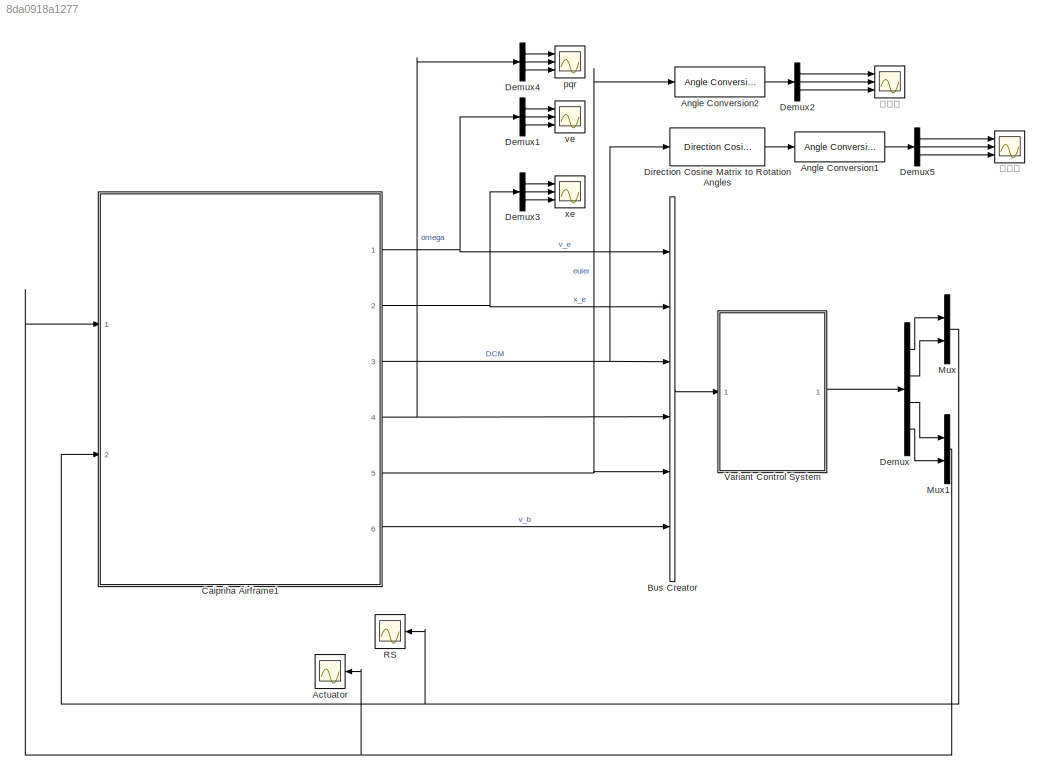
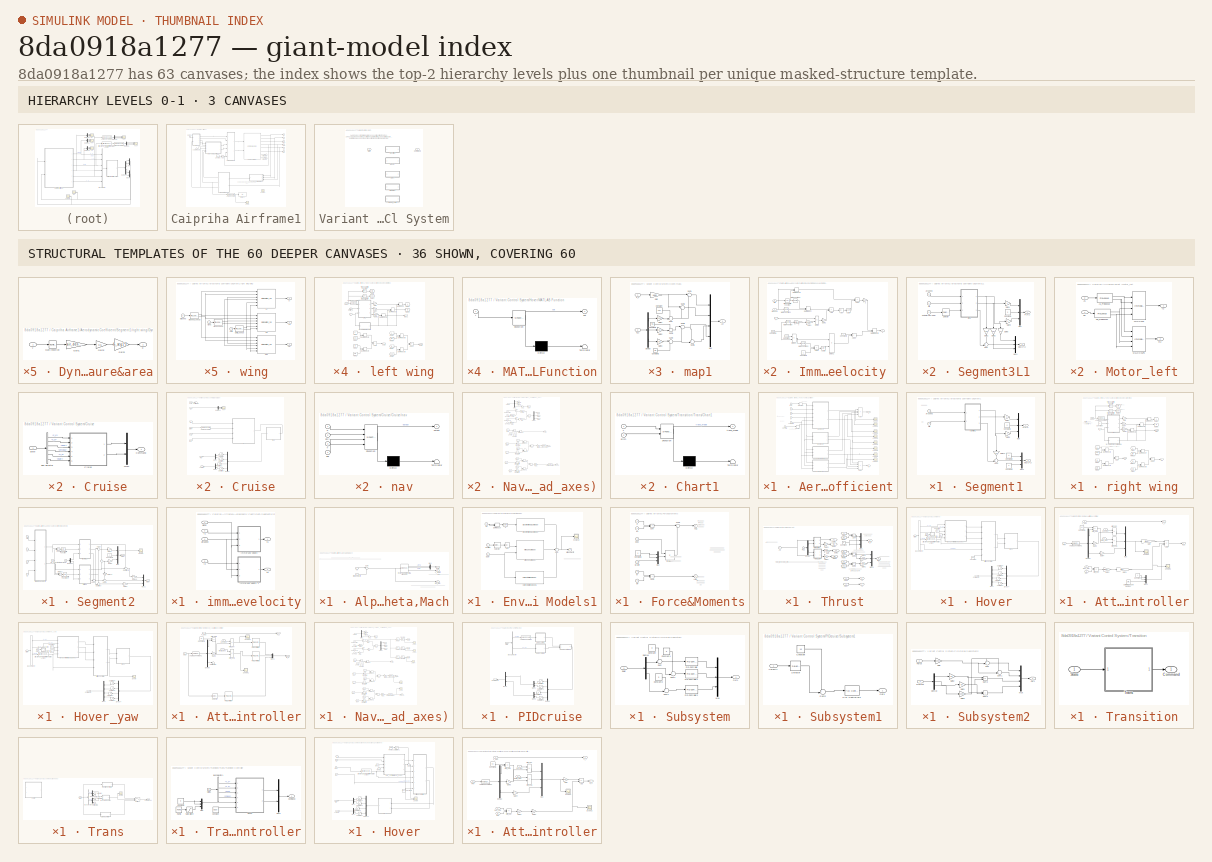
[diagram: thumbnail index - top-2 hierarchy levels (3 canvases) + 36 structural-template representatives of the remaining 60 canvases]
MODEL slx_8da0918a1277
KIND model
CONFIG AbsTol = auto
CONFIG EnableMultiTasking = off
CONFIG FixedStep = 0.002
CONFIG MaxStep = auto
CONFIG MinStep = auto
CONFIG PreLoadFcn = TBS_Cai_simu_init_20170316
CONFIG RelTol = 1e-3
CONFIG SampleTimeConstraint = Unconstrained
CONFIG SolverName = ode5
CONFIG StartTime = 15
CONFIG StopFcn = TBS_SIMULATION_LOG
CONFIG StopTime = 100
BLOCK [Scope] Actuator
  Floating = off
  NumInputPorts = 1
  Ports = [1]
  ScopeSpecificationString = Simulink.scopes.TimeScopeBlockCfg('CurrentConfiguration', extmgr.ConfigurationSet(extmgr.Configuration('Core','General UI',true),extmgr.Configuration('Core','Source UI',true),extmgr.Configuration('Sources','WiredSimulink',true,'DataLoggingVariableName','LOG_ACTUATOR_RL','DataLogging',true,'DataLoggingSaveFormat','StructureWithTime'),extmgr.Configuration('Visuals','Time Domain',true,'SerializedDisp...<+1580ch>
BLOCK [Reference] Angle Conversion1  REF=aerolibconvert2/Angle Conversion
  Ports = [1, 1]
  SourceBlock = aerolibconvert2/Angle Conversion
  SourceProductBaseCode = AE
  SourceType = Angle Conversion
BLOCK [Reference] Angle Conversion2  REF=aerolibconvert2/Angle Conversion
  Ports = [1, 1]
  SourceBlock = aerolibconvert2/Angle Conversion
  SourceProductBaseCode = AE
  SourceType = Angle Conversion
BLOCK [BusCreator] Bus Creator
  DisplayOption = bar
  InheritFromInputs = on
  Inputs = 6
  Ports = [6, 1]
BLOCK [SubSystem] Caipriha Airframe1
  Ports = [2, 6]
  RequestExecContextInheritance = off
BLOCK [Reference] Caipriha Airframe1/6DOF (Quaternion)  REF=shared6dof/6DOF (Euler Angles)
  Ports = [2, 8]
  SourceBlock = shared6dof/6DOF (Euler Angles)
  SourceProductBaseCode = AE,PW,DR,MT,UV,VE
  SourceType = 6DOF EoM (Body Axis)
BLOCK [Inport] Caipriha Airframe1/Actuators (deg)RL
BLOCK [SubSystem] Caipriha Airframe1/Aerodynamic Coefficient
  NameLocation = top
  Ports = [6, 2]
  RequestExecContextInheritance = off
BLOCK [Inport] Caipriha Airframe1/Aerodynamic Coefficient/Actuators
  Port = 3
BLOCK [Sum] Caipriha Airframe1/Aerodynamic Coefficient/Add
  IconShape = rectangular
  Inputs = ++++
  Ports = [4, 1]
BLOCK [Sum] Caipriha Airframe1/Aerodynamic Coefficient/Add1
  IconShape = rectangular
  Inputs = ++++
  Ports = [4, 1]
BLOCK [Outport] Caipriha Airframe1/Aerodynamic Coefficient/F
BLOCK [Inport] Caipriha Airframe1/Aerodynamic Coefficient/Incid
  Port = 5
BLOCK [Outport] Caipriha Airframe1/Aerodynamic Coefficient/M
  Port = 2
BLOCK [Scope] Caipriha Airframe1/Aerodynamic Coefficient/Scope
  Floating = off
  NumInputPorts = 1
  Ports = [1]
  ScopeSpecificationString = Simulink.scopes.TimeScopeBlockCfg('CurrentConfiguration', extmgr.ConfigurationSet(extmgr.Configuration('Core','General UI',true),extmgr.Configuration('Core','Source UI',true),extmgr.Configuration('Sources','WiredSimulink',true,'DataLoggingVariableName','ScopeData1'),extmgr.Configuration('Visuals','Time Domain',true,'SerializedDisplays',{struct('MinYLimReal','-1.16913','MaxYLimReal','0.1299','YLabe...<+1399ch>
BLOCK [Scope] Caipriha Airframe1/Aerodynamic Coefficient/Scope1
  Floating = off
  NumInputPorts = 1
  Ports = [1]
  ScopeSpecificationString = Simulink.scopes.TimeScopeBlockCfg('CurrentConfiguration', extmgr.ConfigurationSet(extmgr.Configuration('Core','General UI',true),extmgr.Configuration('Core','Source UI',true),extmgr.Configuration('Sources','WiredSimulink',true,'DataLoggingVariableName','ScopeData2'),extmgr.Configuration('Visuals','Time Domain',true,'SerializedDisplays',{struct('MinYLimReal','-0.19602','MaxYLimReal','0.16519','YLab...<+1401ch>
BLOCK [Scope] Caipriha Airframe1/Aerodynamic Coefficient/Scope2
  Floating = off
  NumInputPorts = 1
  Ports = [1]
  ScopeSpecificationString = Simulink.scopes.TimeScopeBlockCfg('CurrentConfiguration', extmgr.ConfigurationSet(extmgr.Configuration('Core','General UI',true),extmgr.Configuration('Core','Source UI',true),extmgr.Configuration('Sources','WiredSimulink',true,'DataLoggingVariableName','ScopeData3'),extmgr.Configuration('Visuals','Time Domain',true,'SerializedDisplays',{struct('MinYLimReal','-0.00659','MaxYLimReal','0.00073','YLab...<+1404ch>
BLOCK [Scope] Caipriha Airframe1/Aerodynamic Coefficient/Scope3
  Floating = off
  NumInputPorts = 1
  Ports = [1]
  ScopeSpecificationString = Simulink.scopes.TimeScopeBlockCfg('CurrentConfiguration', extmgr.ConfigurationSet(extmgr.Configuration('Core','General UI',true),extmgr.Configuration('Core','Source UI',true),extmgr.Configuration('Sources','WiredSimulink',true,'DataLoggingVariableName','ScopeData4'),extmgr.Configuration('Visuals','Time Domain',true,'SerializedDisplays',{struct('MinYLimReal','-0.00659','MaxYLimReal','0.00073','YLab...<+1407ch>
BLOCK [Scope] Caipriha Airframe1/Aerodynamic Coefficient/Scope4
  Floating = off
  NumInputPorts = 1
  Ports = [1]
  ScopeSpecificationString = Simulink.scopes.TimeScopeBlockCfg('CurrentConfiguration', extmgr.ConfigurationSet(extmgr.Configuration('Core','General UI',true),extmgr.Configuration('Core','Source UI',true),extmgr.Configuration('Sources','WiredSimulink',true,'DataLoggingVariableName','ScopeData5'),extmgr.Configuration('Visuals','Time Domain',true,'SerializedDisplays',{struct('MinYLimReal','-0.81466','MaxYLimReal','1.23466','YLab...<+1401ch>
BLOCK [Scope] Caipriha Airframe1/Aerodynamic Coefficient/Scope5
  Floating = off
  NumInputPorts = 1
  Ports = [1]
  ScopeSpecificationString = Simulink.scopes.TimeScopeBlockCfg('CurrentConfiguration', extmgr.ConfigurationSet(extmgr.Configuration('Core','General UI',true),extmgr.Configuration('Core','Source UI',true),extmgr.Configuration('Sources','WiredSimulink',true,'DataLoggingVariableName','ScopeData6'),extmgr.Configuration('Visuals','Time Domain',true,'SerializedDisplays',{struct('MinYLimReal','-0.0747','MaxYLimReal','0.07291','YLabe...<+1397ch>
BLOCK [Scope] Caipriha Airframe1/Aerodynamic Coefficient/Scope6
  Floating = off
  NumInputPorts = 1
  Ports = [1]
  ScopeSpecificationString = Simulink.scopes.TimeScopeBlockCfg('CurrentConfiguration', extmgr.ConfigurationSet(extmgr.Configuration('Core','General UI',true),extmgr.Configuration('Core','Source UI',true),extmgr.Configuration('Sources','WiredSimulink',true,'DataLoggingVariableName','ScopeData7'),extmgr.Configuration('Visuals','Time Domain',true,'SerializedDisplays',{struct('MinYLimReal','-1.37266','MaxYLimReal','0.5368','YLabe...<+1402ch>
BLOCK [Scope] Caipriha Airframe1/Aerodynamic Coefficient/Scope7
  Floating = off
  NumInputPorts = 1
  Ports = [1]
  ScopeSpecificationString = Simulink.scopes.TimeScopeBlockCfg('CurrentConfiguration', extmgr.ConfigurationSet(extmgr.Configuration('Core','General UI',true),extmgr.Configuration('Core','Source UI',true),extmgr.Configuration('Sources','WiredSimulink',true,'DataLoggingVariableName','ScopeData8'),extmgr.Configuration('Visuals','Time Domain',true,'SerializedDisplays',{struct('MinYLimReal','-0.83641','MaxYLimReal','1.68084','YLab...<+1407ch>
BLOCK [SubSystem] Caipriha Airframe1/Aerodynamic Coefficient/Segment1
  Ports = [2, 2]
  RequestExecContextInheritance = off
BLOCK [Sum] Caipriha Airframe1/Aerodynamic Coefficient/Segment1/Add5
  Inputs = ++|
  Ports = [2, 1]
BLOCK [Inport] Caipriha Airframe1/Aerodynamic Coefficient/Segment1/Airspeed
  Port = 2
BLOCK [Constant] Caipriha Airframe1/Aerodynamic Coefficient/Segment1/Constant1
  Value = 0
BLOCK [Constant] Caipriha Airframe1/Aerodynamic Coefficient/Segment1/Constant2
  Value = 0
BLOCK [Constant] Caipriha Airframe1/Aerodynamic Coefficient/Segment1/Constant3
  Value = 0
BLOCK [Outport] Caipriha Airframe1/Aerodynamic Coefficient/Segment1/F(3*1)
BLOCK [Gain] Caipriha Airframe1/Aerodynamic Coefficient/Segment1/Gain11
  Gain = L1X
  NameLocation = left
BLOCK [Gain] Caipriha Airframe1/Aerodynamic Coefficient/Segment1/Gain3
  Gain = -1
BLOCK [Gain] Caipriha Airframe1/Aerodynamic Coefficient/Segment1/Gain4
  Gain = -1
BLOCK [Outport] Caipriha Airframe1/Aerodynamic Coefficient/Segment1/Mcg(3*1)
  Port = 2
BLOCK [Mux] Caipriha Airframe1/Aerodynamic Coefficient/Segment1/Mux
  DisplayOption = bar
  Inputs = 3
  Ports = [3, 1]
BLOCK [Mux] Caipriha Airframe1/Aerodynamic Coefficient/Segment1/Mux1
  DisplayOption = bar
  Inputs = 3
  Ports = [3, 1]
BLOCK [Inport] Caipriha Airframe1/Aerodynamic Coefficient/Segment1/alfa
BLOCK [SubSystem] Caipriha Airframe1/Aerodynamic Coefficient/Segment1/right wing
  Ports = [2, 3]
  RequestExecContextInheritance = off
BLOCK [Inport] Caipriha Airframe1/Aerodynamic Coefficient/Segment1/right wing/ALFA 
  Port = 2
BLOCK [Sum] Caipriha Airframe1/Aerodynamic Coefficient/Segment1/right wing/Add
  IconShape = rectangular
  Ports = [2, 1]
BLOCK [Sum] Caipriha Airframe1/Aerodynamic Coefficient/Segment1/right wing/Add2
  IconShape = rectangular
  Inputs = -+
  Ports = [2, 1]
BLOCK [Reference] Caipriha Airframe1/Aerodynamic Coefficient/Segment1/right wing/Angle Conversion  REF=aerolibconvert2/Angle Conversion
  Ports = [1, 1]
  SourceBlock = aerolibconvert2/Angle Conversion
  SourceProductBaseCode = AE
  SourceType = Angle Conversion
BLOCK [Constant] Caipriha Airframe1/Aerodynamic Coefficient/Segment1/right wing/Constant
  Value = 0
BLOCK [DotProduct] Caipriha Airframe1/Aerodynamic Coefficient/Segment1/right wing/Dot Product
  OutDataTypeStr = Inherit: Inherit via internal rule
BLOCK [DotProduct] Caipriha Airframe1/Aerodynamic Coefficient/Segment1/right wing/Dot Product1
  OutDataTypeStr = Inherit: Inherit via internal rule
BLOCK [DotProduct] Caipriha Airframe1/Aerodynamic Coefficient/Segment1/right wing/Dot Product2
  OutDataTypeStr = Inherit: Inherit via internal rule
BLOCK [DotProduct] Caipriha Airframe1/Aerodynamic Coefficient/Segment1/right wing/Dot Product3
  OutDataTypeStr = Inherit: Inherit via internal rule
BLOCK [DotProduct] Caipriha Airframe1/Aerodynamic Coefficient/Segment1/right wing/Dot Product4
  OutDataTypeStr = Inherit: Inherit via internal rule
BLOCK [DotProduct] Caipriha Airframe1/Aerodynamic Coefficient/Segment1/right wing/Dot Product7
  OutDataTypeStr = Inherit: Inherit via internal rule
BLOCK [DotProduct] Caipriha Airframe1/Aerodynamic Coefficient/Segment1/right wing/Dot Product8
  OutDataTypeStr = Inherit: Inherit via internal rule
BLOCK [SubSystem] Caipriha Airframe1/Aerodynamic Coefficient/Segment1/right wing/DynamicPressure&area
  Ports = [1, 1]
  RequestExecContextInheritance = off
BLOCK [Gain] Caipriha Airframe1/Aerodynamic Coefficient/Segment1/right wing/DynamicPressure&area/Gain1
  Gain = air_density
BLOCK [Gain] Caipriha Airframe1/Aerodynamic Coefficient/Segment1/right wing/DynamicPressure&area/Gain2
  Gain = 0.5
BLOCK [Gain] Caipriha Airframe1/Aerodynamic Coefficient/Segment1/right wing/DynamicPressure&area/Gain3
  Gain = S_seg1*2
BLOCK [Math] Caipriha Airframe1/Aerodynamic Coefficient/Segment1/right wing/DynamicPressure&area/Math Function
  Operator = magnitude^2
  Ports = [1, 1]
  SignedPower = on
BLOCK [Outport] Caipriha Airframe1/Aerodynamic Coefficient/Segment1/right wing/DynamicPressure&area/p
BLOCK [Inport] Caipriha Airframe1/Aerodynamic Coefficient/Segment1/right wing/DynamicPressure&area/v
BLOCK [From] Caipriha Airframe1/Aerodynamic Coefficient/Segment1/right wing/From
  GotoTag = L
BLOCK [From] Caipriha Airframe1/Aerodynamic Coefficient/Segment1/right wing/From1
  GotoTag = sin
BLOCK [From] Caipriha Airframe1/Aerodynamic Coefficient/Segment1/right wing/From10
  GotoTag = sin
BLOCK [From] Caipriha Airframe1/Aerodynamic Coefficient/Segment1/right wing/From11
  GotoTag = D
BLOCK [From] Caipriha Airframe1/Aerodynamic Coefficient/Segment1/right wing/From2
  GotoTag = cos
BLOCK [From] Caipriha Airframe1/Aerodynamic Coefficient/Segment1/right wing/From3
  GotoTag = D
BLOCK [From] Caipriha Airframe1/Aerodynamic Coefficient/Segment1/right wing/From8
  GotoTag = L
BLOCK [From] Caipriha Airframe1/Aerodynamic Coefficient/Segment1/right wing/From9
  GotoTag = cos
BLOCK [Outport] Caipriha Airframe1/Aerodynamic Coefficient/Segment1/right wing/Fx
  Port = 2
BLOCK [Outport] Caipriha Airframe1/Aerodynamic Coefficient/Segment1/right wing/Fz
BLOCK [Gain] Caipriha Airframe1/Aerodynamic Coefficient/Segment1/right wing/Gain
BLOCK [Gain] Caipriha Airframe1/Aerodynamic Coefficient/Segment1/right wing/Gain1
  Gain = MAC1
BLOCK [Gain] Caipriha Airframe1/Aerodynamic Coefficient/Segment1/right wing/Gain4
BLOCK [Goto] Caipriha Airframe1/Aerodynamic Coefficient/Segment1/right wing/Goto
  GotoTag = sin
BLOCK [Goto] Caipriha Airframe1/Aerodynamic Coefficient/Segment1/right wing/Goto1
  GotoTag = cos
BLOCK [Goto] Caipriha Airframe1/Aerodynamic Coefficient/Segment1/right wing/Goto4
  GotoTag = L
BLOCK [Goto] Caipriha Airframe1/Aerodynamic Coefficient/Segment1/right wing/Goto5
  GotoTag = D
BLOCK [Outport] Caipriha Airframe1/Aerodynamic Coefficient/Segment1/right wing/Mac
  Port = 3
BLOCK [Trigonometry] Caipriha Airframe1/Aerodynamic Coefficient/Segment1/right wing/Trigonometric Function
  Ports = [1, 1]
BLOCK [Trigonometry] Caipriha Airframe1/Aerodynamic Coefficient/Segment1/right wing/Trigonometric Function1
  Operator = cos
  Ports = [1, 1]
BLOCK [Inport] Caipriha Airframe1/Aerodynamic Coefficient/Segment1/right wing/v
BLOCK [SubSystem] Caipriha Airframe1/Aerodynamic Coefficient/Segment1/right wing/wing
  Ports = [3, 3]
  RequestExecContextInheritance = off
BLOCK [PreLookup] Caipriha Airframe1/Aerodynamic Coefficient/Segment1/right wing/wing/AirspeedLookup
  BeginIndexSearchUsingPreviousIndexResult = on
  BreakpointsData = as
  ExtrapMethod = Linear
  InputPortMap = u0
  Ports = [1, 2]
BLOCK [Inport] Caipriha Airframe1/Aerodynamic Coefficient/Segment1/right wing/wing/Alpha
BLOCK [PreLookup] Caipriha Airframe1/Aerodynamic Coefficient/Segment1/right wing/wing/AlphaLookup
  BeginIndexSearchUsingPreviousIndexResult = on
  BreakpointsData = alpha_vec_0
  ExtrapMethod = Linear
  InputPortMap = u0
  Ports = [1, 2]
BLOCK [Interpolation_n-D] Caipriha Airframe1/Aerodynamic Coefficient/Segment1/right wing/wing/CD
  DiagnosticForOutOfRangeInput = Warning
  ExtrapMethod = Clip
  InputPortMap = u0,u1,u2,u3,u4,u5
  IntermediateResultsDataTypeStr = Inherit: Inherit via internal rule
  InternalRulePriority = Speed
  NumberOfTableDimensions = 3
  Ports = [6, 1]
  Table = ORIGIN_CD
BLOCK [Interpolation_n-D] Caipriha Airframe1/Aerodynamic Coefficient/Segment1/right wing/wing/CD1
  DiagnosticForOutOfRangeInput = Warning
  ExtrapMethod = Clip
  InputPortMap = u0,u1,u2,u3,u4,u5
  IntermediateResultsDataTypeStr = Inherit: Inherit via internal rule
  InternalRulePriority = Speed
  NumberOfTableDimensions = 3
  Ports = [6, 1]
  Table = ORIGIN_CM
BLOCK [Interpolation_n-D] Caipriha Airframe1/Aerodynamic Coefficient/Segment1/right wing/wing/CL
  DiagnosticForOutOfRangeInput = Warning
  ExtrapMethod = Clip
  InputPortMap = u0,u1,u2,u3,u4,u5
  IntermediateResultsDataTypeStr = Inherit: Inherit via internal rule
  InternalRulePriority = Speed
  NumberOfTableDimensions = 3
  Ports = [6, 1]
  Table = ORIGIN_CL
BLOCK [Inport] Caipriha Airframe1/Aerodynamic Coefficient/Segment1/right wing/wing/Delta
  Port = 2
BLOCK [PreLookup] Caipriha Airframe1/Aerodynamic Coefficient/Segment1/right wing/wing/DeltaLookup
  BeginIndexSearchUsingPreviousIndexResult = on
  BreakpointsData = ORIGIN_DELTA
  ExtrapMethod = Linear
  InputPortMap = u0
  Ports = [1, 2]
BLOCK [Inport] Caipriha Airframe1/Aerodynamic Coefficient/Segment1/right wing/wing/airspeed
  Port = 3
BLOCK [Outport] Caipriha Airframe1/Aerodynamic Coefficient/Segment1/right wing/wing/cd
  Port = 2
BLOCK [Outport] Caipriha Airframe1/Aerodynamic Coefficient/Segment1/right wing/wing/cl
BLOCK [Outport] Caipriha Airframe1/Aerodynamic Coefficient/Segment1/right wing/wing/cm
  Port = 3
BLOCK [SubSystem] Caipriha Airframe1/Aerodynamic Coefficient/Segment2
  Ports = [6, 2]
  RequestExecContextInheritance = off
BLOCK [Sum] Caipriha Airframe1/Aerodynamic Coefficient/Segment2/Add1
  Inputs = ++|
  Ports = [2, 1]
BLOCK [Sum] Caipriha Airframe1/Aerodynamic Coefficient/Segment2/Add3
  Inputs = |++
  Ports = [2, 1]
BLOCK [Sum] Caipriha Airframe1/Aerodynamic Coefficient/Segment2/Add5
  Inputs = ++|
  Ports = [2, 1]
BLOCK [Constant] Caipriha Airframe1/Aerodynamic Coefficient/Segment2/Constant1
  Value = 0
BLOCK [Demux] Caipriha Airframe1/Aerodynamic Coefficient/Segment2/Demux1
  Outputs = 2
  Ports = [1, 2]
BLOCK [Product] Caipriha Airframe1/Aerodynamic Coefficient/Segment2/Divide
  Inputs = /*
  Ports = [2, 1]
BLOCK [Product] Caipriha Airframe1/Aerodynamic Coefficient/Segment2/Divide1
  Inputs = /*
  Ports = [2, 1]
BLOCK [Outport] Caipriha Airframe1/Aerodynamic Coefficient/Segment2/F(3*1)
BLOCK [Gain] Caipriha Airframe1/Aerodynamic Coefficient/Segment2/Gain11
  Gain = L2X
  NameLocation = left
BLOCK [Gain] Caipriha Airframe1/Aerodynamic Coefficient/Segment2/Gain16
  Gain = L2Y
BLOCK [Gain] Caipriha Airframe1/Aerodynamic Coefficient/Segment2/Gain3
  Gain = -1
BLOCK [Gain] Caipriha Airframe1/Aerodynamic Coefficient/Segment2/Gain4
  Gain = -1
BLOCK [Gain] Caipriha Airframe1/Aerodynamic Coefficient/Segment2/Gain9
  Gain = L2Y
BLOCK [Sum] Caipriha Airframe1/Aerodynamic Coefficient/Segment2/L
  Ports = [2, 1]
BLOCK [Outport] Caipriha Airframe1/Aerodynamic Coefficient/Segment2/M(3*1)
  Port = 2
BLOCK [Mux] Caipriha Airframe1/Aerodynamic Coefficient/Segment2/Mux
  DisplayOption = bar
  Inputs = 3
  Ports = [3, 1]
BLOCK [Mux] Caipriha Airframe1/Aerodynamic Coefficient/Segment2/Mux1
  DisplayOption = bar
  Inputs = 3
  Ports = [3, 1]
BLOCK [Scope] Caipriha Airframe1/Aerodynamic Coefficient/Segment2/Scope
  Floating = off
  NumInputPorts = 1
  Ports = [1]
  ScopeSpecificationString = Simulink.scopes.TimeScopeBlockCfg('CurrentConfiguration', extmgr.ConfigurationSet(extmgr.Configuration('Core','General UI',true),extmgr.Configuration('Core','Source UI',true),extmgr.Configuration('Sources','WiredSimulink',true,'DataLoggingVariableName','ScopeData1'),extmgr.Configuration('Visuals','Time Domain',true,'SerializedDisplays',{struct('MinYLimReal','-6.7547','MaxYLimReal','8.02397','YLabe...<+1380ch>
BLOCK [Sum] Caipriha Airframe1/Aerodynamic Coefficient/Segment2/Subtract
  Inputs = +-|
  Ports = [2, 1]
BLOCK [Sum] Caipriha Airframe1/Aerodynamic Coefficient/Segment2/Subtract1
  Inputs = -+|
  Ports = [2, 1]
BLOCK [Inport] Caipriha Airframe1/Aerodynamic Coefficient/Segment2/T1 
  Port = 2
BLOCK [Inport] Caipriha Airframe1/Aerodynamic Coefficient/Segment2/T2
  Port = 3
BLOCK [Trigonometry] Caipriha Airframe1/Aerodynamic Coefficient/Segment2/Trigonometric Function
  Operator = atan
  OutputSignalType = real
  Ports = [1, 1]
BLOCK [Trigonometry] Caipriha Airframe1/Aerodynamic Coefficient/Segment2/Trigonometric Function1
  Operator = atan
  Ports = [1, 1]
BLOCK [Inport] Caipriha Airframe1/Aerodynamic Coefficient/Segment2/V
  Port = 4
BLOCK [Inport] Caipriha Airframe1/Aerodynamic Coefficient/Segment2/Vb_z
  Port = 6
BLOCK [Inport] Caipriha Airframe1/Aerodynamic Coefficient/Segment2/actuatorsRL(deg) 
  Port = 5
BLOCK [Inport] Caipriha Airframe1/Aerodynamic Coefficient/Segment2/alfa
BLOCK [SubSystem] Caipriha Airframe1/Aerodynamic Coefficient/Segment2/immersed velocity
  Ports = [4, 2]
  RequestExecContextInheritance = off
BLOCK [SubSystem] Caipriha Airframe1/Aerodynamic Coefficient/Segment2/immersed velocity/Immersed velocity 
  Ports = [3, 1]
  RequestExecContextInheritance = off
BLOCK [Gain] Caipriha Airframe1/Aerodynamic Coefficient/Segment2/immersed velocity/Immersed velocity /A
  Gain = 0.5*pi
BLOCK [Abs] Caipriha Airframe1/Aerodynamic Coefficient/Segment2/immersed velocity/Immersed velocity /Abs
  SaturateOnIntegerOverflow = off
BLOCK [Sum] Caipriha Airframe1/Aerodynamic Coefficient/Segment2/immersed velocity/Immersed velocity /Add
  IconShape = rectangular
  Ports = [2, 1]
BLOCK [Sum] Caipriha Airframe1/Aerodynamic Coefficient/Segment2/immersed velocity/Immersed velocity /Add1
  IconShape = rectangular
  Ports = [2, 1]
BLOCK [Sum] Caipriha Airframe1/Aerodynamic Coefficient/Segment2/immersed velocity/Immersed velocity /Add2
  IconShape = rectangular
  Ports = [2, 1]
BLOCK [Sum] Caipriha Airframe1/Aerodynamic Coefficient/Segment2/immersed velocity/Immersed velocity /Add3
  IconShape = rectangular
  Ports = [2, 1]
BLOCK [Constant] Caipriha Airframe1/Aerodynamic Coefficient/Segment2/immersed velocity/Immersed velocity /Constant
  Value = 0.166
BLOCK [Constant] Caipriha Airframe1/Aerodynamic Coefficient/Segment2/immersed velocity/Immersed velocity /Constant1
  Value = 0.2
BLOCK [Constant] Caipriha Airframe1/Aerodynamic Coefficient/Segment2/immersed velocity/Immersed velocity /Constant2
BLOCK [Constant] Caipriha Airframe1/Aerodynamic Coefficient/Segment2/immersed velocity/Immersed velocity /Constant3
BLOCK [Product] Caipriha Airframe1/Aerodynamic Coefficient/Segment2/immersed velocity/Immersed velocity /Divide
  Inputs = */
  Ports = [2, 1]
BLOCK [Product] Caipriha Airframe1/Aerodynamic Coefficient/Segment2/immersed velocity/Immersed velocity /Divide1
  Inputs = */
  Ports = [2, 1]
BLOCK [Product] Caipriha Airframe1/Aerodynamic Coefficient/Segment2/immersed velocity/Immersed velocity /Divide2
  Inputs = */
  Ports = [2, 1]
BLOCK [DotProduct] Caipriha Airframe1/Aerodynamic Coefficient/Segment2/immersed velocity/Immersed velocity /Dot Product
  OutDataTypeStr = Inherit: Inherit via internal rule
BLOCK [DotProduct] Caipriha Airframe1/Aerodynamic Coefficient/Segment2/immersed velocity/Immersed velocity /Dot Product1
  OutDataTypeStr = Inherit: Inherit via internal rule
BLOCK [DotProduct] Caipriha Airframe1/Aerodynamic Coefficient/Segment2/immersed velocity/Immersed velocity /Dot Product2
  OutDataTypeStr = Inherit: Inherit via internal rule
BLOCK [Gain] Caipriha Airframe1/Aerodynamic Coefficient/Segment2/immersed velocity/Immersed velocity /Gain1
  Gain = 1.225
BLOCK [Gain] Caipriha Airframe1/Aerodynamic Coefficient/Segment2/immersed velocity/Immersed velocity /Gain2
  Gain = 2
BLOCK [Math] Caipriha Airframe1/Aerodynamic Coefficient/Segment2/immersed velocity/Immersed velocity /Math Function
  Operator = magnitude^2
  Ports = [1, 1]
  SignedPower = on
BLOCK [Math] Caipriha Airframe1/Aerodynamic Coefficient/Segment2/immersed velocity/Immersed velocity /Math Function1
  Operator = magnitude^2
  Ports = [1, 1]
  SignedPower = on
BLOCK [Math] Caipriha Airframe1/Aerodynamic Coefficient/Segment2/immersed velocity/Immersed velocity /Math Function2
  Operator = magnitude^2
  Ports = [1, 1]
  SignedPower = on
BLOCK [Math] Caipriha Airframe1/Aerodynamic Coefficient/Segment2/immersed velocity/Immersed velocity /Math Function3
  Operator = magnitude^2
  Ports = [1, 1]
  SignedPower = on
BLOCK [Inport] Caipriha Airframe1/Aerodynamic Coefficient/Segment2/immersed velocity/Immersed velocity /T
BLOCK [Trigonometry] Caipriha Airframe1/Aerodynamic Coefficient/Segment2/immersed velocity/Immersed velocity /Trigonometric Function
  Operator = cos
  Ports = [1, 1]
BLOCK [Inport] Caipriha Airframe1/Aerodynamic Coefficient/Segment2/immersed velocity/Immersed velocity /airspeed
  Port = 2
BLOCK [Inport] Caipriha Airframe1/Aerodynamic Coefficient/Segment2/immersed velocity/Immersed velocity /alfa
  Port = 3
BLOCK [Gain] Caipriha Airframe1/Aerodynamic Coefficient/Segment2/immersed velocity/Immersed velocity /u
  Gain = 0.5
BLOCK [Sqrt] Caipriha Airframe1/Aerodynamic Coefficient/Segment2/immersed velocity/Immersed velocity /u_far
BLOCK [Sqrt] Caipriha Airframe1/Aerodynamic Coefficient/Segment2/immersed velocity/Immersed velocity /u_far1
BLOCK [Outport] Caipriha Airframe1/Aerodynamic Coefficient/Segment2/immersed velocity/Immersed velocity /v
BLOCK [SubSystem] Caipriha Airframe1/Aerodynamic Coefficient/Segment2/immersed velocity/Immersed velocity 1
  Ports = [3, 1]
  RequestExecContextInheritance = off
BLOCK [Gain] Caipriha Airframe1/Aerodynamic Coefficient/Segment2/immersed velocity/Immersed velocity 1/A
  Gain = 0.5*pi
BLOCK [Abs] Caipriha Airframe1/Aerodynamic Coefficient/Segment2/immersed velocity/Immersed velocity 1/Abs
  SaturateOnIntegerOverflow = off
BLOCK [Sum] Caipriha Airframe1/Aerodynamic Coefficient/Segment2/immersed velocity/Immersed velocity 1/Add
  IconShape = rectangular
  Ports = [2, 1]
BLOCK [Sum] Caipriha Airframe1/Aerodynamic Coefficient/Segment2/immersed velocity/Immersed velocity 1/Add1
  IconShape = rectangular
  Ports = [2, 1]
BLOCK [Sum] Caipriha Airframe1/Aerodynamic Coefficient/Segment2/immersed velocity/Immersed velocity 1/Add2
  IconShape = rectangular
  Ports = [2, 1]
BLOCK [Sum] Caipriha Airframe1/Aerodynamic Coefficient/Segment2/immersed velocity/Immersed velocity 1/Add3
  IconShape = rectangular
  Ports = [2, 1]
BLOCK [Constant] Caipriha Airframe1/Aerodynamic Coefficient/Segment2/immersed velocity/Immersed velocity 1/Constant
  Value = 0.166
BLOCK [Constant] Caipriha Airframe1/Aerodynamic Coefficient/Segment2/immersed velocity/Immersed velocity 1/Constant1
  Value = 0.2
BLOCK [Constant] Caipriha Airframe1/Aerodynamic Coefficient/Segment2/immersed velocity/Immersed velocity 1/Constant2
BLOCK [Constant] Caipriha Airframe1/Aerodynamic Coefficient/Segment2/immersed velocity/Immersed velocity 1/Constant3
BLOCK [Product] Caipriha Airframe1/Aerodynamic Coefficient/Segment2/immersed velocity/Immersed velocity 1/Divide
  Inputs = */
  Ports = [2, 1]
BLOCK [Product] Caipriha Airframe1/Aerodynamic Coefficient/Segment2/immersed velocity/Immersed velocity 1/Divide1
  Inputs = */
  Ports = [2, 1]
BLOCK [Product] Caipriha Airframe1/Aerodynamic Coefficient/Segment2/immersed velocity/Immersed velocity 1/Divide2
  Inputs = */
  Ports = [2, 1]
BLOCK [DotProduct] Caipriha Airframe1/Aerodynamic Coefficient/Segment2/immersed velocity/Immersed velocity 1/Dot Product
  OutDataTypeStr = Inherit: Inherit via internal rule
BLOCK [DotProduct] Caipriha Airframe1/Aerodynamic Coefficient/Segment2/immersed velocity/Immersed velocity 1/Dot Product1
  OutDataTypeStr = Inherit: Inherit via internal rule
BLOCK [DotProduct] Caipriha Airframe1/Aerodynamic Coefficient/Segment2/immersed velocity/Immersed velocity 1/Dot Product2
  OutDataTypeStr = Inherit: Inherit via internal rule
BLOCK [Gain] Caipriha Airframe1/Aerodynamic Coefficient/Segment2/immersed velocity/Immersed velocity 1/Gain1
  Gain = 1.225
BLOCK [Gain] Caipriha Airframe1/Aerodynamic Coefficient/Segment2/immersed velocity/Immersed velocity 1/Gain2
  Gain = 2
BLOCK [Math] Caipriha Airframe1/Aerodynamic Coefficient/Segment2/immersed velocity/Immersed velocity 1/Math Function
  Operator = magnitude^2
  Ports = [1, 1]
  SignedPower = on
BLOCK [Math] Caipriha Airframe1/Aerodynamic Coefficient/Segment2/immersed velocity/Immersed velocity 1/Math Function1
  Operator = magnitude^2
  Ports = [1, 1]
  SignedPower = on
BLOCK [Math] Caipriha Airframe1/Aerodynamic Coefficient/Segment2/immersed velocity/Immersed velocity 1/Math Function2
  Operator = magnitude^2
  Ports = [1, 1]
  SignedPower = on
BLOCK [Math] Caipriha Airframe1/Aerodynamic Coefficient/Segment2/immersed velocity/Immersed velocity 1/Math Function3
  Operator = magnitude^2
  Ports = [1, 1]
  SignedPower = on
BLOCK [Inport] Caipriha Airframe1/Aerodynamic Coefficient/Segment2/immersed velocity/Immersed velocity 1/T
BLOCK [Trigonometry] Caipriha Airframe1/Aerodynamic Coefficient/Segment2/immersed velocity/Immersed velocity 1/Trigonometric Function
  Operator = cos
  Ports = [1, 1]
BLOCK [Inport] Caipriha Airframe1/Aerodynamic Coefficient/Segment2/immersed velocity/Immersed velocity 1/airspeed
  Port = 2
BLOCK [Inport] Caipriha Airframe1/Aerodynamic Coefficient/Segment2/immersed velocity/Immersed velocity 1/alfa
  Port = 3
BLOCK [Gain] Caipriha Airframe1/Aerodynamic Coefficient/Segment2/immersed velocity/Immersed velocity 1/u
  Gain = 0.5
BLOCK [Sqrt] Caipriha Airframe1/Aerodynamic Coefficient/Segment2/immersed velocity/Immersed velocity 1/u_far
BLOCK [Sqrt] Caipriha Airframe1/Aerodynamic Coefficient/Segment2/immersed velocity/Immersed velocity 1/u_far1
BLOCK [Outport] Caipriha Airframe1/Aerodynamic Coefficient/Segment2/immersed velocity/Immersed velocity 1/v
BLOCK [Inport] Caipriha Airframe1/Aerodynamic Coefficient/Segment2/immersed velocity/airspeed
  Port = 4
BLOCK [Inport] Caipriha Airframe1/Aerodynamic Coefficient/Segment2/immersed velocity/alpha
BLOCK [Inport] Caipriha Airframe1/Aerodynamic Coefficient/Segment2/immersed velocity/t1 
  Port = 2
BLOCK [Inport] Caipriha Airframe1/Aerodynamic Coefficient/Segment2/immersed velocity/t2
  Port = 3
BLOCK [Outport] Caipriha Airframe1/Aerodynamic Coefficient/Segment2/immersed velocity/v1
BLOCK [Outport] Caipriha Airframe1/Aerodynamic Coefficient/Segment2/immersed velocity/v2
  Port = 2
BLOCK [SubSystem] Caipriha Airframe1/Aerodynamic Coefficient/Segment2/left wing
  Ports = [3, 3]
  RequestExecContextInheritance = off
BLOCK [Inport] Caipriha Airframe1/Aerodynamic Coefficient/Segment2/left wing/ALFA 
  Port = 2
BLOCK [Sum] Caipriha Airframe1/Aerodynamic Coefficient/Segment2/left wing/Add
  IconShape = rectangular
  Ports = [2, 1]
BLOCK [Sum] Caipriha Airframe1/Aerodynamic Coefficient/Segment2/left wing/Add1
  IconShape = rectangular
  Inputs = -+
  Ports = [2, 1]
BLOCK [Reference] Caipriha Airframe1/Aerodynamic Coefficient/Segment2/left wing/Angle Conversion1  REF=aerolibconvert2/Angle Conversion
  Ports = [1, 1]
  SourceBlock = aerolibconvert2/Angle Conversion
  SourceProductBaseCode = AE
  SourceType = Angle Conversion
BLOCK [DotProduct] Caipriha Airframe1/Aerodynamic Coefficient/Segment2/left wing/Dot Product
  OutDataTypeStr = Inherit: Inherit via internal rule
BLOCK [DotProduct] Caipriha Airframe1/Aerodynamic Coefficient/Segment2/left wing/Dot Product1
  OutDataTypeStr = Inherit: Inherit via internal rule
BLOCK [DotProduct] Caipriha Airframe1/Aerodynamic Coefficient/Segment2/left wing/Dot Product2
  OutDataTypeStr = Inherit: Inherit via internal rule
BLOCK [DotProduct] Caipriha Airframe1/Aerodynamic Coefficient/Segment2/left wing/Dot Product3
  OutDataTypeStr = Inherit: Inherit via internal rule
BLOCK [DotProduct] Caipriha Airframe1/Aerodynamic Coefficient/Segment2/left wing/Dot Product4
  OutDataTypeStr = Inherit: Inherit via internal rule
BLOCK [DotProduct] Caipriha Airframe1/Aerodynamic Coefficient/Segment2/left wing/Dot Product5
  OutDataTypeStr = Inherit: Inherit via internal rule
BLOCK [DotProduct] Caipriha Airframe1/Aerodynamic Coefficient/Segment2/left wing/Dot Product6
  OutDataTypeStr = Inherit: Inherit via internal rule
BLOCK [SubSystem] Caipriha Airframe1/Aerodynamic Coefficient/Segment2/left wing/DynamicPressure
  Ports = [1, 1]
  RequestExecContextInheritance = off
BLOCK [Gain] Caipriha Airframe1/Aerodynamic Coefficient/Segment2/left wing/DynamicPressure/Gain1
  Gain = air_density
BLOCK [Gain] Caipriha Airframe1/Aerodynamic Coefficient/Segment2/left wing/DynamicPressure/Gain2
  Gain = 0.5
BLOCK [Gain] Caipriha Airframe1/Aerodynamic Coefficient/Segment2/left wing/DynamicPressure/Gain3
  Gain = S_seg2
BLOCK [Math] Caipriha Airframe1/Aerodynamic Coefficient/Segment2/left wing/DynamicPressure/Math Function
  Operator = magnitude^2
  Ports = [1, 1]
  SignedPower = on
BLOCK [Outport] Caipriha Airframe1/Aerodynamic Coefficient/Segment2/left wing/DynamicPressure/p
BLOCK [Inport] Caipriha Airframe1/Aerodynamic Coefficient/Segment2/left wing/DynamicPressure/v
BLOCK [From] Caipriha Airframe1/Aerodynamic Coefficient/Segment2/left wing/From
  GotoTag = L
BLOCK [From] Caipriha Airframe1/Aerodynamic Coefficient/Segment2/left wing/From1
  GotoTag = sin
BLOCK [From] Caipriha Airframe1/Aerodynamic Coefficient/Segment2/left wing/From2
  GotoTag = cos
BLOCK [From] Caipriha Airframe1/Aerodynamic Coefficient/Segment2/left wing/From3
  GotoTag = D
BLOCK [From] Caipriha Airframe1/Aerodynamic Coefficient/Segment2/left wing/From4
  GotoTag = L
BLOCK [From] Caipriha Airframe1/Aerodynamic Coefficient/Segment2/left wing/From5
  GotoTag = cos
BLOCK [From] Caipriha Airframe1/Aerodynamic Coefficient/Segment2/left wing/From6
  GotoTag = sin
BLOCK [From] Caipriha Airframe1/Aerodynamic Coefficient/Segment2/left wing/From7
  GotoTag = D
BLOCK [Outport] Caipriha Airframe1/Aerodynamic Coefficient/Segment2/left wing/FxR
  Port = 2
BLOCK [Outport] Caipriha Airframe1/Aerodynamic Coefficient/Segment2/left wing/FzR
BLOCK [Gain] Caipriha Airframe1/Aerodynamic Coefficient/Segment2/left wing/Gain
BLOCK [Gain] Caipriha Airframe1/Aerodynamic Coefficient/Segment2/left wing/Gain1
  Gain = MAC2
BLOCK [Gain] Caipriha Airframe1/Aerodynamic Coefficient/Segment2/left wing/Gain4
  Gain = 1.3
BLOCK [Goto] Caipriha Airframe1/Aerodynamic Coefficient/Segment2/left wing/Goto
  GotoTag = sin
BLOCK [Goto] Caipriha Airframe1/Aerodynamic Coefficient/Segment2/left wing/Goto1
  GotoTag = cos
BLOCK [Goto] Caipriha Airframe1/Aerodynamic Coefficient/Segment2/left wing/Goto2
  GotoTag = L
BLOCK [Goto] Caipriha Airframe1/Aerodynamic Coefficient/Segment2/left wing/Goto3
  GotoTag = D
BLOCK [Outport] Caipriha Airframe1/Aerodynamic Coefficient/Segment2/left wing/MacL
  Port = 3
BLOCK [Trigonometry] Caipriha Airframe1/Aerodynamic Coefficient/Segment2/left wing/Trigonometric Function
  Ports = [1, 1]
BLOCK [Trigonometry] Caipriha Airframe1/Aerodynamic Coefficient/Segment2/left wing/Trigonometric Function1
  Operator = cos
  Ports = [1, 1]
BLOCK [Inport] Caipriha Airframe1/Aerodynamic Coefficient/Segment2/left wing/delta_L
  Port = 3
BLOCK [Inport] Caipriha Airframe1/Aerodynamic Coefficient/Segment2/left wing/v
BLOCK [SubSystem] Caipriha Airframe1/Aerodynamic Coefficient/Segment2/left wing/wing
  Ports = [3, 3]
  RequestExecContextInheritance = off
BLOCK [PreLookup] Caipriha Airframe1/Aerodynamic Coefficient/Segment2/left wing/wing/AirspeedLookup
  BeginIndexSearchUsingPreviousIndexResult = on
  BreakpointsData = as
  ExtrapMethod = Linear
  InputPortMap = u0
  Ports = [1, 2]
BLOCK [Inport] Caipriha Airframe1/Aerodynamic Coefficient/Segment2/left wing/wing/Alpha
BLOCK [PreLookup] Caipriha Airframe1/Aerodynamic Coefficient/Segment2/left wing/wing/AlphaLookup
  BeginIndexSearchUsingPreviousIndexResult = on
  BreakpointsData = alpha_vec_0
  ExtrapMethod = Linear
  InputPortMap = u0
  Ports = [1, 2]
BLOCK [Interpolation_n-D] Caipriha Airframe1/Aerodynamic Coefficient/Segment2/left wing/wing/CD
  DiagnosticForOutOfRangeInput = Warning
  ExtrapMethod = Clip
  InputPortMap = u0,u1,u2,u3,u4,u5
  IntermediateResultsDataTypeStr = Inherit: Inherit via internal rule
  InternalRulePriority = Speed
  NumberOfTableDimensions = 3
  Ports = [6, 1]
  Table = ORIGIN_CD
BLOCK [Interpolation_n-D] Caipriha Airframe1/Aerodynamic Coefficient/Segment2/left wing/wing/CD1
  DiagnosticForOutOfRangeInput = Warning
  ExtrapMethod = Clip
  InputPortMap = u0,u1,u2,u3,u4,u5
  IntermediateResultsDataTypeStr = Inherit: Inherit via internal rule
  InternalRulePriority = Speed
  NumberOfTableDimensions = 3
  Ports = [6, 1]
  Table = ORIGIN_CM
BLOCK [Interpolation_n-D] Caipriha Airframe1/Aerodynamic Coefficient/Segment2/left wing/wing/CL
  DiagnosticForOutOfRangeInput = Warning
  ExtrapMethod = Clip
  InputPortMap = u0,u1,u2,u3,u4,u5
  IntermediateResultsDataTypeStr = Inherit: Inherit via internal rule
  InternalRulePriority = Speed
  NumberOfTableDimensions = 3
  Ports = [6, 1]
  Table = ORIGIN_CL
BLOCK [Inport] Caipriha Airframe1/Aerodynamic Coefficient/Segment2/left wing/wing/Delta
  Port = 2
BLOCK [PreLookup] Caipriha Airframe1/Aerodynamic Coefficient/Segment2/left wing/wing/DeltaLookup
  BeginIndexSearchUsingPreviousIndexResult = on
  BreakpointsData = ORIGIN_DELTA
  ExtrapMethod = Linear
  InputPortMap = u0
  Ports = [1, 2]
BLOCK [Inport] Caipriha Airframe1/Aerodynamic Coefficient/Segment2/left wing/wing/airspeed
  Port = 3
BLOCK [Outport] Caipriha Airframe1/Aerodynamic Coefficient/Segment2/left wing/wing/cd
  Port = 2
BLOCK [Outport] Caipriha Airframe1/Aerodynamic Coefficient/Segment2/left wing/wing/cl
BLOCK [Outport] Caipriha Airframe1/Aerodynamic Coefficient/Segment2/left wing/wing/cm
  Port = 3
BLOCK [SubSystem] Caipriha Airframe1/Aerodynamic Coefficient/Segment2/right wing
  Ports = [3, 3]
  RequestExecContextInheritance = off
BLOCK [Inport] Caipriha Airframe1/Aerodynamic Coefficient/Segment2/right wing/ALFA 
  Port = 2
BLOCK [Sum] Caipriha Airframe1/Aerodynamic Coefficient/Segment2/right wing/Add
  IconShape = rectangular
  Ports = [2, 1]
BLOCK [Sum] Caipriha Airframe1/Aerodynamic Coefficient/Segment2/right wing/Add1
  IconShape = rectangular
  Inputs = -+
  Ports = [2, 1]
BLOCK [Reference] Caipriha Airframe1/Aerodynamic Coefficient/Segment2/right wing/Angle Conversion  REF=aerolibconvert2/Angle Conversion
  Ports = [1, 1]
  SourceBlock = aerolibconvert2/Angle Conversion
  SourceProductBaseCode = AE
  SourceType = Angle Conversion
BLOCK [DotProduct] Caipriha Airframe1/Aerodynamic Coefficient/Segment2/right wing/Dot Product
  OutDataTypeStr = Inherit: Inherit via internal rule
BLOCK [DotProduct] Caipriha Airframe1/Aerodynamic Coefficient/Segment2/right wing/Dot Product1
  OutDataTypeStr = Inherit: Inherit via internal rule
BLOCK [DotProduct] Caipriha Airframe1/Aerodynamic Coefficient/Segment2/right wing/Dot Product2
  OutDataTypeStr = Inherit: Inherit via internal rule
BLOCK [DotProduct] Caipriha Airframe1/Aerodynamic Coefficient/Segment2/right wing/Dot Product3
  OutDataTypeStr = Inherit: Inherit via internal rule
BLOCK [DotProduct] Caipriha Airframe1/Aerodynamic Coefficient/Segment2/right wing/Dot Product4
  OutDataTypeStr = Inherit: Inherit via internal rule
BLOCK [DotProduct] Caipriha Airframe1/Aerodynamic Coefficient/Segment2/right wing/Dot Product5
  OutDataTypeStr = Inherit: Inherit via internal rule
BLOCK [DotProduct] Caipriha Airframe1/Aerodynamic Coefficient/Segment2/right wing/Dot Product6
  OutDataTypeStr = Inherit: Inherit via internal rule
BLOCK [SubSystem] Caipriha Airframe1/Aerodynamic Coefficient/Segment2/right wing/DynamicPressure
  Ports = [1, 1]
  RequestExecContextInheritance = off
BLOCK [Gain] Caipriha Airframe1/Aerodynamic Coefficient/Segment2/right wing/DynamicPressure/Gain1
  Gain = air_density
BLOCK [Gain] Caipriha Airframe1/Aerodynamic Coefficient/Segment2/right wing/DynamicPressure/Gain2
  Gain = 0.5
BLOCK [Gain] Caipriha Airframe1/Aerodynamic Coefficient/Segment2/right wing/DynamicPressure/Gain3
  Gain = S_seg2
BLOCK [Math] Caipriha Airframe1/Aerodynamic Coefficient/Segment2/right wing/DynamicPressure/Math Function
  Operator = magnitude^2
  Ports = [1, 1]
  SignedPower = on
BLOCK [Outport] Caipriha Airframe1/Aerodynamic Coefficient/Segment2/right wing/DynamicPressure/p
BLOCK [Inport] Caipriha Airframe1/Aerodynamic Coefficient/Segment2/right wing/DynamicPressure/v
BLOCK [From] Caipriha Airframe1/Aerodynamic Coefficient/Segment2/right wing/From
  GotoTag = L
BLOCK [From] Caipriha Airframe1/Aerodynamic Coefficient/Segment2/right wing/From1
  GotoTag = sin
BLOCK [From] Caipriha Airframe1/Aerodynamic Coefficient/Segment2/right wing/From2
  GotoTag = cos
BLOCK [From] Caipriha Airframe1/Aerodynamic Coefficient/Segment2/right wing/From3
  GotoTag = D
BLOCK [From] Caipriha Airframe1/Aerodynamic Coefficient/Segment2/right wing/From4
  GotoTag = L
BLOCK [From] Caipriha Airframe1/Aerodynamic Coefficient/Segment2/right wing/From5
  GotoTag = cos
BLOCK [From] Caipriha Airframe1/Aerodynamic Coefficient/Segment2/right wing/From6
  GotoTag = sin
BLOCK [From] Caipriha Airframe1/Aerodynamic Coefficient/Segment2/right wing/From7
  GotoTag = D
BLOCK [Outport] Caipriha Airframe1/Aerodynamic Coefficient/Segment2/right wing/FxR
  Port = 2
BLOCK [Outport] Caipriha Airframe1/Aerodynamic Coefficient/Segment2/right wing/FzR
BLOCK [Gain] Caipriha Airframe1/Aerodynamic Coefficient/Segment2/right wing/Gain
BLOCK [Gain] Caipriha Airframe1/Aerodynamic Coefficient/Segment2/right wing/Gain1
  Gain = MAC2
BLOCK [Gain] Caipriha Airframe1/Aerodynamic Coefficient/Segment2/right wing/Gain4
  Gain = 1.4
BLOCK [Goto] Caipriha Airframe1/Aerodynamic Coefficient/Segment2/right wing/Goto
  GotoTag = sin
BLOCK [Goto] Caipriha Airframe1/Aerodynamic Coefficient/Segment2/right wing/Goto1
  GotoTag = cos
BLOCK [Goto] Caipriha Airframe1/Aerodynamic Coefficient/Segment2/right wing/Goto2
  GotoTag = L
BLOCK [Goto] Caipriha Airframe1/Aerodynamic Coefficient/Segment2/right wing/Goto3
  GotoTag = D
BLOCK [Outport] Caipriha Airframe1/Aerodynamic Coefficient/Segment2/right wing/MacR
  Port = 3
BLOCK [Trigonometry] Caipriha Airframe1/Aerodynamic Coefficient/Segment2/right wing/Trigonometric Function
  Ports = [1, 1]
BLOCK [Trigonometry] Caipriha Airframe1/Aerodynamic Coefficient/Segment2/right wing/Trigonometric Function1
  Operator = cos
  Ports = [1, 1]
BLOCK [Inport] Caipriha Airframe1/Aerodynamic Coefficient/Segment2/right wing/delta_R
  Port = 3
BLOCK [Inport] Caipriha Airframe1/Aerodynamic Coefficient/Segment2/right wing/v
BLOCK [SubSystem] Caipriha Airframe1/Aerodynamic Coefficient/Segment2/right wing/wing
  Ports = [3, 3]
  RequestExecContextInheritance = off
BLOCK [PreLookup] Caipriha Airframe1/Aerodynamic Coefficient/Segment2/right wing/wing/AirspeedLookup
  BeginIndexSearchUsingPreviousIndexResult = on
  BreakpointsData = as
  ExtrapMethod = Linear
  InputPortMap = u0
  Ports = [1, 2]
BLOCK [Inport] Caipriha Airframe1/Aerodynamic Coefficient/Segment2/right wing/wing/Alpha
BLOCK [PreLookup] Caipriha Airframe1/Aerodynamic Coefficient/Segment2/right wing/wing/AlphaLookup
  BeginIndexSearchUsingPreviousIndexResult = on
  BreakpointsData = alpha_vec_0
  ExtrapMethod = Linear
  InputPortMap = u0
  Ports = [1, 2]
BLOCK [Interpolation_n-D] Caipriha Airframe1/Aerodynamic Coefficient/Segment2/right wing/wing/CD
  DiagnosticForOutOfRangeInput = Warning
  ExtrapMethod = Clip
  InputPortMap = u0,u1,u2,u3,u4,u5
  IntermediateResultsDataTypeStr = Inherit: Inherit via internal rule
  InternalRulePriority = Speed
  NumberOfTableDimensions = 3
  Ports = [6, 1]
  Table = ORIGIN_CD
BLOCK [Interpolation_n-D] Caipriha Airframe1/Aerodynamic Coefficient/Segment2/right wing/wing/CD1
  DiagnosticForOutOfRangeInput = Warning
  ExtrapMethod = Clip
  InputPortMap = u0,u1,u2,u3,u4,u5
  IntermediateResultsDataTypeStr = Inherit: Inherit via internal rule
  InternalRulePriority = Speed
  NumberOfTableDimensions = 3
  Ports = [6, 1]
  Table = ORIGIN_CM
BLOCK [Interpolation_n-D] Caipriha Airframe1/Aerodynamic Coefficient/Segment2/right wing/wing/CL
  DiagnosticForOutOfRangeInput = Warning
  ExtrapMethod = Clip
  InputPortMap = u0,u1,u2,u3,u4,u5
  IntermediateResultsDataTypeStr = Inherit: Inherit via internal rule
  InternalRulePriority = Speed
  NumberOfTableDimensions = 3
  Ports = [6, 1]
  Table = ORIGIN_CL
BLOCK [Inport] Caipriha Airframe1/Aerodynamic Coefficient/Segment2/right wing/wing/Delta
  Port = 2
BLOCK [PreLookup] Caipriha Airframe1/Aerodynamic Coefficient/Segment2/right wing/wing/DeltaLookup
  BeginIndexSearchUsingPreviousIndexResult = on
  BreakpointsData = ORIGIN_DELTA
  ExtrapMethod = Linear
  InputPortMap = u0
  Ports = [1, 2]
BLOCK [Inport] Caipriha Airframe1/Aerodynamic Coefficient/Segment2/right wing/wing/airspeed
  Port = 3
BLOCK [Outport] Caipriha Airframe1/Aerodynamic Coefficient/Segment2/right wing/wing/cd
  Port = 2
BLOCK [Outport] Caipriha Airframe1/Aerodynamic Coefficient/Segment2/right wing/wing/cl
BLOCK [Outport] Caipriha Airframe1/Aerodynamic Coefficient/Segment2/right wing/wing/cm
  Port = 3
BLOCK [SubSystem] Caipriha Airframe1/Aerodynamic Coefficient/Segment3L1
  Ports = [3, 2]
  RequestExecContextInheritance = off
BLOCK [Inport] Caipriha Airframe1/Aerodynamic Coefficient/Segment3L1/Airspeed
  Port = 2
BLOCK [Constant] Caipriha Airframe1/Aerodynamic Coefficient/Segment3L1/Constant1
  Value = 0
BLOCK [Outport] Caipriha Airframe1/Aerodynamic Coefficient/Segment3L1/F(3*1)
BLOCK [Gain] Caipriha Airframe1/Aerodynamic Coefficient/Segment3L1/Gain1
  Gain = L3X
  NameLocation = left
BLOCK [Gain] Caipriha Airframe1/Aerodynamic Coefficient/Segment3L1/Gain2
  Gain = -L3Y
  NameLocation = left
BLOCK [Gain] Caipriha Airframe1/Aerodynamic Coefficient/Segment3L1/Gain3
  Gain = -1
BLOCK [Gain] Caipriha Airframe1/Aerodynamic Coefficient/Segment3L1/Gain4
  Gain = -1
BLOCK [Gain] Caipriha Airframe1/Aerodynamic Coefficient/Segment3L1/Gain5
  Gain = L3Y
  NameLocation = left
BLOCK [Outport] Caipriha Airframe1/Aerodynamic Coefficient/Segment3L1/Mcg(3*1)
  Port = 2
BLOCK [Mux] Caipriha Airframe1/Aerodynamic Coefficient/Segment3L1/Mux
  DisplayOption = bar
  Inputs = 3
  Ports = [3, 1]
BLOCK [Mux] Caipriha Airframe1/Aerodynamic Coefficient/Segment3L1/Mux1
  DisplayOption = bar
  Inputs = 3
  Ports = [3, 1]
BLOCK [Selector] Caipriha Airframe1/Aerodynamic Coefficient/Segment3L1/Selector
  IndexOptions = Index vector (dialog)
  Indices = [2]
  InputPortWidth = 2
  OutputSizes = 1
  Ports = [1, 1]
BLOCK [Sum] Caipriha Airframe1/Aerodynamic Coefficient/Segment3L1/Sum
  Inputs = ++|
  Ports = [2, 1]
BLOCK [Inport] Caipriha Airframe1/Aerodynamic Coefficient/Segment3L1/actuatorsRL(deg) 
  Port = 3
BLOCK [Inport] Caipriha Airframe1/Aerodynamic Coefficient/Segment3L1/alfa
BLOCK [SubSystem] Caipriha Airframe1/Aerodynamic Coefficient/Segment3L1/wing
  Ports = [3, 3]
  RequestExecContextInheritance = off
BLOCK [Inport] Caipriha Airframe1/Aerodynamic Coefficient/Segment3L1/wing/ALFA 
  Port = 2
BLOCK [Sum] Caipriha Airframe1/Aerodynamic Coefficient/Segment3L1/wing/Add
  IconShape = rectangular
  Ports = [2, 1]
BLOCK [Sum] Caipriha Airframe1/Aerodynamic Coefficient/Segment3L1/wing/Add1
  IconShape = rectangular
  Inputs = -+
  Ports = [2, 1]
BLOCK [Reference] Caipriha Airframe1/Aerodynamic Coefficient/Segment3L1/wing/Angle Conversion  REF=aerolibconvert2/Angle Conversion
  Ports = [1, 1]
  SourceBlock = aerolibconvert2/Angle Conversion
  SourceProductBaseCode = AE
  SourceType = Angle Conversion
BLOCK [DotProduct] Caipriha Airframe1/Aerodynamic Coefficient/Segment3L1/wing/Dot Product
  OutDataTypeStr = Inherit: Inherit via internal rule
BLOCK [DotProduct] Caipriha Airframe1/Aerodynamic Coefficient/Segment3L1/wing/Dot Product1
  OutDataTypeStr = Inherit: Inherit via internal rule
BLOCK [DotProduct] Caipriha Airframe1/Aerodynamic Coefficient/Segment3L1/wing/Dot Product2
  OutDataTypeStr = Inherit: Inherit via internal rule
BLOCK [DotProduct] Caipriha Airframe1/Aerodynamic Coefficient/Segment3L1/wing/Dot Product3
  OutDataTypeStr = Inherit: Inherit via internal rule
BLOCK [DotProduct] Caipriha Airframe1/Aerodynamic Coefficient/Segment3L1/wing/Dot Product4
  OutDataTypeStr = Inherit: Inherit via internal rule
BLOCK [DotProduct] Caipriha Airframe1/Aerodynamic Coefficient/Segment3L1/wing/Dot Product5
  OutDataTypeStr = Inherit: Inherit via internal rule
BLOCK [DotProduct] Caipriha Airframe1/Aerodynamic Coefficient/Segment3L1/wing/Dot Product6
  OutDataTypeStr = Inherit: Inherit via internal rule
BLOCK [SubSystem] Caipriha Airframe1/Aerodynamic Coefficient/Segment3L1/wing/DynamicPressure
  Ports = [1, 1]
  RequestExecContextInheritance = off
BLOCK [Gain] Caipriha Airframe1/Aerodynamic Coefficient/Segment3L1/wing/DynamicPressure/Gain1
  Gain = air_density
BLOCK [Gain] Caipriha Airframe1/Aerodynamic Coefficient/Segment3L1/wing/DynamicPressure/Gain2
  Gain = 0.5
BLOCK [Gain] Caipriha Airframe1/Aerodynamic Coefficient/Segment3L1/wing/DynamicPressure/Gain3
  Gain = S_seg3
BLOCK [Math] Caipriha Airframe1/Aerodynamic Coefficient/Segment3L1/wing/DynamicPressure/Math Function
  Operator = magnitude^2
  Ports = [1, 1]
  SignedPower = on
BLOCK [Outport] Caipriha Airframe1/Aerodynamic Coefficient/Segment3L1/wing/DynamicPressure/p
BLOCK [Inport] Caipriha Airframe1/Aerodynamic Coefficient/Segment3L1/wing/DynamicPressure/v
BLOCK [From] Caipriha Airframe1/Aerodynamic Coefficient/Segment3L1/wing/From
  GotoTag = L
BLOCK [From] Caipriha Airframe1/Aerodynamic Coefficient/Segment3L1/wing/From1
  GotoTag = sin
BLOCK [From] Caipriha Airframe1/Aerodynamic Coefficient/Segment3L1/wing/From2
  GotoTag = cos
BLOCK [From] Caipriha Airframe1/Aerodynamic Coefficient/Segment3L1/wing/From3
  GotoTag = D
BLOCK [From] Caipriha Airframe1/Aerodynamic Coefficient/Segment3L1/wing/From4
  GotoTag = L
BLOCK [From] Caipriha Airframe1/Aerodynamic Coefficient/Segment3L1/wing/From5
  GotoTag = cos
BLOCK [From] Caipriha Airframe1/Aerodynamic Coefficient/Segment3L1/wing/From6
  GotoTag = sin
BLOCK [From] Caipriha Airframe1/Aerodynamic Coefficient/Segment3L1/wing/From7
  GotoTag = D
BLOCK [Outport] Caipriha Airframe1/Aerodynamic Coefficient/Segment3L1/wing/Fx
  Port = 2
BLOCK [Outport] Caipriha Airframe1/Aerodynamic Coefficient/Segment3L1/wing/Fz
BLOCK [Gain] Caipriha Airframe1/Aerodynamic Coefficient/Segment3L1/wing/Gain
BLOCK [Gain] Caipriha Airframe1/Aerodynamic Coefficient/Segment3L1/wing/Gain1
  Gain = MAC3
BLOCK [Gain] Caipriha Airframe1/Aerodynamic Coefficient/Segment3L1/wing/Gain4
BLOCK [Goto] Caipriha Airframe1/Aerodynamic Coefficient/Segment3L1/wing/Goto2
  GotoTag = L
BLOCK [Goto] Caipriha Airframe1/Aerodynamic Coefficient/Segment3L1/wing/Goto3
  GotoTag = D
BLOCK [Goto] Caipriha Airframe1/Aerodynamic Coefficient/Segment3L1/wing/Goto4
  GotoTag = sin
BLOCK [Goto] Caipriha Airframe1/Aerodynamic Coefficient/Segment3L1/wing/Goto5
  GotoTag = cos
BLOCK [Outport] Caipriha Airframe1/Aerodynamic Coefficient/Segment3L1/wing/Mac
  Port = 3
BLOCK [Trigonometry] Caipriha Airframe1/Aerodynamic Coefficient/Segment3L1/wing/Trigonometric Function2
  Ports = [1, 1]
BLOCK [Trigonometry] Caipriha Airframe1/Aerodynamic Coefficient/Segment3L1/wing/Trigonometric Function3
  Operator = cos
  Ports = [1, 1]
BLOCK [Inport] Caipriha Airframe1/Aerodynamic Coefficient/Segment3L1/wing/delta_R
  Port = 3
BLOCK [Inport] Caipriha Airframe1/Aerodynamic Coefficient/Segment3L1/wing/v
BLOCK [SubSystem] Caipriha Airframe1/Aerodynamic Coefficient/Segment3L1/wing/wing
  Ports = [3, 3]
  RequestExecContextInheritance = off
BLOCK [PreLookup] Caipriha Airframe1/Aerodynamic Coefficient/Segment3L1/wing/wing/AirspeedLookup
  BeginIndexSearchUsingPreviousIndexResult = on
  BreakpointsData = as
  ExtrapMethod = Linear
  InputPortMap = u0
  Ports = [1, 2]
BLOCK [Inport] Caipriha Airframe1/Aerodynamic Coefficient/Segment3L1/wing/wing/Alpha
BLOCK [PreLookup] Caipriha Airframe1/Aerodynamic Coefficient/Segment3L1/wing/wing/AlphaLookup
  BeginIndexSearchUsingPreviousIndexResult = on
  BreakpointsData = alpha_vec_0
  ExtrapMethod = Linear
  InputPortMap = u0
  Ports = [1, 2]
BLOCK [Interpolation_n-D] Caipriha Airframe1/Aerodynamic Coefficient/Segment3L1/wing/wing/CD
  DiagnosticForOutOfRangeInput = Warning
  ExtrapMethod = Clip
  InputPortMap = u0,u1,u2,u3,u4,u5
  IntermediateResultsDataTypeStr = Inherit: Inherit via internal rule
  InternalRulePriority = Speed
  NumberOfTableDimensions = 3
  Ports = [6, 1]
  Table = ORIGIN_CD
BLOCK [Interpolation_n-D] Caipriha Airframe1/Aerodynamic Coefficient/Segment3L1/wing/wing/CD1
  DiagnosticForOutOfRangeInput = Warning
  ExtrapMethod = Clip
  InputPortMap = u0,u1,u2,u3,u4,u5
  IntermediateResultsDataTypeStr = Inherit: Inherit via internal rule
  InternalRulePriority = Speed
  NumberOfTableDimensions = 3
  Ports = [6, 1]
  Table = ORIGIN_CM
BLOCK [Interpolation_n-D] Caipriha Airframe1/Aerodynamic Coefficient/Segment3L1/wing/wing/CL
  DiagnosticForOutOfRangeInput = Warning
  ExtrapMethod = Clip
  InputPortMap = u0,u1,u2,u3,u4,u5
  IntermediateResultsDataTypeStr = Inherit: Inherit via internal rule
  InternalRulePriority = Speed
  NumberOfTableDimensions = 3
  Ports = [6, 1]
  Table = ORIGIN_CL
BLOCK [Inport] Caipriha Airframe1/Aerodynamic Coefficient/Segment3L1/wing/wing/Delta
  Port = 2
BLOCK [PreLookup] Caipriha Airframe1/Aerodynamic Coefficient/Segment3L1/wing/wing/DeltaLookup
  BeginIndexSearchUsingPreviousIndexResult = on
  BreakpointsData = ORIGIN_DELTA
  ExtrapMethod = Linear
  InputPortMap = u0
  Ports = [1, 2]
BLOCK [Inport] Caipriha Airframe1/Aerodynamic Coefficient/Segment3L1/wing/wing/airspeed
  Port = 3
BLOCK [Outport] Caipriha Airframe1/Aerodynamic Coefficient/Segment3L1/wing/wing/cd
  Port = 2
BLOCK [Outport] Caipriha Airframe1/Aerodynamic Coefficient/Segment3L1/wing/wing/cl
BLOCK [Outport] Caipriha Airframe1/Aerodynamic Coefficient/Segment3L1/wing/wing/cm
  Port = 3
BLOCK [SubSystem] Caipriha Airframe1/Aerodynamic Coefficient/Segment3R
  Ports = [3, 2]
  RequestExecContextInheritance = off
BLOCK [Inport] Caipriha Airframe1/Aerodynamic Coefficient/Segment3R/Airspeed
  Port = 2
BLOCK [Constant] Caipriha Airframe1/Aerodynamic Coefficient/Segment3R/Constant4
  Value = 0
BLOCK [Outport] Caipriha Airframe1/Aerodynamic Coefficient/Segment3R/F(3*1)1
BLOCK [Gain] Caipriha Airframe1/Aerodynamic Coefficient/Segment3R/Gain1
  Gain = L3X
  NameLocation = left
BLOCK [Gain] Caipriha Airframe1/Aerodynamic Coefficient/Segment3R/Gain2
  Gain = L3Y
  NameLocation = left
BLOCK [Gain] Caipriha Airframe1/Aerodynamic Coefficient/Segment3R/Gain5
  Gain = -1
BLOCK [Gain] Caipriha Airframe1/Aerodynamic Coefficient/Segment3R/Gain6
  Gain = -1
BLOCK [Gain] Caipriha Airframe1/Aerodynamic Coefficient/Segment3R/Gain7
  Gain = -L3Y
  NameLocation = left
BLOCK [Outport] Caipriha Airframe1/Aerodynamic Coefficient/Segment3R/Mcg(3*1)
  Port = 2
BLOCK [Mux] Caipriha Airframe1/Aerodynamic Coefficient/Segment3R/Mux2
  DisplayOption = bar
  Inputs = 3
  Ports = [3, 1]
BLOCK [Mux] Caipriha Airframe1/Aerodynamic Coefficient/Segment3R/Mux3
  DisplayOption = bar
  Inputs = 3
  Ports = [3, 1]
BLOCK [Selector] Caipriha Airframe1/Aerodynamic Coefficient/Segment3R/Selector
  IndexOptions = Index vector (dialog)
  Indices = [1]
  InputPortWidth = 2
  OutputSizes = 1
  Ports = [1, 1]
BLOCK [Sum] Caipriha Airframe1/Aerodynamic Coefficient/Segment3R/Sum
  Inputs = ++|
  Ports = [2, 1]
BLOCK [Inport] Caipriha Airframe1/Aerodynamic Coefficient/Segment3R/actuatorsRL(deg) 
  Port = 3
BLOCK [Inport] Caipriha Airframe1/Aerodynamic Coefficient/Segment3R/alfa
BLOCK [SubSystem] Caipriha Airframe1/Aerodynamic Coefficient/Segment3R/right wing
  Ports = [3, 3]
  RequestExecContextInheritance = off
BLOCK [Inport] Caipriha Airframe1/Aerodynamic Coefficient/Segment3R/right wing/ALFA 
  Port = 2
BLOCK [Sum] Caipriha Airframe1/Aerodynamic Coefficient/Segment3R/right wing/Add
  IconShape = rectangular
  Ports = [2, 1]
BLOCK [Sum] Caipriha Airframe1/Aerodynamic Coefficient/Segment3R/right wing/Add1
  IconShape = rectangular
  Inputs = -+
  Ports = [2, 1]
BLOCK [Reference] Caipriha Airframe1/Aerodynamic Coefficient/Segment3R/right wing/Angle Conversion  REF=aerolibconvert2/Angle Conversion
  Ports = [1, 1]
  SourceBlock = aerolibconvert2/Angle Conversion
  SourceProductBaseCode = AE
  SourceType = Angle Conversion
BLOCK [DotProduct] Caipriha Airframe1/Aerodynamic Coefficient/Segment3R/right wing/Dot Product
  OutDataTypeStr = Inherit: Inherit via internal rule
BLOCK [DotProduct] Caipriha Airframe1/Aerodynamic Coefficient/Segment3R/right wing/Dot Product1
  OutDataTypeStr = Inherit: Inherit via internal rule
BLOCK [DotProduct] Caipriha Airframe1/Aerodynamic Coefficient/Segment3R/right wing/Dot Product2
  OutDataTypeStr = Inherit: Inherit via internal rule
BLOCK [DotProduct] Caipriha Airframe1/Aerodynamic Coefficient/Segment3R/right wing/Dot Product3
  OutDataTypeStr = Inherit: Inherit via internal rule
BLOCK [DotProduct] Caipriha Airframe1/Aerodynamic Coefficient/Segment3R/right wing/Dot Product4
  OutDataTypeStr = Inherit: Inherit via internal rule
BLOCK [DotProduct] Caipriha Airframe1/Aerodynamic Coefficient/Segment3R/right wing/Dot Product5
  OutDataTypeStr = Inherit: Inherit via internal rule
BLOCK [DotProduct] Caipriha Airframe1/Aerodynamic Coefficient/Segment3R/right wing/Dot Product6
  OutDataTypeStr = Inherit: Inherit via internal rule
BLOCK [SubSystem] Caipriha Airframe1/Aerodynamic Coefficient/Segment3R/right wing/DynamicPressure
  Ports = [1, 1]
  RequestExecContextInheritance = off
BLOCK [Gain] Caipriha Airframe1/Aerodynamic Coefficient/Segment3R/right wing/DynamicPressure/Gain1
  Gain = air_density
BLOCK [Gain] Caipriha Airframe1/Aerodynamic Coefficient/Segment3R/right wing/DynamicPressure/Gain2
  Gain = 0.5
BLOCK [Gain] Caipriha Airframe1/Aerodynamic Coefficient/Segment3R/right wing/DynamicPressure/Gain3
  Gain = S_seg3
BLOCK [Math] Caipriha Airframe1/Aerodynamic Coefficient/Segment3R/right wing/DynamicPressure/Math Function
  Operator = magnitude^2
  Ports = [1, 1]
  SignedPower = on
BLOCK [Outport] Caipriha Airframe1/Aerodynamic Coefficient/Segment3R/right wing/DynamicPressure/p
BLOCK [Inport] Caipriha Airframe1/Aerodynamic Coefficient/Segment3R/right wing/DynamicPressure/v
BLOCK [From] Caipriha Airframe1/Aerodynamic Coefficient/Segment3R/right wing/From
  GotoTag = L
BLOCK [From] Caipriha Airframe1/Aerodynamic Coefficient/Segment3R/right wing/From1
  GotoTag = sin
BLOCK [From] Caipriha Airframe1/Aerodynamic Coefficient/Segment3R/right wing/From2
  GotoTag = cos
BLOCK [From] Caipriha Airframe1/Aerodynamic Coefficient/Segment3R/right wing/From3
  GotoTag = D
BLOCK [From] Caipriha Airframe1/Aerodynamic Coefficient/Segment3R/right wing/From4
  GotoTag = L
BLOCK [From] Caipriha Airframe1/Aerodynamic Coefficient/Segment3R/right wing/From5
  GotoTag = cos
BLOCK [From] Caipriha Airframe1/Aerodynamic Coefficient/Segment3R/right wing/From6
  GotoTag = sin
BLOCK [From] Caipriha Airframe1/Aerodynamic Coefficient/Segment3R/right wing/From7
  GotoTag = D
BLOCK [Outport] Caipriha Airframe1/Aerodynamic Coefficient/Segment3R/right wing/FxR
  Port = 2
BLOCK [Outport] Caipriha Airframe1/Aerodynamic Coefficient/Segment3R/right wing/FzR
BLOCK [Gain] Caipriha Airframe1/Aerodynamic Coefficient/Segment3R/right wing/Gain
BLOCK [Gain] Caipriha Airframe1/Aerodynamic Coefficient/Segment3R/right wing/Gain1
  Gain = MAC3
BLOCK [Gain] Caipriha Airframe1/Aerodynamic Coefficient/Segment3R/right wing/Gain4
BLOCK [Goto] Caipriha Airframe1/Aerodynamic Coefficient/Segment3R/right wing/Goto2
  GotoTag = L
BLOCK [Goto] Caipriha Airframe1/Aerodynamic Coefficient/Segment3R/right wing/Goto3
  GotoTag = D
BLOCK [Goto] Caipriha Airframe1/Aerodynamic Coefficient/Segment3R/right wing/Goto4
  GotoTag = sin
BLOCK [Goto] Caipriha Airframe1/Aerodynamic Coefficient/Segment3R/right wing/Goto5
  GotoTag = cos
BLOCK [Outport] Caipriha Airframe1/Aerodynamic Coefficient/Segment3R/right wing/MacR
  Port = 3
BLOCK [Trigonometry] Caipriha Airframe1/Aerodynamic Coefficient/Segment3R/right wing/Trigonometric Function2
  Ports = [1, 1]
BLOCK [Trigonometry] Caipriha Airframe1/Aerodynamic Coefficient/Segment3R/right wing/Trigonometric Function3
  Operator = cos
  Ports = [1, 1]
BLOCK [Inport] Caipriha Airframe1/Aerodynamic Coefficient/Segment3R/right wing/delta_R
  Port = 3
BLOCK [Inport] Caipriha Airframe1/Aerodynamic Coefficient/Segment3R/right wing/v
BLOCK [SubSystem] Caipriha Airframe1/Aerodynamic Coefficient/Segment3R/right wing/wing
  Ports = [3, 3]
  RequestExecContextInheritance = off
BLOCK [PreLookup] Caipriha Airframe1/Aerodynamic Coefficient/Segment3R/right wing/wing/AirspeedLookup
  BeginIndexSearchUsingPreviousIndexResult = on
  BreakpointsData = as
  ExtrapMethod = Linear
  InputPortMap = u0
  Ports = [1, 2]
BLOCK [Inport] Caipriha Airframe1/Aerodynamic Coefficient/Segment3R/right wing/wing/Alpha
BLOCK [PreLookup] Caipriha Airframe1/Aerodynamic Coefficient/Segment3R/right wing/wing/AlphaLookup
  BeginIndexSearchUsingPreviousIndexResult = on
  BreakpointsData = alpha_vec_0
  ExtrapMethod = Linear
  InputPortMap = u0
  Ports = [1, 2]
BLOCK [Interpolation_n-D] Caipriha Airframe1/Aerodynamic Coefficient/Segment3R/right wing/wing/CD
  DiagnosticForOutOfRangeInput = Warning
  ExtrapMethod = Clip
  InputPortMap = u0,u1,u2,u3,u4,u5
  IntermediateResultsDataTypeStr = Inherit: Inherit via internal rule
  InternalRulePriority = Speed
  NumberOfTableDimensions = 3
  Ports = [6, 1]
  Table = ORIGIN_CD
BLOCK [Interpolation_n-D] Caipriha Airframe1/Aerodynamic Coefficient/Segment3R/right wing/wing/CD1
  DiagnosticForOutOfRangeInput = Warning
  ExtrapMethod = Clip
  InputPortMap = u0,u1,u2,u3,u4,u5
  IntermediateResultsDataTypeStr = Inherit: Inherit via internal rule
  InternalRulePriority = Speed
  NumberOfTableDimensions = 3
  Ports = [6, 1]
  Table = ORIGIN_CM
BLOCK [Interpolation_n-D] Caipriha Airframe1/Aerodynamic Coefficient/Segment3R/right wing/wing/CL
  DiagnosticForOutOfRangeInput = Warning
  ExtrapMethod = Clip
  InputPortMap = u0,u1,u2,u3,u4,u5
  IntermediateResultsDataTypeStr = Inherit: Inherit via internal rule
  InternalRulePriority = Speed
  NumberOfTableDimensions = 3
  Ports = [6, 1]
  Table = ORIGIN_CL
BLOCK [Inport] Caipriha Airframe1/Aerodynamic Coefficient/Segment3R/right wing/wing/Delta
  Port = 2
BLOCK [PreLookup] Caipriha Airframe1/Aerodynamic Coefficient/Segment3R/right wing/wing/DeltaLookup
  BeginIndexSearchUsingPreviousIndexResult = on
  BreakpointsData = ORIGIN_DELTA
  ExtrapMethod = Linear
  InputPortMap = u0
  Ports = [1, 2]
BLOCK [Inport] Caipriha Airframe1/Aerodynamic Coefficient/Segment3R/right wing/wing/airspeed
  Port = 3
BLOCK [Outport] Caipriha Airframe1/Aerodynamic Coefficient/Segment3R/right wing/wing/cd
  Port = 2
BLOCK [Outport] Caipriha Airframe1/Aerodynamic Coefficient/Segment3R/right wing/wing/cl
BLOCK [Outport] Caipriha Airframe1/Aerodynamic Coefficient/Segment3R/right wing/wing/cm
  Port = 3
BLOCK [Selector] Caipriha Airframe1/Aerodynamic Coefficient/Selector
  IndexOptions = Index vector (dialog)
  Indices = [3]
  InputPortWidth = 3
  OutputSizes = 1
  Ports = [1, 1]
BLOCK [Selector] Caipriha Airframe1/Aerodynamic Coefficient/Selector1
  IndexOptions = Index vector (dialog)
  Indices = [1]
  InputPortWidth = 2
  OutputSizes = 1
  Ports = [1, 1]
BLOCK [Inport] Caipriha Airframe1/Aerodynamic Coefficient/T1 
BLOCK [Inport] Caipriha Airframe1/Aerodynamic Coefficient/T2
  Port = 2
BLOCK [Inport] Caipriha Airframe1/Aerodynamic Coefficient/V
  Port = 4
BLOCK [Inport] Caipriha Airframe1/Aerodynamic Coefficient/Vb_total
  Port = 6
BLOCK [SubSystem] Caipriha Airframe1/Alpha,Beta,Mach
  AncestorBlock = aeroblk_lib_HL20/HL20\nAirframe/Alpha,Beta,Mach
  Ports = [2, 3]
  RequestExecContextInheritance = off
BLOCK [Outport] Caipriha Airframe1/Alpha,Beta,Mach/Incid
  Port = 2
BLOCK [Reference] Caipriha Airframe1/Alpha,Beta,Mach/Incidence, Sideslip & Airspeed  REF=aerolibasang/Incidence, Sideslip,
& Airspeed
  NameLocation = top
  Ports = [1, 3]
  SourceBlock = aerolibasang/Incidence, Sideslip,\n& Airspeed
  SourceProductBaseCode = AE
  SourceType = Incidence,Sideslip,&Airspeed
BLOCK [Mux] Caipriha Airframe1/Alpha,Beta,Mach/Mux
  DisplayOption = bar
  Inputs = 2
  Ports = [2, 1]
BLOCK [Sum] Caipriha Airframe1/Alpha,Beta,Mach/Sum
  InputSameDT = on
  Inputs = |+-
  OutDataTypeStr = Inherit: Same as first input
  Ports = [2, 1]
  SaturateOnIntegerOverflow = on
BLOCK [Outport] Caipriha Airframe1/Alpha,Beta,Mach/V_aircraft
  Port = 3
BLOCK [Inport] Caipriha Airframe1/Alpha,Beta,Mach/Vb
  Port = 2
  PortDimensions = 3
BLOCK [Inport] Caipriha Airframe1/Alpha,Beta,Mach/Wind Velocity
  PortDimensions = 3
BLOCK [Outport] Caipriha Airframe1/Alpha,Beta,Mach/[Vb]_total
BLOCK [Reference] Caipriha Airframe1/Angle Conversion  REF=aerolibconvert2/Angle Conversion
  Ports = [1, 1]
  SourceBlock = aerolibconvert2/Angle Conversion
  SourceProductBaseCode = AE
  SourceType = Angle Conversion
BLOCK [Constant] Caipriha Airframe1/Constant2
  Value = mass
BLOCK [Outport] Caipriha Airframe1/DCM
  InitialOutput = 0
  Port = 3
BLOCK [Display] Caipriha Airframe1/Display2
  Decimation = 1
  Ports = [1]
BLOCK [SubSystem] Caipriha Airframe1/Environment Models1
  AncestorBlock = aeroblk_lib_HL20/HL20\nAirframe/Environment Models
  NameLocation = top
  Ports = [3, 1]
  RequestExecContextInheritance = off
BLOCK [Abs] Caipriha Airframe1/Environment Models1/Abs
  SaturateOnIntegerOverflow = off
BLOCK [Inport] Caipriha Airframe1/Environment Models1/DCM
  Port = 3
BLOCK [Reference] Caipriha Airframe1/Environment Models1/Discrete Wind Gust Model  REF=aerolibwind2/Discrete Wind Gust Model
  Ports = [1, 1]
  SourceBlock = aerolibwind2/Discrete Wind Gust Model
  SourceProductBaseCode = AE
  SourceType = Discrete Wind Gust Model
BLOCK [DotProduct] Caipriha Airframe1/Environment Models1/Dot Product
  InputSameDT = off
  NameLocation = top
  OutDataTypeStr = Inherit: Inherit via internal rule
  SaturateOnIntegerOverflow = on
BLOCK [Reference] Caipriha Airframe1/Environment Models1/Horizontal Wind Model1  REF=aerolibwind2/Horizontal Wind Model
  Ports = [1, 1]
  SourceBlock = aerolibwind2/Horizontal Wind Model
  SourceProductBaseCode = AE
  SourceType = Horizontal Wind Model
BLOCK [Inport] Caipriha Airframe1/Environment Models1/Position
  Port = 2
BLOCK [Scope] Caipriha Airframe1/Environment Models1/Scope2
  Floating = off
  NumInputPorts = 1
  Ports = [1]
  ScopeSpecificationString = Simulink.scopes.TimeScopeBlockCfg('CurrentConfiguration', extmgr.ConfigurationSet(extmgr.Configuration('Core','General UI',true),extmgr.Configuration('Core','Source UI',true),extmgr.Configuration('Sources','WiredSimulink',true,'DataLoggingVariableName','LOG_WIND_SPEED','DataLogging',true,'DataLoggingSaveFormat','StructureWithTime'),extmgr.Configuration('Visuals','Time Domain',true,'SerializedDispl...<+1499ch>
BLOCK [Selector] Caipriha Airframe1/Environment Models1/Selector
  IndexOptions = Index vector (dialog)
  Indices = [3]
  InputPortWidth = 3
  OutputSizes = 1
  Ports = [1, 1]
BLOCK [Sum] Caipriha Airframe1/Environment Models1/Sum
  Inputs = +++
  Ports = [3, 1]
BLOCK [Math] Caipriha Airframe1/Environment Models1/V
  NameLocation = top
  Operator = sqrt
  Ports = [1, 1]
  SignedPower = on
BLOCK [Inport] Caipriha Airframe1/Environment Models1/Ve
BLOCK [Reference] Caipriha Airframe1/Environment Models1/Wind Shear Model  REF=aerolibwind2/Wind Shear Model
  Ports = [2, 1]
  SourceBlock = aerolibwind2/Wind Shear Model
  SourceProductBaseCode = AE
  SourceType = Wind Shear Model
BLOCK [Outport] Caipriha Airframe1/Environment Models1/Wind Velocity
  InitialOutput = 0
BLOCK [SubSystem] Caipriha Airframe1/Force&Moments
  Ports = [6, 2]
  RequestExecContextInheritance = off
BLOCK [Constant] Caipriha Airframe1/Force&Moments/Constant1
  Value = 0
BLOCK [Inport] Caipriha Airframe1/Force&Moments/DCM
  Port = 6
BLOCK [Inport] Caipriha Airframe1/Force&Moments/F
  Port = 3
BLOCK [Inport] Caipriha Airframe1/Force&Moments/FT 
BLOCK [Inport] Caipriha Airframe1/Force&Moments/Gravity
  Port = 5
BLOCK [Outport] Caipriha Airframe1/Force&Moments/LMN
  InitialOutput = 0
  Port = 2
BLOCK [Inport] Caipriha Airframe1/Force&Moments/M
  Port = 4
BLOCK [Inport] Caipriha Airframe1/Force&Moments/MT
  Port = 2
BLOCK [Mux] Caipriha Airframe1/Force&Moments/Mux
  DisplayOption = bar
  Inputs = 3
  Ports = [3, 1]
BLOCK [Product] Caipriha Airframe1/Force&Moments/Product
  Multiplication = Matrix(*)
  Ports = [2, 1]
BLOCK [Sum] Caipriha Airframe1/Force&Moments/Sum
  IconShape = rectangular
  InputSameDT = on
  OutDataTypeStr = Inherit: Same as first input
  Ports = [2, 1]
  SaturateOnIntegerOverflow = on
BLOCK [Sum] Caipriha Airframe1/Force&Moments/Sum1
  IconShape = rectangular
  Ports = [2, 1]
BLOCK [Sum] Caipriha Airframe1/Force&Moments/Sum2
  InputSameDT = on
  Inputs = |++
  OutDataTypeStr = Inherit: Same as first input
  Ports = [2, 1]
  SaturateOnIntegerOverflow = on
BLOCK [Outport] Caipriha Airframe1/Force&Moments/X,Y,Z
  InitialOutput = 0
BLOCK [Gain] Caipriha Airframe1/Gain
  Gain = g
BLOCK [Inport] Caipriha Airframe1/RS (RPM)
  Port = 2
BLOCK [Scope] Caipriha Airframe1/Scope
  Floating = off
  NumInputPorts = 1
  Ports = [1]
  ScopeSpecificationString = Simulink.scopes.TimeScopeBlockCfg('CurrentConfiguration', extmgr.ConfigurationSet(extmgr.Configuration('Core','General UI',true),extmgr.Configuration('Core','Source UI',true),extmgr.Configuration('Sources','WiredSimulink',true,'DataLoggingVariableName','ScopeData1'),extmgr.Configuration('Visuals','Time Domain',true,'SerializedDisplays',{struct('MinYLimReal','-222.77745','MaxYLimReal','224.61906','...<+1410ch>
BLOCK [Scope] Caipriha Airframe1/Scope1
  Floating = off
  NumInputPorts = 1
  Ports = [1]
  ScopeSpecificationString = Simulink.scopes.TimeScopeBlockCfg('CurrentConfiguration', extmgr.ConfigurationSet(extmgr.Configuration('Core','General UI',true),extmgr.Configuration('Core','Source UI',true),extmgr.Configuration('Sources','WiredSimulink',true,'DataLoggingVariableName','ScopeData1'),extmgr.Configuration('Visuals','Time Domain',true),extmgr.Configuration('Tools','Plot Navigation',true),extmgr.Configuration('Tools',...<+40ch>
BLOCK [Terminator] Caipriha Airframe1/Terminator1
  Commented = on
BLOCK [Terminator] Caipriha Airframe1/Terminator2
  Commented = on
BLOCK [SubSystem] Caipriha Airframe1/Thrust 
  Ports = [2, 4]
  RequestExecContextInheritance = off
BLOCK [Inport] Caipriha Airframe1/Thrust /AS 
  Port = 2
BLOCK [Constant] Caipriha Airframe1/Thrust /Constant
  Value = 0
BLOCK [Demux] Caipriha Airframe1/Thrust /Demux
  Outputs = 2
  Ports = [1, 2]
BLOCK [Outport] Caipriha Airframe1/Thrust /F_T
BLOCK [From] Caipriha Airframe1/Thrust /From
  GotoTag = T1
BLOCK [From] Caipriha Airframe1/Thrust /From1
  GotoTag = T2
BLOCK [From] Caipriha Airframe1/Thrust /From2
  GotoTag = T1
BLOCK [From] Caipriha Airframe1/Thrust /From3
  GotoTag = T2
BLOCK [From] Caipriha Airframe1/Thrust /From4
  GotoTag = M1
BLOCK [From] Caipriha Airframe1/Thrust /From5
  GotoTag = M2
BLOCK [From] Caipriha Airframe1/Thrust /From6
  GotoTag = T1
BLOCK [From] Caipriha Airframe1/Thrust /From7
  GotoTag = T2
BLOCK [Gain] Caipriha Airframe1/Thrust /Gain
  Gain = 0.95
BLOCK [Gain] Caipriha Airframe1/Thrust /Gain1
  Gain = 0.16
BLOCK [Gain] Caipriha Airframe1/Thrust /Gain2
  Gain = 0.9
BLOCK [Gain] Caipriha Airframe1/Thrust /Gain3
  Gain = 0.9
BLOCK [Gain] Caipriha Airframe1/Thrust /Gain4
  Gain = 0.006
BLOCK [Goto] Caipriha Airframe1/Thrust /Goto
  GotoTag = T1
BLOCK [Goto] Caipriha Airframe1/Thrust /Goto1
  GotoTag = M1
BLOCK [Goto] Caipriha Airframe1/Thrust /Goto2
  GotoTag = T2
BLOCK [Goto] Caipriha Airframe1/Thrust /Goto3
  GotoTag = M2
BLOCK [Outport] Caipriha Airframe1/Thrust /MT1
  Port = 2
BLOCK [SubSystem] Caipriha Airframe1/Thrust /Motor_left
  Ports = [2, 2]
  RequestExecContextInheritance = off
BLOCK [Inport] Caipriha Airframe1/Thrust /Motor_left/AS
  Port = 2
BLOCK [PreLookup] Caipriha Airframe1/Thrust /Motor_left/As_Prelookup
  BreakpointsData = AS_R
  ExtrapMethod = Linear
  InputPortMap = u0
  Ports = [1, 2]
BLOCK [Interpolation_n-D] Caipriha Airframe1/Thrust /Motor_left/M1LOOKUP1
  InputPortMap = u0,u1,u2,u3
  IntermediateResultsDataTypeStr = Inherit: Inherit via internal rule
  InternalRulePriority = Speed
  Ports = [4, 1]
  Table = motor_m0'
BLOCK [Inport] Caipriha Airframe1/Thrust /Motor_left/RS
BLOCK [PreLookup] Caipriha Airframe1/Thrust /Motor_left/RS_Prelookup1
  BreakpointsData = RS
  ExtrapMethod = Linear
  InputPortMap = u0
  Ports = [1, 2]
BLOCK [Interpolation_n-D] Caipriha Airframe1/Thrust /Motor_left/T1LOOKUP
  InputPortMap = u0,u1,u2,u3
  IntermediateResultsDataTypeStr = Inherit: Inherit via internal rule
  InternalRulePriority = Speed
  Ports = [4, 1]
  Table = motor_t0'
BLOCK [Outport] Caipriha Airframe1/Thrust /Motor_left/m2 
  Port = 2
BLOCK [Outport] Caipriha Airframe1/Thrust /Motor_left/t2
BLOCK [Mux] Caipriha Airframe1/Thrust /Mux
  DisplayOption = bar
  Inputs = 3
  Ports = [3, 1]
BLOCK [Mux] Caipriha Airframe1/Thrust /Mux1
  DisplayOption = bar
  Inputs = 3
  Ports = [3, 1]
BLOCK [Inport] Caipriha Airframe1/Thrust /RS1
BLOCK [Sum] Caipriha Airframe1/Thrust /Sum
  IconShape = rectangular
  Ports = [2, 1]
BLOCK [Sum] Caipriha Airframe1/Thrust /Sum1
  IconShape = rectangular
  Inputs = +-
  Ports = [2, 1]
BLOCK [Sum] Caipriha Airframe1/Thrust /Sum2
  IconShape = rectangular
  Inputs = -+
  Ports = [2, 1]
BLOCK [Outport] Caipriha Airframe1/Thrust /T1
  Port = 3
BLOCK [Outport] Caipriha Airframe1/Thrust /T2
  Port = 4
BLOCK [SubSystem] Caipriha Airframe1/Thrust /motor_right
  Ports = [2, 2]
  RequestExecContextInheritance = off
BLOCK [Inport] Caipriha Airframe1/Thrust /motor_right/AS
BLOCK [PreLookup] Caipriha Airframe1/Thrust /motor_right/As_Prelookup
  BreakpointsData = AS_R
  ExtrapMethod = Linear
  InputPortMap = u0
  Ports = [1, 2]
BLOCK [Interpolation_n-D] Caipriha Airframe1/Thrust /motor_right/M1LOOKUP1
  InputPortMap = u0,u1,u2,u3
  IntermediateResultsDataTypeStr = Inherit: Inherit via internal rule
  InternalRulePriority = Speed
  Ports = [4, 1]
  Table = motor_m0'
BLOCK [Inport] Caipriha Airframe1/Thrust /motor_right/RS
  Port = 2
BLOCK [PreLookup] Caipriha Airframe1/Thrust /motor_right/RS_Prelookup1
  BreakpointsData = RS
  ExtrapMethod = Linear
  InputPortMap = u0
  Ports = [1, 2]
BLOCK [Interpolation_n-D] Caipriha Airframe1/Thrust /motor_right/T1LOOKUP
  InputPortMap = u0,u1,u2,u3
  IntermediateResultsDataTypeStr = Inherit: Inherit via internal rule
  InternalRulePriority = Speed
  Ports = [4, 1]
  Table = motor_t0'
BLOCK [Outport] Caipriha Airframe1/Thrust /motor_right/m1 
  Port = 2
BLOCK [Outport] Caipriha Airframe1/Thrust /motor_right/t1
BLOCK [Outport] Caipriha Airframe1/VB 
  InitialOutput = 0
  Port = 6
BLOCK [Outport] Caipriha Airframe1/Ve
  InitialOutput = 0
BLOCK [Outport] Caipriha Airframe1/Xe
  InitialOutput = 0
  Port = 2
BLOCK [Outport] Caipriha Airframe1/euler
  InitialOutput = 0
  Port = 5
BLOCK [Outport] Caipriha Airframe1/p,q,r
  InitialOutput = 0
  Port = 4
BLOCK [Demux] Demux
  Ports = [1, 4]
BLOCK [Demux] Demux1
  Outputs = 3
  Ports = [1, 3]
BLOCK [Demux] Demux2
  Outputs = 3
  Ports = [1, 3]
BLOCK [Demux] Demux3
  Outputs = 3
  Ports = [1, 3]
BLOCK [Demux] Demux4
  Outputs = 3
  Ports = [1, 3]
BLOCK [Demux] Demux5
  Outputs = 3
  Ports = [1, 3]
BLOCK [Reference] Direction Cosine Matrix to Rotation Angles  REF=sharedtransform/Direction Cosine Matrix
to Rotation Angles
  AttributesFormatString = Rotation Order: %<rotationOrder>
  Ports = [1, 1]
  SourceBlock = sharedtransform/Direction Cosine Matrix\nto Rotation Angles
  SourceProductBaseCode = AE,PW,DR,MT,UV,VE
  SourceType = DCM2Ang
BLOCK [Mux] Mux
  DisplayOption = bar
  Inputs = 2
  Ports = [2, 1]
BLOCK [Mux] Mux1
  DisplayOption = bar
  Inputs = 2
  Ports = [2, 1]
BLOCK [Scope] RS
  Floating = off
  NumInputPorts = 1
  Ports = [1]
  ScopeSpecificationString = Simulink.scopes.TimeScopeBlockCfg('CurrentConfiguration', extmgr.ConfigurationSet(extmgr.Configuration('Core','General UI',true),extmgr.Configuration('Core','Source UI',true),extmgr.Configuration('Sources','WiredSimulink',true,'DataLoggingVariableName','LOG_ROTATION_SPEED','DataLogging',true,'DataLoggingSaveFormat','StructureWithTime'),extmgr.Configuration('Visuals','Time Domain',true,'SerializedD...<+1546ch>
BLOCK [SubSystem] Variant Control System
  LabelModeActiveChoice = HoverYaw
  Ports = [1, 1]
  PropagateVariantConditions = on
  RequestExecContextInheritance = off
  Variant = on
  VariantControlMode = label
BLOCK [Outport] Variant Control System/Command
BLOCK [SubSystem] Variant Control System/Cruise
  Ports = [1, 1]
  RequestExecContextInheritance = off
  VariantControl = Cruise
BLOCK [BusSelector] Variant Control System/Cruise/Bus Selector
  OutputSignals = v_e,x_e,DCM,omega,v_b,euler
  Ports = [1, 6]
BLOCK [Outport] Variant Control System/Cruise/Command 
BLOCK [SubSystem] Variant Control System/Cruise/Cruise
  Ports = [6, 2]
  RequestExecContextInheritance = off
  VariantControl = CruseController
BLOCK [Outport] Variant Control System/Cruise/Cruise/Actuator 
  Port = 2
BLOCK [Reference] Variant Control System/Cruise/Cruise/Angle Conversion  REF=aerolibconvert2/Angle Conversion
  Ports = [1, 1]
  SourceBlock = aerolibconvert2/Angle Conversion
  SourceProductBaseCode = AE
  SourceType = Angle Conversion
BLOCK [Inport] Variant Control System/Cruise/Cruise/DCM
  Port = 3
BLOCK [Demux] Variant Control System/Cruise/Cruise/Demux
  NameLocation = top
  Ports = [1, 4]
BLOCK [Demux] Variant Control System/Cruise/Cruise/Demux2
  Outputs = 3
  Ports = [1, 3]
BLOCK [Inport] Variant Control System/Cruise/Cruise/Euler
  Port = 6
BLOCK [Mux] Variant Control System/Cruise/Cruise/Mux1
  DisplayOption = bar
  Inputs = 2
  Ports = [2, 1]
BLOCK [Mux] Variant Control System/Cruise/Cruise/Mux3
  DisplayOption = bar
  Inputs = 2
  Ports = [2, 1]
BLOCK [Outport] Variant Control System/Cruise/Cruise/RS
BLOCK [Saturate] Variant Control System/Cruise/Cruise/Saturation
  LowerLimit = 0
  UpperLimit = 10000
BLOCK [Saturate] Variant Control System/Cruise/Cruise/Saturation1
  LowerLimit = 0
  UpperLimit = 10000
BLOCK [Saturate] Variant Control System/Cruise/Cruise/Saturation2
  LowerLimit = -23
  UpperLimit = 16.5
BLOCK [Saturate] Variant Control System/Cruise/Cruise/Saturation3
  LowerLimit = -23
  UpperLimit = 16.5
BLOCK [Terminator] Variant Control System/Cruise/Cruise/Terminator
BLOCK [Inport] Variant Control System/Cruise/Cruise/V_b
  Port = 5
BLOCK [Inport] Variant Control System/Cruise/Cruise/Ve
BLOCK [Inport] Variant Control System/Cruise/Cruise/Xe
  Port = 2
BLOCK [SubSystem] Variant Control System/Cruise/Cruise/map
  ErrorFcn = Stateflow.Translate.translate
  PermitHierarchicalResolution = ExplicitOnly
  Ports = [1, 1]
  RequestExecContextInheritance = off
  SFBlockType = MATLAB Function
  TreatAsAtomicUnit = on
BLOCK [Demux] Variant Control System/Cruise/Cruise/map/ Demux 
  Outputs = 1
  Ports = [1, 1]
BLOCK [S-Function] Variant Control System/Cruise/Cruise/map/ SFunction 
  EnableBusSupport = on
  FunctionName = sf_sfun
  PortCounts = [1 2]
  Ports = [1, 2]
  SFcnIsStateOwnerBlock = off
  SFunctionDeploymentMode = off
  Tag = Stateflow S-Function 2
BLOCK [Terminator] Variant Control System/Cruise/Cruise/map/ Terminator 
BLOCK [Inport] Variant Control System/Cruise/Cruise/map/F_des
BLOCK [Outport] Variant Control System/Cruise/Cruise/map/output
BLOCK [SubSystem] Variant Control System/Cruise/Cruise/nav
  ErrorFcn = Stateflow.Translate.translate
  PermitHierarchicalResolution = ExplicitOnly
  Ports = [4, 1]
  RequestExecContextInheritance = off
  SFBlockType = MATLAB Function
  TreatAsAtomicUnit = on
BLOCK [Demux] Variant Control System/Cruise/Cruise/nav/ Demux 
  Outputs = 1
  Ports = [1, 1]
BLOCK [S-Function] Variant Control System/Cruise/Cruise/nav/ SFunction 
  EnableBusSupport = on
  FunctionName = sf_sfun
  PortCounts = [4 2]
  Ports = [4, 2]
  SFcnIsStateOwnerBlock = off
  SFunctionDeploymentMode = off
  Tag = Stateflow S-Function 3
BLOCK [Terminator] Variant Control System/Cruise/Cruise/nav/ Terminator 
BLOCK [Inport] Variant Control System/Cruise/Cruise/nav/PRY
  Port = 2
BLOCK [Outport] Variant Control System/Cruise/Cruise/nav/output
BLOCK [Inport] Variant Control System/Cruise/Cruise/nav/p
BLOCK [Inport] Variant Control System/Cruise/Cruise/nav/pqr
  Port = 4
BLOCK [Inport] Variant Control System/Cruise/Cruise/nav/v
  Port = 3
BLOCK [Inport] Variant Control System/Cruise/Cruise/pqr
  Port = 4
BLOCK [Scope] Variant Control System/Cruise/Cruise/ve
  Floating = off
  NumInputPorts = 3
  Ports = [3]
  ScopeSpecificationString = Simulink.scopes.TimeScopeBlockCfg('CurrentConfiguration', extmgr.ConfigurationSet(extmgr.Configuration('Core','General UI',true),extmgr.Configuration('Core','Source UI',true),extmgr.Configuration('Sources','WiredSimulink',true,'DataLoggingVariableName','ScopeData2'),extmgr.Configuration('Visuals','Time Domain',true,'SerializedDisplays',{struct('MinYLimReal','-1.8781','MaxYLimReal','10.77854','YLab...<+1391ch>
BLOCK [Mux] Variant Control System/Cruise/Mux1
  DisplayOption = bar
  Inputs = 2
  Ports = [2, 1]
BLOCK [Inport] Variant Control System/Cruise/State
BLOCK [SubSystem] Variant Control System/Hover
  Ports = [1, 1]
  RequestExecContextInheritance = off
  VariantControl = Hover
BLOCK [SubSystem] Variant Control System/Hover/Attitude controller
  Ports = [6, 2]
  RequestExecContextInheritance = off
BLOCK [Sum] Variant Control System/Hover/Attitude controller/Add
  IconShape = rectangular
  Inputs = +-+
  Ports = [3, 1]
BLOCK [Reference] Variant Control System/Hover/Attitude controller/Angle Conversion1  REF=aerolibconvert2/Angle Conversion
  Ports = [1, 1]
  SourceBlock = aerolibconvert2/Angle Conversion
  SourceProductBaseCode = AE
  SourceType = Angle Conversion
BLOCK [Constant] Variant Control System/Hover/Attitude controller/Constant
  Commented = on
  Value = 0
BLOCK [Constant] Variant Control System/Hover/Attitude controller/Constant1
  Value = 90
BLOCK [Demux] Variant Control System/Hover/Attitude controller/Demux
  Outputs = 3
  Ports = [1, 3]
BLOCK [Outport] Variant Control System/Hover/Attitude controller/F_c
BLOCK [Inport] Variant Control System/Hover/Attitude controller/F_des
  Port = 3
BLOCK [Gain] Variant Control System/Hover/Attitude controller/Gain
  Gain = [-0.05;0.07;0.08]
BLOCK [Gain] Variant Control System/Hover/Attitude controller/Gain1
  Gain = [-0.4;-0.8;1.4]
BLOCK [Gain] Variant Control System/Hover/Attitude controller/Gain2
  Gain = [0 0 1; 0 1 0; 1 0 0]
  Multiplication = Matrix(K*u)
BLOCK [Gain] Variant Control System/Hover/Attitude controller/Gain3
  Gain = -1
BLOCK [Gain] Variant Control System/Hover/Attitude controller/Gain4
  Gain = -1
BLOCK [Outport] Variant Control System/Hover/Attitude controller/M_C 
  Port = 2
BLOCK [Mux] Variant Control System/Hover/Attitude controller/Mux
  DisplayOption = bar
  Inputs = 3
  Ports = [3, 1]
BLOCK [Mux] Variant Control System/Hover/Attitude controller/Mux1
  Commented = on
  DisplayOption = bar
  Inputs = 3
  Ports = [3, 1]
BLOCK [Inport] Variant Control System/Hover/Attitude controller/PRY
  Port = 4
BLOCK [Scope] Variant Control System/Hover/Attitude controller/Scope1
  Floating = off
  NumInputPorts = 1
  Ports = [1]
  ScopeSpecificationString = Simulink.scopes.TimeScopeBlockCfg('CurrentConfiguration', extmgr.ConfigurationSet(extmgr.Configuration('Core','General UI',true),extmgr.Configuration('Core','Source UI',true),extmgr.Configuration('Sources','WiredSimulink',true,'DataLoggingVariableName','ScopeData2','DataLoggingLimitDataPoints',true,'DataLoggingSaveFormat','Array','DataLoggingDecimation','1','DataLoggingDecimateData',true),extmgr.C...<+1779ch>
BLOCK [Scope] Variant Control System/Hover/Attitude controller/Scope2
  Floating = off
  NumInputPorts = 1
  Ports = [1]
  ScopeSpecificationString = Simulink.scopes.TimeScopeBlockCfg('CurrentConfiguration', extmgr.ConfigurationSet(extmgr.Configuration('Core','General UI',true),extmgr.Configuration('Core','Source UI',true),extmgr.Configuration('Sources','WiredSimulink',true,'DataLoggingVariableName','ScopeData3','DataLoggingLimitDataPoints',true,'DataLoggingSaveFormat','Array','DataLoggingDecimation','1','DataLoggingDecimateData',true),extmgr.C...<+1753ch>
BLOCK [UniformRandomNumber] Variant Control System/Hover/Attitude controller/Uniform Random Number
  Commented = on
  Maximum = 0.05
  Minimum = -0.05
  SampleTime = 0.005
BLOCK [Inport] Variant Control System/Hover/Attitude controller/des_pqr
  Port = 6
BLOCK [Sum] Variant Control System/Hover/Attitude controller/error_phi
  IconShape = rectangular
  Inputs = -+
  Ports = [2, 1]
BLOCK [Sum] Variant Control System/Hover/Attitude controller/error_phi1
  IconShape = rectangular
  Inputs = -+
  Ports = [2, 1]
BLOCK [Sum] Variant Control System/Hover/Attitude controller/error_pqr
  IconShape = rectangular
  Inputs = -+
  Ports = [2, 1]
BLOCK [Sum] Variant Control System/Hover/Attitude controller/error_pqr1
  IconShape = rectangular
  Inputs = -+
  Ports = [2, 1]
BLOCK [Inport] Variant Control System/Hover/Attitude controller/phi_des
BLOCK [Inport] Variant Control System/Hover/Attitude controller/pqr
  Port = 5
BLOCK [Inport] Variant Control System/Hover/Attitude controller/theta_des
  Port = 2
BLOCK [BusSelector] Variant Control System/Hover/Bus Selector
  OutputSignals = v_e,x_e,DCM,omega
  Ports = [1, 4]
BLOCK [Clock] Variant Control System/Hover/Clock
BLOCK [Outport] Variant Control System/Hover/Command
BLOCK [Constant] Variant Control System/Hover/Constant
  Value = [0,0,0]
BLOCK [Constant] Variant Control System/Hover/Constant1
  Value = [0,0,0]
BLOCK [Constant] Variant Control System/Hover/Constant2
  Value = [0,0,1]
BLOCK [Demux] Variant Control System/Hover/Demux4
  NameLocation = top
  Ports = [1, 4]
BLOCK [Reference] Variant Control System/Hover/Direction Cosine Matrix to Rotation Angles  REF=sharedtransform/Direction Cosine Matrix
to Rotation Angles
  AttributesFormatString = Rotation Order: %<rotationOrder>
  Ports = [1, 1]
  SourceBlock = sharedtransform/Direction Cosine Matrix\nto Rotation Angles
  SourceProductBaseCode = AE,PW,DR,MT,UV,VE
  SourceType = DCM2Ang
BLOCK [SubSystem] Variant Control System/Hover/MATLAB Function
  ErrorFcn = Stateflow.Translate.translate
  PermitHierarchicalResolution = ExplicitOnly
  Ports = [1, 1]
  RequestExecContextInheritance = off
  SFBlockType = MATLAB Function
  TreatAsAtomicUnit = on
BLOCK [Demux] Variant Control System/Hover/MATLAB Function/ Demux 
  Outputs = 1
  Ports = [1, 1]
BLOCK [S-Function] Variant Control System/Hover/MATLAB Function/ SFunction 
  EnableBusSupport = on
  FunctionName = sf_sfun
  PortCounts = [1 2]
  Ports = [1, 2]
  SFcnIsStateOwnerBlock = off
  SFunctionDeploymentMode = off
  Tag = Stateflow S-Function 6
BLOCK [Terminator] Variant Control System/Hover/MATLAB Function/ Terminator 
BLOCK [Outport] Variant Control System/Hover/MATLAB Function/out
BLOCK [Inport] Variant Control System/Hover/MATLAB Function/t
BLOCK [Mux] Variant Control System/Hover/Mux2
  DisplayOption = bar
  Ports = [4, 1]
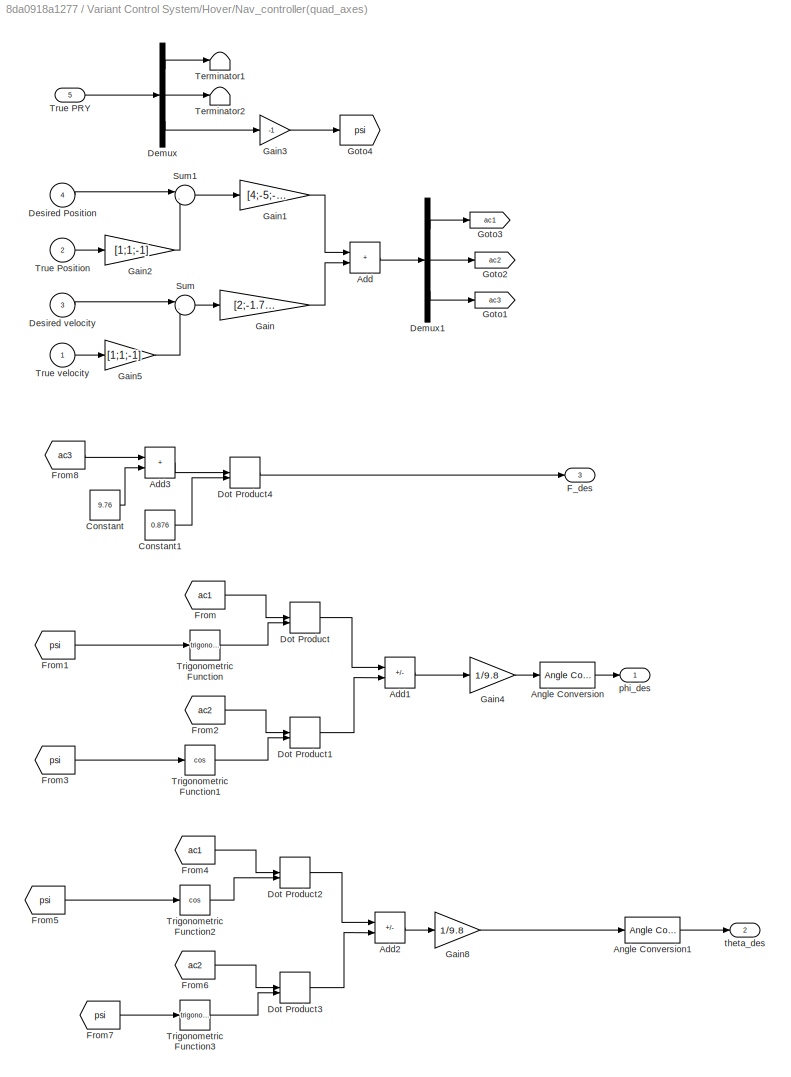
BLOCK [SubSystem] Variant Control System/Hover/Nav_controller(quad_axes)
  Ports = [5, 3]
  RequestExecContextInheritance = off
BLOCK [Sum] Variant Control System/Hover/Nav_controller(quad_axes)/Add
  IconShape = rectangular
  Ports = [2, 1]
BLOCK [Sum] Variant Control System/Hover/Nav_controller(quad_axes)/Add1
  IconShape = rectangular
  Inputs = +-
  Ports = [2, 1]
BLOCK [Sum] Variant Control System/Hover/Nav_controller(quad_axes)/Add2
  IconShape = rectangular
  Inputs = +-
  Ports = [2, 1]
BLOCK [Sum] Variant Control System/Hover/Nav_controller(quad_axes)/Add3
  IconShape = rectangular
  Ports = [2, 1]
BLOCK [Reference] Variant Control System/Hover/Nav_controller(quad_axes)/Angle Conversion  REF=aerolibconvert2/Angle Conversion
  Ports = [1, 1]
  SourceBlock = aerolibconvert2/Angle Conversion
  SourceProductBaseCode = AE
  SourceType = Angle Conversion
BLOCK [Reference] Variant Control System/Hover/Nav_controller(quad_axes)/Angle Conversion1  REF=aerolibconvert2/Angle Conversion
  Ports = [1, 1]
  SourceBlock = aerolibconvert2/Angle Conversion
  SourceProductBaseCode = AE
  SourceType = Angle Conversion
BLOCK [Constant] Variant Control System/Hover/Nav_controller(quad_axes)/Constant
  Value = 9.76
BLOCK [Constant] Variant Control System/Hover/Nav_controller(quad_axes)/Constant1
  Value = 0.876
BLOCK [Demux] Variant Control System/Hover/Nav_controller(quad_axes)/Demux
  Outputs = 3
  Ports = [1, 3]
BLOCK [Demux] Variant Control System/Hover/Nav_controller(quad_axes)/Demux1
  Outputs = 3
  Ports = [1, 3]
BLOCK [Inport] Variant Control System/Hover/Nav_controller(quad_axes)/Desired Position
  Port = 4
BLOCK [Inport] Variant Control System/Hover/Nav_controller(quad_axes)/Desired velocity
  Port = 3
BLOCK [DotProduct] Variant Control System/Hover/Nav_controller(quad_axes)/Dot Product
  OutDataTypeStr = Inherit: Inherit via internal rule
BLOCK [DotProduct] Variant Control System/Hover/Nav_controller(quad_axes)/Dot Product1
  OutDataTypeStr = Inherit: Inherit via internal rule
BLOCK [DotProduct] Variant Control System/Hover/Nav_controller(quad_axes)/Dot Product2
  OutDataTypeStr = Inherit: Inherit via internal rule
BLOCK [DotProduct] Variant Control System/Hover/Nav_controller(quad_axes)/Dot Product3
  OutDataTypeStr = Inherit: Inherit via internal rule
BLOCK [DotProduct] Variant Control System/Hover/Nav_controller(quad_axes)/Dot Product4
  OutDataTypeStr = Inherit: Inherit via internal rule
BLOCK [Outport] Variant Control System/Hover/Nav_controller(quad_axes)/F_des
  Port = 3
BLOCK [From] Variant Control System/Hover/Nav_controller(quad_axes)/From
  GotoTag = ac1
BLOCK [From] Variant Control System/Hover/Nav_controller(quad_axes)/From1
  GotoTag = psi
BLOCK [From] Variant Control System/Hover/Nav_controller(quad_axes)/From2
  GotoTag = ac2
BLOCK [From] Variant Control System/Hover/Nav_controller(quad_axes)/From3
  GotoTag = psi
BLOCK [From] Variant Control System/Hover/Nav_controller(quad_axes)/From4
  GotoTag = ac1
BLOCK [From] Variant Control System/Hover/Nav_controller(quad_axes)/From5
  GotoTag = psi
BLOCK [From] Variant Control System/Hover/Nav_controller(quad_axes)/From6
  GotoTag = ac2
BLOCK [From] Variant Control System/Hover/Nav_controller(quad_axes)/From7
  GotoTag = psi
BLOCK [From] Variant Control System/Hover/Nav_controller(quad_axes)/From8
  GotoTag = ac3
BLOCK [Gain] Variant Control System/Hover/Nav_controller(quad_axes)/Gain
  Gain = [2;-1.7;-1]
BLOCK [Gain] Variant Control System/Hover/Nav_controller(quad_axes)/Gain1
  Gain = [4;-5;-20]
BLOCK [Gain] Variant Control System/Hover/Nav_controller(quad_axes)/Gain2
  Gain = [1;1;-1]
BLOCK [Gain] Variant Control System/Hover/Nav_controller(quad_axes)/Gain3
  Gain = -1
BLOCK [Gain] Variant Control System/Hover/Nav_controller(quad_axes)/Gain4
  Gain = 1/9.8
BLOCK [Gain] Variant Control System/Hover/Nav_controller(quad_axes)/Gain5
  Gain = [1;1;-1]
BLOCK [Gain] Variant Control System/Hover/Nav_controller(quad_axes)/Gain8
  Gain = 1/9.8
BLOCK [Goto] Variant Control System/Hover/Nav_controller(quad_axes)/Goto1
  GotoTag = ac3
BLOCK [Goto] Variant Control System/Hover/Nav_controller(quad_axes)/Goto2
  GotoTag = ac2
BLOCK [Goto] Variant Control System/Hover/Nav_controller(quad_axes)/Goto3
  GotoTag = ac1
BLOCK [Goto] Variant Control System/Hover/Nav_controller(quad_axes)/Goto4
  GotoTag = psi
BLOCK [Sum] Variant Control System/Hover/Nav_controller(quad_axes)/Sum
  Inputs = |-+
  Ports = [2, 1]
BLOCK [Sum] Variant Control System/Hover/Nav_controller(quad_axes)/Sum1
  Inputs = |-+
  Ports = [2, 1]
BLOCK [Terminator] Variant Control System/Hover/Nav_controller(quad_axes)/Terminator1
BLOCK [Terminator] Variant Control System/Hover/Nav_controller(quad_axes)/Terminator2
BLOCK [Trigonometry] Variant Control System/Hover/Nav_controller(quad_axes)/Trigonometric Function
  Ports = [1, 1]
BLOCK [Trigonometry] Variant Control System/Hover/Nav_controller(quad_axes)/Trigonometric Function1
  Operator = cos
  Ports = [1, 1]
BLOCK [Trigonometry] Variant Control System/Hover/Nav_controller(quad_axes)/Trigonometric Function2
  Operator = cos
  Ports = [1, 1]
BLOCK [Trigonometry] Variant Control System/Hover/Nav_controller(quad_axes)/Trigonometric Function3
  Ports = [1, 1]
BLOCK [Inport] Variant Control System/Hover/Nav_controller(quad_axes)/True PRY
  Port = 5
BLOCK [Inport] Variant Control System/Hover/Nav_controller(quad_axes)/True Position
  Port = 2
BLOCK [Inport] Variant Control System/Hover/Nav_controller(quad_axes)/True velocity
BLOCK [Outport] Variant Control System/Hover/Nav_controller(quad_axes)/phi_des
BLOCK [Outport] Variant Control System/Hover/Nav_controller(quad_axes)/theta_des 
  Port = 2
BLOCK [Saturate] Variant Control System/Hover/Saturation4
  LowerLimit = 0
  UpperLimit = 10000
BLOCK [Saturate] Variant Control System/Hover/Saturation5
  LowerLimit = 0
  UpperLimit = 10000
BLOCK [Saturate] Variant Control System/Hover/Saturation6
  LowerLimit = -20
  UpperLimit = 20
BLOCK [Saturate] Variant Control System/Hover/Saturation7
  LowerLimit = -20
  UpperLimit = 20
BLOCK [Inport] Variant Control System/Hover/State
BLOCK [SubSystem] Variant Control System/Hover/map1
  Ports = [2, 1]
  RequestExecContextInheritance = off
BLOCK [Outport] Variant Control System/Hover/map1/Act
BLOCK [Constant] Variant Control System/Hover/map1/Constant
  Value = 100
BLOCK [Constant] Variant Control System/Hover/map1/Constant1
  Value = 9.5
BLOCK [Constant] Variant Control System/Hover/map1/Constant2
  Value = 0.3
BLOCK [Demux] Variant Control System/Hover/map1/Demux
  Outputs = 3
  Ports = [1, 3]
BLOCK [Inport] Variant Control System/Hover/map1/F_c
BLOCK [Gain] Variant Control System/Hover/map1/Gain
  Gain = 1000
BLOCK [Gain] Variant Control System/Hover/map1/Gain1
  Gain = 1000
BLOCK [Gain] Variant Control System/Hover/map1/Gain2
  Gain = 50
BLOCK [Gain] Variant Control System/Hover/map1/Gain3
  Gain = 50
BLOCK [Inport] Variant Control System/Hover/map1/M_c
  Port = 2
BLOCK [Mux] Variant Control System/Hover/map1/Mux
  DisplayOption = bar
  Ports = [4, 1]
BLOCK [Sum] Variant Control System/Hover/map1/Sum
  Inputs = -+|
  Ports = [2, 1]
BLOCK [Sum] Variant Control System/Hover/map1/Sum1
  Inputs = |++
  Ports = [2, 1]
BLOCK [Sum] Variant Control System/Hover/map1/Sum2
  Inputs = |+-
  Ports = [2, 1]
BLOCK [Sum] Variant Control System/Hover/map1/Sum3
  Inputs = -+|
  Ports = [2, 1]
BLOCK [Sum] Variant Control System/Hover/map1/Sum4
  Inputs = |++
  Ports = [2, 1]
BLOCK [Sum] Variant Control System/Hover/map1/Sum5
  Inputs = |++
  Ports = [2, 1]
BLOCK [Sum] Variant Control System/Hover/map1/Sum6
  Inputs = +-|
  Ports = [2, 1]
BLOCK [SubSystem] Variant Control System/Hover_yaw
  Ports = [1, 1]
  RequestExecContextInheritance = off
  VariantControl = HoverYaw
BLOCK [SubSystem] Variant Control System/Hover_yaw/Attitude controller
  Ports = [4, 2]
  RequestExecContextInheritance = off
BLOCK [Reference] Variant Control System/Hover_yaw/Attitude controller/Angle Conversion1  REF=aerolibconvert2/Angle Conversion
  Ports = [1, 1]
  SourceBlock = aerolibconvert2/Angle Conversion
  SourceProductBaseCode = AE
  SourceType = Angle Conversion
BLOCK [Constant] Variant Control System/Hover_yaw/Attitude controller/Constant1
  Value = 90
BLOCK [Demux] Variant Control System/Hover_yaw/Attitude controller/Demux
  Outputs = 3
  Ports = [1, 3]
BLOCK [Outport] Variant Control System/Hover_yaw/Attitude controller/F_c
BLOCK [Inport] Variant Control System/Hover_yaw/Attitude controller/F_des
  Port = 3
BLOCK [Gain] Variant Control System/Hover_yaw/Attitude controller/Gain3
  Gain = -1
BLOCK [Outport] Variant Control System/Hover_yaw/Attitude controller/M_C 
  Port = 2
BLOCK [Mux] Variant Control System/Hover_yaw/Attitude controller/Mux1
  DisplayOption = bar
  Inputs = 3
  Ports = [3, 1]
BLOCK [Reference] Variant Control System/Hover_yaw/Attitude controller/PID Controller  REF=pid_lib/PID Controller
  Ports = [1, 1]
  SourceBlock = pid_lib/PID Controller
  SourceProductBaseCode = SL
  SourceType = PID 1dof
BLOCK [Reference] Variant Control System/Hover_yaw/Attitude controller/PID Controller1  REF=pid_lib/PID Controller
  Ports = [1, 1]
  SourceBlock = pid_lib/PID Controller
  SourceProductBaseCode = SL
  SourceType = PID 1dof
BLOCK [Reference] Variant Control System/Hover_yaw/Attitude controller/PID Controller2  REF=pid_lib/PID Controller
  Ports = [1, 1]
  SourceBlock = pid_lib/PID Controller
  SourceProductBaseCode = SL
  SourceType = PID 1dof
BLOCK [Inport] Variant Control System/Hover_yaw/Attitude controller/PRY
  Port = 4
BLOCK [Scope] Variant Control System/Hover_yaw/Attitude controller/Scope1
  Floating = off
  NumInputPorts = 1
  Ports = [1]
  ScopeSpecificationString = Simulink.scopes.TimeScopeBlockCfg('CurrentConfiguration', extmgr.ConfigurationSet(extmgr.Configuration('Core','General UI',true),extmgr.Configuration('Core','Source UI',true),extmgr.Configuration('Sources','WiredSimulink',true,'DataLoggingVariableName','ScopeData3','DataLoggingLimitDataPoints',true,'DataLoggingSaveFormat','Array','DataLoggingDecimation','1','DataLoggingDecimateData',true),extmgr.C...<+1789ch>
BLOCK [Scope] Variant Control System/Hover_yaw/Attitude controller/Scope3
  Floating = off
  NumInputPorts = 1
  Ports = [1]
  ScopeSpecificationString = Simulink.scopes.TimeScopeBlockCfg('CurrentConfiguration', extmgr.ConfigurationSet(extmgr.Configuration('Core','General UI',true),extmgr.Configuration('Core','Source UI',true),extmgr.Configuration('Sources','WiredSimulink',true,'DataLoggingVariableName','ScopeData1','DataLoggingLimitDataPoints',true,'DataLoggingSaveFormat','Array','DataLoggingDecimation','1','DataLoggingDecimateData',true),extmgr.C...<+1760ch>
BLOCK [Selector] Variant Control System/Hover_yaw/Attitude controller/Selector
  IndexOptions = Index vector (dialog)
  Indices = [3]
  InputPortWidth = 3
  OutputSizes = 1
  Ports = [1, 1]
BLOCK [Terminator] Variant Control System/Hover_yaw/Attitude controller/Terminator
BLOCK [Sum] Variant Control System/Hover_yaw/Attitude controller/error_phi
  IconShape = rectangular
  Inputs = -+
  Ports = [2, 1]
BLOCK [Sum] Variant Control System/Hover_yaw/Attitude controller/error_phi1
  IconShape = rectangular
  Inputs = -+
  Ports = [2, 1]
BLOCK [Sum] Variant Control System/Hover_yaw/Attitude controller/error_pqr1
  IconShape = rectangular
  Inputs = -+
  Ports = [2, 1]
BLOCK [Inport] Variant Control System/Hover_yaw/Attitude controller/phi_des
BLOCK [Inport] Variant Control System/Hover_yaw/Attitude controller/theta_des
  Port = 2
BLOCK [BusSelector] Variant Control System/Hover_yaw/Bus Selector
  OutputSignals = v_e,x_e,DCM,omega
  Ports = [1, 4]
BLOCK [Clock] Variant Control System/Hover_yaw/Clock
BLOCK [Outport] Variant Control System/Hover_yaw/Command
BLOCK [Constant] Variant Control System/Hover_yaw/Constant
  Value = [0,0,0]
BLOCK [Constant] Variant Control System/Hover_yaw/Constant1
  Value = [0,0,1]
BLOCK [Demux] Variant Control System/Hover_yaw/Demux4
  NameLocation = top
  Ports = [1, 4]
BLOCK [Reference] Variant Control System/Hover_yaw/Direction Cosine Matrix to Rotation Angles  REF=sharedtransform/Direction Cosine Matrix
to Rotation Angles
  AttributesFormatString = Rotation Order: %<rotationOrder>
  Ports = [1, 1]
  SourceBlock = sharedtransform/Direction Cosine Matrix\nto Rotation Angles
  SourceProductBaseCode = AE,PW,DR,MT,UV,VE
  SourceType = DCM2Ang
BLOCK [SubSystem] Variant Control System/Hover_yaw/MATLAB Function
  ErrorFcn = Stateflow.Translate.translate
  PermitHierarchicalResolution = ExplicitOnly
  Ports = [1, 1]
  RequestExecContextInheritance = off
  SFBlockType = MATLAB Function
  TreatAsAtomicUnit = on
BLOCK [Demux] Variant Control System/Hover_yaw/MATLAB Function/ Demux 
  Outputs = 1
  Ports = [1, 1]
BLOCK [S-Function] Variant Control System/Hover_yaw/MATLAB Function/ SFunction 
  EnableBusSupport = on
  FunctionName = sf_sfun
  PortCounts = [1 2]
  Ports = [1, 2]
  SFcnIsStateOwnerBlock = off
  SFunctionDeploymentMode = off
  Tag = Stateflow S-Function 7
BLOCK [Terminator] Variant Control System/Hover_yaw/MATLAB Function/ Terminator 
BLOCK [Outport] Variant Control System/Hover_yaw/MATLAB Function/out
BLOCK [Inport] Variant Control System/Hover_yaw/MATLAB Function/t
BLOCK [Mux] Variant Control System/Hover_yaw/Mux2
  DisplayOption = bar
  Ports = [4, 1]
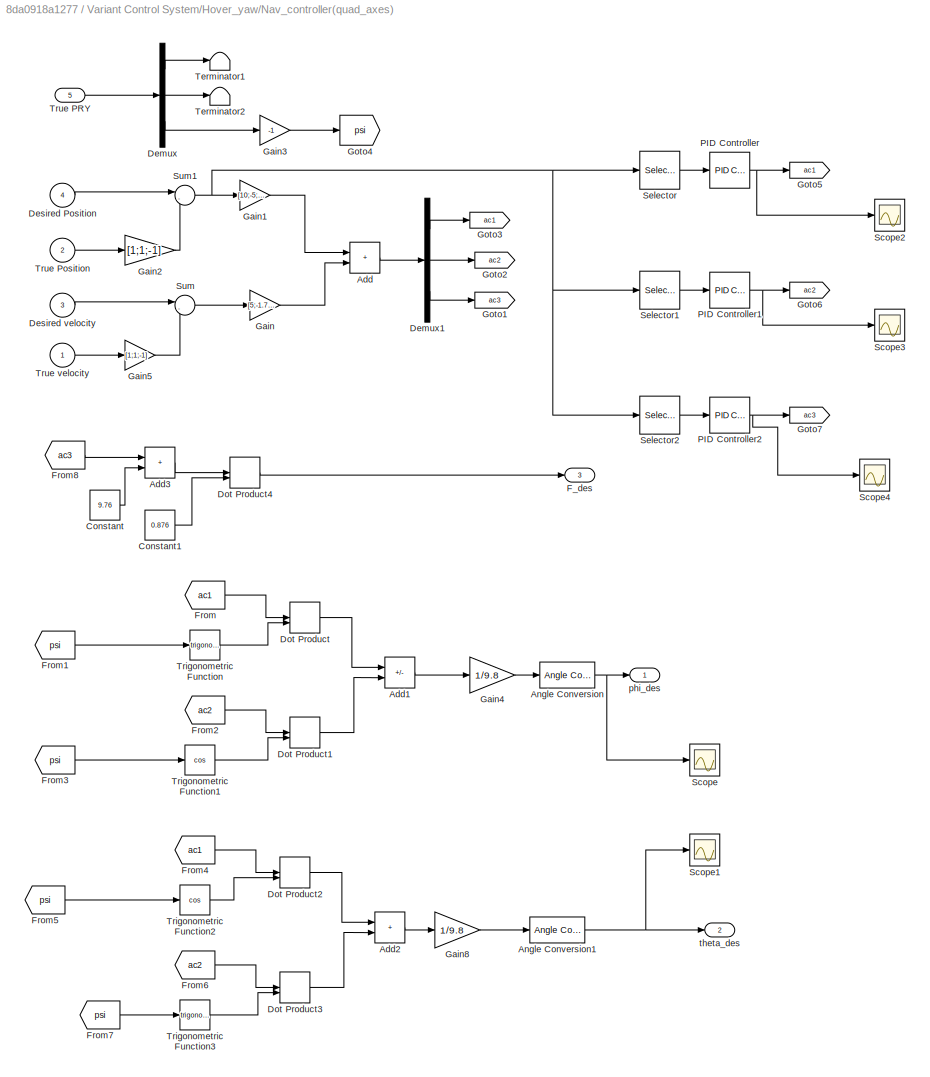
BLOCK [SubSystem] Variant Control System/Hover_yaw/Nav_controller(quad_axes)
  Ports = [5, 3]
  RequestExecContextInheritance = off
BLOCK [Sum] Variant Control System/Hover_yaw/Nav_controller(quad_axes)/Add
  IconShape = rectangular
  Ports = [2, 1]
BLOCK [Sum] Variant Control System/Hover_yaw/Nav_controller(quad_axes)/Add1
  IconShape = rectangular
  Inputs = +-
  Ports = [2, 1]
BLOCK [Sum] Variant Control System/Hover_yaw/Nav_controller(quad_axes)/Add2
  IconShape = rectangular
  Ports = [2, 1]
BLOCK [Sum] Variant Control System/Hover_yaw/Nav_controller(quad_axes)/Add3
  IconShape = rectangular
  Ports = [2, 1]
BLOCK [Reference] Variant Control System/Hover_yaw/Nav_controller(quad_axes)/Angle Conversion  REF=aerolibconvert2/Angle Conversion
  Ports = [1, 1]
  SourceBlock = aerolibconvert2/Angle Conversion
  SourceProductBaseCode = AE
  SourceType = Angle Conversion
BLOCK [Reference] Variant Control System/Hover_yaw/Nav_controller(quad_axes)/Angle Conversion1  REF=aerolibconvert2/Angle Conversion
  Ports = [1, 1]
  SourceBlock = aerolibconvert2/Angle Conversion
  SourceProductBaseCode = AE
  SourceType = Angle Conversion
BLOCK [Constant] Variant Control System/Hover_yaw/Nav_controller(quad_axes)/Constant
  Value = 9.76
BLOCK [Constant] Variant Control System/Hover_yaw/Nav_controller(quad_axes)/Constant1
  Value = 0.876
BLOCK [Demux] Variant Control System/Hover_yaw/Nav_controller(quad_axes)/Demux
  Outputs = 3
  Ports = [1, 3]
BLOCK [Demux] Variant Control System/Hover_yaw/Nav_controller(quad_axes)/Demux1
  Outputs = 3
  Ports = [1, 3]
BLOCK [Inport] Variant Control System/Hover_yaw/Nav_controller(quad_axes)/Desired Position
  Port = 4
BLOCK [Inport] Variant Control System/Hover_yaw/Nav_controller(quad_axes)/Desired velocity
  Port = 3
BLOCK [DotProduct] Variant Control System/Hover_yaw/Nav_controller(quad_axes)/Dot Product
  OutDataTypeStr = Inherit: Inherit via internal rule
BLOCK [DotProduct] Variant Control System/Hover_yaw/Nav_controller(quad_axes)/Dot Product1
  OutDataTypeStr = Inherit: Inherit via internal rule
BLOCK [DotProduct] Variant Control System/Hover_yaw/Nav_controller(quad_axes)/Dot Product2
  OutDataTypeStr = Inherit: Inherit via internal rule
BLOCK [DotProduct] Variant Control System/Hover_yaw/Nav_controller(quad_axes)/Dot Product3
  OutDataTypeStr = Inherit: Inherit via internal rule
BLOCK [DotProduct] Variant Control System/Hover_yaw/Nav_controller(quad_axes)/Dot Product4
  OutDataTypeStr = Inherit: Inherit via internal rule
BLOCK [Outport] Variant Control System/Hover_yaw/Nav_controller(quad_axes)/F_des
  Port = 3
BLOCK [From] Variant Control System/Hover_yaw/Nav_controller(quad_axes)/From
  GotoTag = ac1
BLOCK [From] Variant Control System/Hover_yaw/Nav_controller(quad_axes)/From1
  GotoTag = psi
BLOCK [From] Variant Control System/Hover_yaw/Nav_controller(quad_axes)/From2
  GotoTag = ac2
BLOCK [From] Variant Control System/Hover_yaw/Nav_controller(quad_axes)/From3
  GotoTag = psi
BLOCK [From] Variant Control System/Hover_yaw/Nav_controller(quad_axes)/From4
  GotoTag = ac1
BLOCK [From] Variant Control System/Hover_yaw/Nav_controller(quad_axes)/From5
  GotoTag = psi
BLOCK [From] Variant Control System/Hover_yaw/Nav_controller(quad_axes)/From6
  GotoTag = ac2
BLOCK [From] Variant Control System/Hover_yaw/Nav_controller(quad_axes)/From7
  GotoTag = psi
BLOCK [From] Variant Control System/Hover_yaw/Nav_controller(quad_axes)/From8
  GotoTag = ac3
BLOCK [Gain] Variant Control System/Hover_yaw/Nav_controller(quad_axes)/Gain
  Gain = [5;-1.7;-1]
BLOCK [Gain] Variant Control System/Hover_yaw/Nav_controller(quad_axes)/Gain1
  Gain = [10;-5;-20]
BLOCK [Gain] Variant Control System/Hover_yaw/Nav_controller(quad_axes)/Gain2
  Gain = [1;1;-1]
BLOCK [Gain] Variant Control System/Hover_yaw/Nav_controller(quad_axes)/Gain3
  Gain = -1
BLOCK [Gain] Variant Control System/Hover_yaw/Nav_controller(quad_axes)/Gain4
  Gain = 1/9.8
BLOCK [Gain] Variant Control System/Hover_yaw/Nav_controller(quad_axes)/Gain5
  Gain = [1;1;-1]
BLOCK [Gain] Variant Control System/Hover_yaw/Nav_controller(quad_axes)/Gain8
  Gain = 1/9.8
BLOCK [Goto] Variant Control System/Hover_yaw/Nav_controller(quad_axes)/Goto1
  Commented = on
  GotoTag = ac3
BLOCK [Goto] Variant Control System/Hover_yaw/Nav_controller(quad_axes)/Goto2
  Commented = on
  GotoTag = ac2
BLOCK [Goto] Variant Control System/Hover_yaw/Nav_controller(quad_axes)/Goto3
  Commented = on
  GotoTag = ac1
BLOCK [Goto] Variant Control System/Hover_yaw/Nav_controller(quad_axes)/Goto4
  GotoTag = psi
BLOCK [Goto] Variant Control System/Hover_yaw/Nav_controller(quad_axes)/Goto5
  GotoTag = ac1
BLOCK [Goto] Variant Control System/Hover_yaw/Nav_controller(quad_axes)/Goto6
  GotoTag = ac2
BLOCK [Goto] Variant Control System/Hover_yaw/Nav_controller(quad_axes)/Goto7
  GotoTag = ac3
BLOCK [Reference] Variant Control System/Hover_yaw/Nav_controller(quad_axes)/PID Controller  REF=pid_lib/PID Controller
  Ports = [1, 1]
  SourceBlock = pid_lib/PID Controller
  SourceProductBaseCode = SL
  SourceType = PID 1dof
BLOCK [Reference] Variant Control System/Hover_yaw/Nav_controller(quad_axes)/PID Controller1  REF=pid_lib/PID Controller
  Ports = [1, 1]
  SourceBlock = pid_lib/PID Controller
  SourceProductBaseCode = SL
  SourceType = PID 1dof
BLOCK [Reference] Variant Control System/Hover_yaw/Nav_controller(quad_axes)/PID Controller2  REF=pid_lib/PID Controller
  Ports = [1, 1]
  SourceBlock = pid_lib/PID Controller
  SourceProductBaseCode = SL
  SourceType = PID 1dof
BLOCK [Scope] Variant Control System/Hover_yaw/Nav_controller(quad_axes)/Scope
  Floating = off
  NumInputPorts = 1
  Ports = [1]
  ScopeSpecificationString = Simulink.scopes.TimeScopeBlockCfg('CurrentConfiguration', extmgr.ConfigurationSet(extmgr.Configuration('Core','General UI',true),extmgr.Configuration('Core','Source UI',true),extmgr.Configuration('Sources','WiredSimulink',true,'DataLoggingVariableName','ScopeData4'),extmgr.Configuration('Visuals','Time Domain',true,'SerializedDisplays',{struct('MinYLimReal','-1.00000','MaxYLimReal','1.00000','YLab...<+1375ch>
BLOCK [Scope] Variant Control System/Hover_yaw/Nav_controller(quad_axes)/Scope1
  Floating = off
  NumInputPorts = 1
  Ports = [1]
  ScopeSpecificationString = Simulink.scopes.TimeScopeBlockCfg('CurrentConfiguration', extmgr.ConfigurationSet(extmgr.Configuration('Core','General UI',true),extmgr.Configuration('Core','Source UI',true),extmgr.Configuration('Sources','WiredSimulink',true,'DataLoggingVariableName','ScopeData5'),extmgr.Configuration('Visuals','Time Domain',true,'SerializedDisplays',{struct('MinYLimReal','-3.93884','MaxYLimReal','2.1899','YLabe...<+1374ch>
BLOCK [Scope] Variant Control System/Hover_yaw/Nav_controller(quad_axes)/Scope2
  Floating = off
  NumInputPorts = 1
  Ports = [1]
  ScopeSpecificationString = Simulink.scopes.TimeScopeBlockCfg('CurrentConfiguration', extmgr.ConfigurationSet(extmgr.Configuration('Core','General UI',true),extmgr.Configuration('Core','Source UI',true),extmgr.Configuration('Sources','WiredSimulink',true,'DataLoggingVariableName','ScopeData6'),extmgr.Configuration('Visuals','Time Domain',true,'SerializedDisplays',{struct('MinYLimReal','-1.00000','MaxYLimReal','1.00000','YLab...<+1373ch>
BLOCK [Scope] Variant Control System/Hover_yaw/Nav_controller(quad_axes)/Scope3
  Floating = off
  NumInputPorts = 1
  Ports = [1]
  ScopeSpecificationString = Simulink.scopes.TimeScopeBlockCfg('CurrentConfiguration', extmgr.ConfigurationSet(extmgr.Configuration('Core','General UI',true),extmgr.Configuration('Core','Source UI',true),extmgr.Configuration('Sources','WiredSimulink',true,'DataLoggingVariableName','ScopeData7'),extmgr.Configuration('Visuals','Time Domain',true,'SerializedDisplays',{struct('MinYLimReal','-1.00000','MaxYLimReal','1.00000','YLab...<+1374ch>
BLOCK [Scope] Variant Control System/Hover_yaw/Nav_controller(quad_axes)/Scope4
  Floating = off
  NumInputPorts = 1
  Ports = [1]
  ScopeSpecificationString = Simulink.scopes.TimeScopeBlockCfg('CurrentConfiguration', extmgr.ConfigurationSet(extmgr.Configuration('Core','General UI',true),extmgr.Configuration('Core','Source UI',true),extmgr.Configuration('Sources','WiredSimulink',true,'DataLoggingVariableName','ScopeData8'),extmgr.Configuration('Visuals','Time Domain',true,'SerializedDisplays',{struct('MinYLimReal','-1.00000','MaxYLimReal','1.00000','YLab...<+1374ch>
BLOCK [Selector] Variant Control System/Hover_yaw/Nav_controller(quad_axes)/Selector
  IndexOptions = Index vector (dialog)
  Indices = [1]
  InputPortWidth = 3
  OutputSizes = 1
  Ports = [1, 1]
BLOCK [Selector] Variant Control System/Hover_yaw/Nav_controller(quad_axes)/Selector1
  IndexOptions = Index vector (dialog)
  Indices = [2]
  InputPortWidth = 3
  OutputSizes = 1
  Ports = [1, 1]
BLOCK [Selector] Variant Control System/Hover_yaw/Nav_controller(quad_axes)/Selector2
  IndexOptions = Index vector (dialog)
  Indices = [3]
  InputPortWidth = 3
  OutputSizes = 1
  Ports = [1, 1]
BLOCK [Sum] Variant Control System/Hover_yaw/Nav_controller(quad_axes)/Sum
  Inputs = |-+
  Ports = [2, 1]
BLOCK [Sum] Variant Control System/Hover_yaw/Nav_controller(quad_axes)/Sum1
  Inputs = |-+
  Ports = [2, 1]
BLOCK [Terminator] Variant Control System/Hover_yaw/Nav_controller(quad_axes)/Terminator1
BLOCK [Terminator] Variant Control System/Hover_yaw/Nav_controller(quad_axes)/Terminator2
BLOCK [Trigonometry] Variant Control System/Hover_yaw/Nav_controller(quad_axes)/Trigonometric Function
  Ports = [1, 1]
BLOCK [Trigonometry] Variant Control System/Hover_yaw/Nav_controller(quad_axes)/Trigonometric Function1
  Operator = cos
  Ports = [1, 1]
BLOCK [Trigonometry] Variant Control System/Hover_yaw/Nav_controller(quad_axes)/Trigonometric Function2
  Operator = cos
  Ports = [1, 1]
BLOCK [Trigonometry] Variant Control System/Hover_yaw/Nav_controller(quad_axes)/Trigonometric Function3
  Ports = [1, 1]
BLOCK [Inport] Variant Control System/Hover_yaw/Nav_controller(quad_axes)/True PRY
  Port = 5
BLOCK [Inport] Variant Control System/Hover_yaw/Nav_controller(quad_axes)/True Position
  Port = 2
BLOCK [Inport] Variant Control System/Hover_yaw/Nav_controller(quad_axes)/True velocity
BLOCK [Outport] Variant Control System/Hover_yaw/Nav_controller(quad_axes)/phi_des
BLOCK [Outport] Variant Control System/Hover_yaw/Nav_controller(quad_axes)/theta_des 
  Port = 2
BLOCK [Saturate] Variant Control System/Hover_yaw/Saturation4
  LowerLimit = 0
  UpperLimit = 10000
BLOCK [Saturate] Variant Control System/Hover_yaw/Saturation5
  LowerLimit = 0
  UpperLimit = 10000
BLOCK [Saturate] Variant Control System/Hover_yaw/Saturation6
  LowerLimit = -20
  UpperLimit = 20
BLOCK [Saturate] Variant Control System/Hover_yaw/Saturation7
  LowerLimit = -20
  UpperLimit = 20
BLOCK [Scope] Variant Control System/Hover_yaw/Scope
  Floating = off
  NumInputPorts = 1
  Ports = [1]
  ScopeSpecificationString = Simulink.scopes.TimeScopeBlockCfg('CurrentConfiguration', extmgr.ConfigurationSet(extmgr.Configuration('Core','General UI',true),extmgr.Configuration('Core','Source UI',true),extmgr.Configuration('Sources','WiredSimulink',true,'DataLoggingVariableName','ScopeData2'),extmgr.Configuration('Visuals','Time Domain',true,'SerializedDisplays',{struct('MinYLimReal','-2.80683','MaxYLimReal','3.06967','YLab...<+1488ch>
BLOCK [Inport] Variant Control System/Hover_yaw/State
BLOCK [SubSystem] Variant Control System/Hover_yaw/map1
  Ports = [2, 1]
  RequestExecContextInheritance = off
BLOCK [Outport] Variant Control System/Hover_yaw/map1/Act
BLOCK [Constant] Variant Control System/Hover_yaw/map1/Constant
  Value = 100
BLOCK [Constant] Variant Control System/Hover_yaw/map1/Constant1
  Value = 9.5
BLOCK [Constant] Variant Control System/Hover_yaw/map1/Constant2
  Value = 0.3
BLOCK [Demux] Variant Control System/Hover_yaw/map1/Demux
  Outputs = 3
  Ports = [1, 3]
BLOCK [Inport] Variant Control System/Hover_yaw/map1/F_c
BLOCK [Gain] Variant Control System/Hover_yaw/map1/Gain
  Gain = 1000
BLOCK [Gain] Variant Control System/Hover_yaw/map1/Gain1
  Gain = 1000
BLOCK [Gain] Variant Control System/Hover_yaw/map1/Gain2
  Gain = 50
BLOCK [Gain] Variant Control System/Hover_yaw/map1/Gain3
  Gain = 50
BLOCK [Inport] Variant Control System/Hover_yaw/map1/M_c
  Port = 2
BLOCK [Mux] Variant Control System/Hover_yaw/map1/Mux
  DisplayOption = bar
  Ports = [4, 1]
BLOCK [Sum] Variant Control System/Hover_yaw/map1/Sum
  Inputs = -+|
  Ports = [2, 1]
BLOCK [Sum] Variant Control System/Hover_yaw/map1/Sum1
  Inputs = |++
  Ports = [2, 1]
BLOCK [Sum] Variant Control System/Hover_yaw/map1/Sum2
  Inputs = |+-
  Ports = [2, 1]
BLOCK [Sum] Variant Control System/Hover_yaw/map1/Sum3
  Inputs = -+|
  Ports = [2, 1]
BLOCK [Sum] Variant Control System/Hover_yaw/map1/Sum4
  Inputs = |++
  Ports = [2, 1]
BLOCK [Sum] Variant Control System/Hover_yaw/map1/Sum5
  Inputs = |++
  Ports = [2, 1]
BLOCK [Sum] Variant Control System/Hover_yaw/map1/Sum6
  Inputs = +-|
  Ports = [2, 1]
BLOCK [SubSystem] Variant Control System/PIDcruise
  Ports = [1, 1]
  RequestExecContextInheritance = off
  VariantControl = PIDcruise
BLOCK [Reference] Variant Control System/PIDcruise/Angle Conversion  REF=aerolibconvert2/Angle Conversion
  Ports = [1, 1]
  SourceBlock = aerolibconvert2/Angle Conversion
  SourceProductBaseCode = AE
  SourceType = Angle Conversion
BLOCK [BusSelector] Variant Control System/PIDcruise/Bus Selector
  OutputSignals = euler,v_b
  Ports = [1, 2]
BLOCK [Outport] Variant Control System/PIDcruise/Command 
BLOCK [Demux] Variant Control System/PIDcruise/Demux
  NameLocation = top
  Ports = [1, 4]
BLOCK [Mux] Variant Control System/PIDcruise/Mux1
  DisplayOption = bar
  Inputs = 2
  Ports = [2, 1]
BLOCK [Mux] Variant Control System/PIDcruise/Mux2
  DisplayOption = bar
  Inputs = 2
  Ports = [2, 1]
BLOCK [Mux] Variant Control System/PIDcruise/Mux3
  DisplayOption = bar
  Inputs = 2
  Ports = [2, 1]
BLOCK [Saturate] Variant Control System/PIDcruise/Saturation
  LowerLimit = 0
  UpperLimit = 10000
BLOCK [Saturate] Variant Control System/PIDcruise/Saturation1
  LowerLimit = 0
  UpperLimit = 10000
BLOCK [Saturate] Variant Control System/PIDcruise/Saturation2
  LowerLimit = -23
  UpperLimit = 16.5
BLOCK [Saturate] Variant Control System/PIDcruise/Saturation3
  LowerLimit = -23
  UpperLimit = 16.5
BLOCK [Inport] Variant Control System/PIDcruise/State
BLOCK [SubSystem] Variant Control System/PIDcruise/Subsystem
  Ports = [1, 1]
  RequestExecContextInheritance = off
BLOCK [Constant] Variant Control System/PIDcruise/Subsystem/Constant
  Value = 0
BLOCK [Constant] Variant Control System/PIDcruise/Subsystem/Constant1
  Value = 8
BLOCK [Constant] Variant Control System/PIDcruise/Subsystem/Constant2
  Value = 0
BLOCK [Demux] Variant Control System/PIDcruise/Subsystem/Demux
  Outputs = 3
  Ports = [1, 3]
BLOCK [Inport] Variant Control System/PIDcruise/Subsystem/Euler
BLOCK [Mux] Variant Control System/PIDcruise/Subsystem/Mux
  DisplayOption = bar
  Inputs = 3
  Ports = [3, 1]
BLOCK [Outport] Variant Control System/PIDcruise/Subsystem/Out1
BLOCK [Reference] Variant Control System/PIDcruise/Subsystem/PID Controller  REF=pid_lib/PID Controller
  Ports = [1, 1]
  SourceBlock = pid_lib/PID Controller
  SourceProductBaseCode = SL
  SourceType = PID 1dof
BLOCK [Reference] Variant Control System/PIDcruise/Subsystem/PID Controller1  REF=pid_lib/PID Controller
  Ports = [1, 1]
  SourceBlock = pid_lib/PID Controller
  SourceProductBaseCode = SL
  SourceType = PID 1dof
BLOCK [Reference] Variant Control System/PIDcruise/Subsystem/PID Controller2  REF=pid_lib/PID Controller
  Ports = [1, 1]
  SourceBlock = pid_lib/PID Controller
  SourceProductBaseCode = SL
  SourceType = PID 1dof
BLOCK [Sum] Variant Control System/PIDcruise/Subsystem/Sum
  Inputs = +-|
  Ports = [2, 1]
BLOCK [Sum] Variant Control System/PIDcruise/Subsystem/Sum1
  Inputs = +-|
  Ports = [2, 1]
BLOCK [Sum] Variant Control System/PIDcruise/Subsystem/Sum2
  Inputs = +-|
  Ports = [2, 1]
BLOCK [SubSystem] Variant Control System/PIDcruise/Subsystem1
  Ports = [1, 1]
  RequestExecContextInheritance = off
BLOCK [Constant] Variant Control System/PIDcruise/Subsystem1/Constant
  Value = 10
BLOCK [Outport] Variant Control System/PIDcruise/Subsystem1/Out1
BLOCK [Reference] Variant Control System/PIDcruise/Subsystem1/PID Controller2  REF=pid_lib/PID Controller
  Ports = [1, 1]
  SourceBlock = pid_lib/PID Controller
  SourceProductBaseCode = SL
  SourceType = PID 1dof
BLOCK [Selector] Variant Control System/PIDcruise/Subsystem1/Selector
  IndexOptions = Index vector (dialog)
  Indices = [1]
  InputPortWidth = 3
  OutputSizes = 1
  Ports = [1, 1]
BLOCK [Sum] Variant Control System/PIDcruise/Subsystem1/Sum2
  Inputs = +-|
  Ports = [2, 1]
BLOCK [Inport] Variant Control System/PIDcruise/Subsystem1/Velocity
BLOCK [SubSystem] Variant Control System/PIDcruise/Subsystem2
  Ports = [2, 1]
  RequestExecContextInheritance = off
BLOCK [Demux] Variant Control System/PIDcruise/Subsystem2/Demux
  Outputs = 3
  Ports = [1, 3]
BLOCK [Inport] Variant Control System/PIDcruise/Subsystem2/Fprce
  Port = 2
BLOCK [Gain] Variant Control System/PIDcruise/Subsystem2/Gain
  Gain = 2000
BLOCK [Gain] Variant Control System/PIDcruise/Subsystem2/Gain1
  Gain = -50
BLOCK [Gain] Variant Control System/PIDcruise/Subsystem2/Gain2
  Gain = 50
BLOCK [Gain] Variant Control System/PIDcruise/Subsystem2/Gain3
  Gain = -1000
BLOCK [Inport] Variant Control System/PIDcruise/Subsystem2/Moment
BLOCK [Mux] Variant Control System/PIDcruise/Subsystem2/Mux
  DisplayOption = bar
  Ports = [4, 1]
BLOCK [Outport] Variant Control System/PIDcruise/Subsystem2/Out1
BLOCK [Sum] Variant Control System/PIDcruise/Subsystem2/Sum
  Inputs = ++|
  Ports = [2, 1]
BLOCK [Sum] Variant Control System/PIDcruise/Subsystem2/Sum1
  Inputs = -+|
  Ports = [2, 1]
BLOCK [Sum] Variant Control System/PIDcruise/Subsystem2/Sum2
  IconShape = rectangular
  Inputs = 2
  Ports = [2, 1]
BLOCK [Sum] Variant Control System/PIDcruise/Subsystem2/Sum3
  IconShape = rectangular
  Inputs = -+
  Ports = [2, 1]
BLOCK [Inport] Variant Control System/State
BLOCK [SubSystem] Variant Control System/Transition
  Ports = [1, 1]
  RequestExecContextInheritance = off
  VariantControl = Transition
BLOCK [Outport] Variant Control System/Transition/Command
BLOCK [Inport] Variant Control System/Transition/State
BLOCK [SubSystem] Variant Control System/Transition/Trans
  Ports = [1, 1]
  RequestExecContextInheritance = off
BLOCK [BusSelector] Variant Control System/Transition/Trans/Bus Selector
  OutputSignals = v_b,euler
  Ports = [1, 2]
BLOCK [SubSystem] Variant Control System/Transition/Trans/Chart1
  ErrorFcn = Stateflow.Translate.translate
  PermitHierarchicalResolution = ExplicitOnly
  Ports = [2, 1]
  RequestExecContextInheritance = off
  SFBlockType = Chart
  TreatAsAtomicUnit = on
BLOCK [Demux] Variant Control System/Transition/Trans/Chart1/ Demux 
  Outputs = 1
  Ports = [1, 1]
BLOCK [S-Function] Variant Control System/Transition/Trans/Chart1/ SFunction 
  EnableBusSupport = on
  FunctionName = sf_sfun
  PortCounts = [2 2]
  Ports = [2, 2]
  SFcnIsStateOwnerBlock = off
  SFunctionDeploymentMode = off
  Tag = Stateflow S-Function 1
BLOCK [Terminator] Variant Control System/Transition/Trans/Chart1/ Terminator 
BLOCK [Inport] Variant Control System/Transition/Trans/Chart1/pitch
  Port = 2
BLOCK [Outport] Variant Control System/Transition/Trans/Chart1/trans_mode
BLOCK [Inport] Variant Control System/Transition/Trans/Chart1/v
BLOCK [Outport] Variant Control System/Transition/Trans/Commands
BLOCK [SubSystem] Variant Control System/Transition/Trans/Cruise Controller
  Ports = [1, 1]
  RequestExecContextInheritance = off
BLOCK [BusSelector] Variant Control System/Transition/Trans/Cruise Controller/Bus Selector
  OutputSignals = v_e,x_e,DCM,omega,v_b,euler
  Ports = [1, 6]
BLOCK [Outport] Variant Control System/Transition/Trans/Cruise Controller/Commands 
BLOCK [SubSystem] Variant Control System/Transition/Trans/Cruise Controller/Cruise
  Ports = [6, 2]
  RequestExecContextInheritance = off
  VariantControl = CruseController
BLOCK [Outport] Variant Control System/Transition/Trans/Cruise Controller/Cruise/Actuator 
  Port = 2
BLOCK [Reference] Variant Control System/Transition/Trans/Cruise Controller/Cruise/Angle Conversion  REF=aerolibconvert2/Angle Conversion
  Ports = [1, 1]
  SourceBlock = aerolibconvert2/Angle Conversion
  SourceProductBaseCode = AE
  SourceType = Angle Conversion
BLOCK [Inport] Variant Control System/Transition/Trans/Cruise Controller/Cruise/DCM
  Port = 3
BLOCK [Demux] Variant Control System/Transition/Trans/Cruise Controller/Cruise/Demux
  NameLocation = top
  Ports = [1, 4]
BLOCK [Demux] Variant Control System/Transition/Trans/Cruise Controller/Cruise/Demux2
  Outputs = 3
  Ports = [1, 3]
BLOCK [Inport] Variant Control System/Transition/Trans/Cruise Controller/Cruise/Euler
  Port = 6
BLOCK [Mux] Variant Control System/Transition/Trans/Cruise Controller/Cruise/Mux1
  DisplayOption = bar
  Inputs = 2
  Ports = [2, 1]
BLOCK [Mux] Variant Control System/Transition/Trans/Cruise Controller/Cruise/Mux3
  DisplayOption = bar
  Inputs = 2
  Ports = [2, 1]
BLOCK [Outport] Variant Control System/Transition/Trans/Cruise Controller/Cruise/RS
BLOCK [Saturate] Variant Control System/Transition/Trans/Cruise Controller/Cruise/Saturation
  LowerLimit = 0
  UpperLimit = 10000
BLOCK [Saturate] Variant Control System/Transition/Trans/Cruise Controller/Cruise/Saturation1
  LowerLimit = 0
  UpperLimit = 10000
BLOCK [Saturate] Variant Control System/Transition/Trans/Cruise Controller/Cruise/Saturation2
  LowerLimit = -23
  UpperLimit = 16.5
BLOCK [Saturate] Variant Control System/Transition/Trans/Cruise Controller/Cruise/Saturation3
  LowerLimit = -23
  UpperLimit = 16.5
BLOCK [Terminator] Variant Control System/Transition/Trans/Cruise Controller/Cruise/Terminator
BLOCK [Inport] Variant Control System/Transition/Trans/Cruise Controller/Cruise/V_b
  Port = 5
BLOCK [Inport] Variant Control System/Transition/Trans/Cruise Controller/Cruise/Ve
BLOCK [Inport] Variant Control System/Transition/Trans/Cruise Controller/Cruise/Xe
  Port = 2
BLOCK [SubSystem] Variant Control System/Transition/Trans/Cruise Controller/Cruise/map
  ErrorFcn = Stateflow.Translate.translate
  PermitHierarchicalResolution = ExplicitOnly
  Ports = [1, 1]
  RequestExecContextInheritance = off
  SFBlockType = MATLAB Function
  TreatAsAtomicUnit = on
BLOCK [Demux] Variant Control System/Transition/Trans/Cruise Controller/Cruise/map/ Demux 
  Outputs = 1
  Ports = [1, 1]
BLOCK [S-Function] Variant Control System/Transition/Trans/Cruise Controller/Cruise/map/ SFunction 
  EnableBusSupport = on
  FunctionName = sf_sfun
  PortCounts = [1 2]
  Ports = [1, 2]
  SFcnIsStateOwnerBlock = off
  SFunctionDeploymentMode = off
  Tag = Stateflow S-Function 5
BLOCK [Terminator] Variant Control System/Transition/Trans/Cruise Controller/Cruise/map/ Terminator 
BLOCK [Inport] Variant Control System/Transition/Trans/Cruise Controller/Cruise/map/F_des
BLOCK [Outport] Variant Control System/Transition/Trans/Cruise Controller/Cruise/map/output
BLOCK [SubSystem] Variant Control System/Transition/Trans/Cruise Controller/Cruise/nav
  ErrorFcn = Stateflow.Translate.translate
  PermitHierarchicalResolution = ExplicitOnly
  Ports = [4, 1]
  RequestExecContextInheritance = off
  SFBlockType = MATLAB Function
  TreatAsAtomicUnit = on
BLOCK [Demux] Variant Control System/Transition/Trans/Cruise Controller/Cruise/nav/ Demux 
  Outputs = 1
  Ports = [1, 1]
BLOCK [S-Function] Variant Control System/Transition/Trans/Cruise Controller/Cruise/nav/ SFunction 
  EnableBusSupport = on
  FunctionName = sf_sfun
  PortCounts = [4 2]
  Ports = [4, 2]
  SFcnIsStateOwnerBlock = off
  SFunctionDeploymentMode = off
  Tag = Stateflow S-Function 8
BLOCK [Terminator] Variant Control System/Transition/Trans/Cruise Controller/Cruise/nav/ Terminator 
BLOCK [Inport] Variant Control System/Transition/Trans/Cruise Controller/Cruise/nav/PRY
  Port = 2
BLOCK [Outport] Variant Control System/Transition/Trans/Cruise Controller/Cruise/nav/output
BLOCK [Inport] Variant Control System/Transition/Trans/Cruise Controller/Cruise/nav/p
BLOCK [Inport] Variant Control System/Transition/Trans/Cruise Controller/Cruise/nav/pqr
  Port = 4
BLOCK [Inport] Variant Control System/Transition/Trans/Cruise Controller/Cruise/nav/v
  Port = 3
BLOCK [Inport] Variant Control System/Transition/Trans/Cruise Controller/Cruise/pqr
  Port = 4
BLOCK [Scope] Variant Control System/Transition/Trans/Cruise Controller/Cruise/ve
  Floating = off
  NumInputPorts = 3
  Ports = [3]
  ScopeSpecificationString = Simulink.scopes.TimeScopeBlockCfg('CurrentConfiguration', extmgr.ConfigurationSet(extmgr.Configuration('Core','General UI',true),extmgr.Configuration('Core','Source UI',true),extmgr.Configuration('Sources','WiredSimulink',true,'DataLoggingVariableName','ScopeData2'),extmgr.Configuration('Visuals','Time Domain',true,'SerializedDisplays',{struct('MinYLimReal','-1.8781','MaxYLimReal','10.77854','YLab...<+1391ch>
BLOCK [Mux] Variant Control System/Transition/Trans/Cruise Controller/Mux1
  DisplayOption = bar
  Inputs = 2
  Ports = [2, 1]
BLOCK [Inport] Variant Control System/Transition/Trans/Cruise Controller/State
BLOCK [Demux] Variant Control System/Transition/Trans/Demux
  Outputs = 3
  Ports = [1, 3]
BLOCK [Demux] Variant Control System/Transition/Trans/Demux1
  Outputs = 3
  Ports = [1, 3]
BLOCK [SubSystem] Variant Control System/Transition/Trans/MATLAB Function
  ErrorFcn = Stateflow.Translate.translate
  PermitHierarchicalResolution = ExplicitOnly
  Ports = [2, 1]
  RequestExecContextInheritance = off
  SFBlockType = MATLAB Function
  TreatAsAtomicUnit = on
BLOCK [Demux] Variant Control System/Transition/Trans/MATLAB Function/ Demux 
  Outputs = 1
  Ports = [1, 1]
BLOCK [S-Function] Variant Control System/Transition/Trans/MATLAB Function/ SFunction 
  EnableBusSupport = on
  FunctionName = sf_sfun
  PortCounts = [2 2]
  Ports = [2, 2]
  SFcnIsStateOwnerBlock = off
  SFunctionDeploymentMode = off
  Tag = Stateflow S-Function 4
BLOCK [Terminator] Variant Control System/Transition/Trans/MATLAB Function/ Terminator 
BLOCK [Inport] Variant Control System/Transition/Trans/MATLAB Function/pitch
  Port = 2
BLOCK [Inport] Variant Control System/Transition/Trans/MATLAB Function/v
BLOCK [Outport] Variant Control System/Transition/Trans/MATLAB Function/y
BLOCK [Scope] Variant Control System/Transition/Trans/Scope
  Floating = off
  NumInputPorts = 1
  Ports = [1]
  ScopeSpecificationString = Simulink.scopes.TimeScopeBlockCfg('CurrentConfiguration', extmgr.ConfigurationSet(extmgr.Configuration('Core','General UI',true),extmgr.Configuration('Core','Source UI',true),extmgr.Configuration('Sources','WiredSimulink',true,'DataLoggingVariableName','LOG_TRANS_MODE','DataLogging',true,'DataLoggingSaveFormat','StructureWithTime'),extmgr.Configuration('Visuals','Time Domain',true,'SerializedDispl...<+1448ch>
BLOCK [Inport] Variant Control System/Transition/Trans/State
BLOCK [Switch] Variant Control System/Transition/Trans/Switch
  Criteria = u2 ~= 0
  InputSameDT = off
  SaturateOnIntegerOverflow = off
BLOCK [Terminator] Variant Control System/Transition/Trans/Terminator
BLOCK [Terminator] Variant Control System/Transition/Trans/Terminator1
BLOCK [Terminator] Variant Control System/Transition/Trans/Terminator2
BLOCK [Terminator] Variant Control System/Transition/Trans/Terminator3
BLOCK [SubSystem] Variant Control System/Transition/Trans/Transition Controller
  Ports = [1, 1]
  RequestExecContextInheritance = off
BLOCK [BusSelector] Variant Control System/Transition/Trans/Transition Controller/Bus Selector1
  OutputSignals = v_e,x_e,DCM,omega
  Ports = [1, 4]
BLOCK [Outport] Variant Control System/Transition/Trans/Transition Controller/Command 
BLOCK [Constant] Variant Control System/Transition/Trans/Transition Controller/Constant
  Value = [0,0,0]
BLOCK [Constant] Variant Control System/Transition/Trans/Transition Controller/Constant2
  Value = 0
BLOCK [SubSystem] Variant Control System/Transition/Trans/Transition Controller/Hover
  Ports = [6, 2]
  RequestExecContextInheritance = off
  VariantControl = HoveringController
BLOCK [Outport] Variant Control System/Transition/Trans/Transition Controller/Hover/Actuator 
  Port = 2
BLOCK [SubSystem] Variant Control System/Transition/Trans/Transition Controller/Hover/Attitude controller
  Ports = [6, 2]
  RequestExecContextInheritance = off
BLOCK [Sum] Variant Control System/Transition/Trans/Transition Controller/Hover/Attitude controller/Add
  IconShape = rectangular
  Inputs = +-
  Ports = [2, 1]
BLOCK [Reference] Variant Control System/Transition/Trans/Transition Controller/Hover/Attitude controller/Angle Conversion1  REF=aerolibconvert2/Angle Conversion
  Ports = [1, 1]
  SourceBlock = aerolibconvert2/Angle Conversion
  SourceProductBaseCode = AE
  SourceType = Angle Conversion
BLOCK [Constant] Variant Control System/Transition/Trans/Transition Controller/Hover/Attitude controller/Constant1
  Value = 90
BLOCK [Demux] Variant Control System/Transition/Trans/Transition Controller/Hover/Attitude controller/Demux
  Outputs = 3
  Ports = [1, 3]
BLOCK [Outport] Variant Control System/Transition/Trans/Transition Controller/Hover/Attitude controller/F_c
BLOCK [Inport] Variant Control System/Transition/Trans/Transition Controller/Hover/Attitude controller/F_des
  Port = 3
BLOCK [Gain] Variant Control System/Transition/Trans/Transition Controller/Hover/Attitude controller/Gain
  Gain = [-0.05;0.07;0.08]
BLOCK [Gain] Variant Control System/Transition/Trans/Transition Controller/Hover/Attitude controller/Gain1
  Gain = [-0.4;-0.8;1.4]
BLOCK [Gain] Variant Control System/Transition/Trans/Transition Controller/Hover/Attitude controller/Gain2
  Gain = [0 0 1; 0 1 0; 1 0 0]
  Multiplication = Matrix(K*u)
BLOCK [Gain] Variant Control System/Transition/Trans/Transition Controller/Hover/Attitude controller/Gain3
  Gain = -1
BLOCK [Gain] Variant Control System/Transition/Trans/Transition Controller/Hover/Attitude controller/Gain4
  Gain = -1
BLOCK [Outport] Variant Control System/Transition/Trans/Transition Controller/Hover/Attitude controller/M_C 
  Port = 2
BLOCK [Mux] Variant Control System/Transition/Trans/Transition Controller/Hover/Attitude controller/Mux
  DisplayOption = bar
  Inputs = 3
  Ports = [3, 1]
BLOCK [Inport] Variant Control System/Transition/Trans/Transition Controller/Hover/Attitude controller/PRY
  Port = 4
BLOCK [Scope] Variant Control System/Transition/Trans/Transition Controller/Hover/Attitude controller/Scope1
  Floating = off
  NumInputPorts = 1
  Ports = [1]
  ScopeSpecificationString = Simulink.scopes.TimeScopeBlockCfg('CurrentConfiguration', extmgr.ConfigurationSet(extmgr.Configuration('Core','General UI',true),extmgr.Configuration('Core','Source UI',true),extmgr.Configuration('Sources','WiredSimulink',true,'DataLoggingVariableName','ScopeData2','DataLoggingLimitDataPoints',true,'DataLoggingSaveFormat','Array','DataLoggingDecimation','1','DataLoggingDecimateData',true),extmgr.C...<+1779ch>
BLOCK [Scope] Variant Control System/Transition/Trans/Transition Controller/Hover/Attitude controller/Scope2
  Floating = off
  NumInputPorts = 1
  Ports = [1]
  ScopeSpecificationString = Simulink.scopes.TimeScopeBlockCfg('CurrentConfiguration', extmgr.ConfigurationSet(extmgr.Configuration('Core','General UI',true),extmgr.Configuration('Core','Source UI',true),extmgr.Configuration('Sources','WiredSimulink',true,'DataLoggingVariableName','ScopeData3','DataLoggingLimitDataPoints',true,'DataLoggingSaveFormat','Array','DataLoggingDecimation','1','DataLoggingDecimateData',true),extmgr.C...<+1753ch>
BLOCK [Inport] Variant Control System/Transition/Trans/Transition Controller/Hover/Attitude controller/des_pqr
  Port = 6
BLOCK [Sum] Variant Control System/Transition/Trans/Transition Controller/Hover/Attitude controller/error_phi
  IconShape = rectangular
  Inputs = -+
  Ports = [2, 1]
BLOCK [Sum] Variant Control System/Transition/Trans/Transition Controller/Hover/Attitude controller/error_phi1
  IconShape = rectangular
  Inputs = -+
  Ports = [2, 1]
BLOCK [Sum] Variant Control System/Transition/Trans/Transition Controller/Hover/Attitude controller/error_pqr
  IconShape = rectangular
  Inputs = -+
  Ports = [2, 1]
BLOCK [Sum] Variant Control System/Transition/Trans/Transition Controller/Hover/Attitude controller/error_pqr1
  IconShape = rectangular
  Inputs = -+
  Ports = [2, 1]
BLOCK [Inport] Variant Control System/Transition/Trans/Transition Controller/Hover/Attitude controller/phi_des
BLOCK [Inport] Variant Control System/Transition/Trans/Transition Controller/Hover/Attitude controller/pqr
  Port = 5
BLOCK [Inport] Variant Control System/Transition/Trans/Transition Controller/Hover/Attitude controller/theta_des
  Port = 2
BLOCK [Constant] Variant Control System/Transition/Trans/Transition Controller/Hover/Constant1
  Value = [0,0,0]
BLOCK [Inport] Variant Control System/Transition/Trans/Transition Controller/Hover/DCM
  Port = 3
BLOCK [Demux] Variant Control System/Transition/Trans/Transition Controller/Hover/Demux4
  NameLocation = top
  Ports = [1, 4]
BLOCK [Reference] Variant Control System/Transition/Trans/Transition Controller/Hover/Direction Cosine Matrix to Rotation Angles  REF=sharedtransform/Direction Cosine Matrix
to Rotation Angles
  AttributesFormatString = Rotation Order: %<rotationOrder>
  Ports = [1, 1]
  SourceBlock = sharedtransform/Direction Cosine Matrix\nto Rotation Angles
  SourceProductBaseCode = AE,PW,DR,MT,UV,VE
  SourceType = DCM2Ang
BLOCK [Mux] Variant Control System/Transition/Trans/Transition Controller/Hover/Mux2
  DisplayOption = bar
  Inputs = 2
  Ports = [2, 1]
BLOCK [Mux] Variant Control System/Transition/Trans/Transition Controller/Hover/Mux4
  DisplayOption = bar
  Inputs = 2
  Ports = [2, 1]
BLOCK [SubSystem] Variant Control System/Transition/Trans/Transition Controller/Hover/Nav_controller(quad_axes)
  Ports = [5, 3]
  RequestExecContextInheritance = off
BLOCK [Sum] Variant Control System/Transition/Trans/Transition Controller/Hover/Nav_controller(quad_axes)/Add
  IconShape = rectangular
  Ports = [2, 1]
BLOCK [Sum] Variant Control System/Transition/Trans/Transition Controller/Hover/Nav_controller(quad_axes)/Add1
  IconShape = rectangular
  Inputs = +-
  Ports = [2, 1]
BLOCK [Sum] Variant Control System/Transition/Trans/Transition Controller/Hover/Nav_controller(quad_axes)/Add2
  IconShape = rectangular
  Inputs = +-
  Ports = [2, 1]
BLOCK [Sum] Variant Control System/Transition/Trans/Transition Controller/Hover/Nav_controller(quad_axes)/Add3
  IconShape = rectangular
  Ports = [2, 1]
BLOCK [Reference] Variant Control System/Transition/Trans/Transition Controller/Hover/Nav_controller(quad_axes)/Angle Conversion  REF=aerolibconvert2/Angle Conversion
  Ports = [1, 1]
  SourceBlock = aerolibconvert2/Angle Conversion
  SourceProductBaseCode = AE
  SourceType = Angle Conversion
BLOCK [Reference] Variant Control System/Transition/Trans/Transition Controller/Hover/Nav_controller(quad_axes)/Angle Conversion1  REF=aerolibconvert2/Angle Conversion
  Ports = [1, 1]
  SourceBlock = aerolibconvert2/Angle Conversion
  SourceProductBaseCode = AE
  SourceType = Angle Conversion
BLOCK [Constant] Variant Control System/Transition/Trans/Transition Controller/Hover/Nav_controller(quad_axes)/Constant
  Value = 9.76
BLOCK [Constant] Variant Control System/Transition/Trans/Transition Controller/Hover/Nav_controller(quad_axes)/Constant1
  Value = 0.876
BLOCK [Demux] Variant Control System/Transition/Trans/Transition Controller/Hover/Nav_controller(quad_axes)/Demux
  Outputs = 3
  Ports = [1, 3]
BLOCK [Demux] Variant Control System/Transition/Trans/Transition Controller/Hover/Nav_controller(quad_axes)/Demux1
  Outputs = 3
  Ports = [1, 3]
BLOCK [Inport] Variant Control System/Transition/Trans/Transition Controller/Hover/Nav_controller(quad_axes)/Desired Position
  Port = 4
BLOCK [Inport] Variant Control System/Transition/Trans/Transition Controller/Hover/Nav_controller(quad_axes)/Desired velocity
  Port = 3
BLOCK [DotProduct] Variant Control System/Transition/Trans/Transition Controller/Hover/Nav_controller(quad_axes)/Dot Product
  OutDataTypeStr = Inherit: Inherit via internal rule
BLOCK [DotProduct] Variant Control System/Transition/Trans/Transition Controller/Hover/Nav_controller(quad_axes)/Dot Product1
  OutDataTypeStr = Inherit: Inherit via internal rule
BLOCK [DotProduct] Variant Control System/Transition/Trans/Transition Controller/Hover/Nav_controller(quad_axes)/Dot Product2
  OutDataTypeStr = Inherit: Inherit via internal rule
BLOCK [DotProduct] Variant Control System/Transition/Trans/Transition Controller/Hover/Nav_controller(quad_axes)/Dot Product3
  OutDataTypeStr = Inherit: Inherit via internal rule
BLOCK [DotProduct] Variant Control System/Transition/Trans/Transition Controller/Hover/Nav_controller(quad_axes)/Dot Product4
  OutDataTypeStr = Inherit: Inherit via internal rule
BLOCK [Outport] Variant Control System/Transition/Trans/Transition Controller/Hover/Nav_controller(quad_axes)/F_des
  Port = 3
BLOCK [From] Variant Control System/Transition/Trans/Transition Controller/Hover/Nav_controller(quad_axes)/From
  GotoTag = ac1
BLOCK [From] Variant Control System/Transition/Trans/Transition Controller/Hover/Nav_controller(quad_axes)/From1
  GotoTag = psi
BLOCK [From] Variant Control System/Transition/Trans/Transition Controller/Hover/Nav_controller(quad_axes)/From2
  GotoTag = ac2
BLOCK [From] Variant Control System/Transition/Trans/Transition Controller/Hover/Nav_controller(quad_axes)/From3
  GotoTag = psi
BLOCK [From] Variant Control System/Transition/Trans/Transition Controller/Hover/Nav_controller(quad_axes)/From4
  GotoTag = ac1
BLOCK [From] Variant Control System/Transition/Trans/Transition Controller/Hover/Nav_controller(quad_axes)/From5
  GotoTag = psi
BLOCK [From] Variant Control System/Transition/Trans/Transition Controller/Hover/Nav_controller(quad_axes)/From6
  GotoTag = ac2
BLOCK [From] Variant Control System/Transition/Trans/Transition Controller/Hover/Nav_controller(quad_axes)/From7
  GotoTag = psi
BLOCK [From] Variant Control System/Transition/Trans/Transition Controller/Hover/Nav_controller(quad_axes)/From8
  GotoTag = ac3
BLOCK [Gain] Variant Control System/Transition/Trans/Transition Controller/Hover/Nav_controller(quad_axes)/Gain
  Gain = [2;-0;-1]
BLOCK [Gain] Variant Control System/Transition/Trans/Transition Controller/Hover/Nav_controller(quad_axes)/Gain1
  Gain = [4;0;0]
BLOCK [Gain] Variant Control System/Transition/Trans/Transition Controller/Hover/Nav_controller(quad_axes)/Gain2
  Gain = [1;1;-1]
BLOCK [Gain] Variant Control System/Transition/Trans/Transition Controller/Hover/Nav_controller(quad_axes)/Gain3
  Gain = -1
BLOCK [Gain] Variant Control System/Transition/Trans/Transition Controller/Hover/Nav_controller(quad_axes)/Gain4
  Gain = 1/9.8
BLOCK [Gain] Variant Control System/Transition/Trans/Transition Controller/Hover/Nav_controller(quad_axes)/Gain5
  Gain = [1;1;-1]
BLOCK [Gain] Variant Control System/Transition/Trans/Transition Controller/Hover/Nav_controller(quad_axes)/Gain8
  Gain = 1/9.8
BLOCK [Goto] Variant Control System/Transition/Trans/Transition Controller/Hover/Nav_controller(quad_axes)/Goto1
  GotoTag = ac3
BLOCK [Goto] Variant Control System/Transition/Trans/Transition Controller/Hover/Nav_controller(quad_axes)/Goto2
  GotoTag = ac2
BLOCK [Goto] Variant Control System/Transition/Trans/Transition Controller/Hover/Nav_controller(quad_axes)/Goto3
  GotoTag = ac1
BLOCK [Goto] Variant Control System/Transition/Trans/Transition Controller/Hover/Nav_controller(quad_axes)/Goto4
  GotoTag = psi
BLOCK [Sum] Variant Control System/Transition/Trans/Transition Controller/Hover/Nav_controller(quad_axes)/Sum
  Inputs = |-+
  Ports = [2, 1]
BLOCK [Sum] Variant Control System/Transition/Trans/Transition Controller/Hover/Nav_controller(quad_axes)/Sum1
  Inputs = |-+
  Ports = [2, 1]
BLOCK [Terminator] Variant Control System/Transition/Trans/Transition Controller/Hover/Nav_controller(quad_axes)/Terminator1
BLOCK [Terminator] Variant Control System/Transition/Trans/Transition Controller/Hover/Nav_controller(quad_axes)/Terminator2
BLOCK [Trigonometry] Variant Control System/Transition/Trans/Transition Controller/Hover/Nav_controller(quad_axes)/Trigonometric Function
  Ports = [1, 1]
BLOCK [Trigonometry] Variant Control System/Transition/Trans/Transition Controller/Hover/Nav_controller(quad_axes)/Trigonometric Function1
  Operator = cos
  Ports = [1, 1]
BLOCK [Trigonometry] Variant Control System/Transition/Trans/Transition Controller/Hover/Nav_controller(quad_axes)/Trigonometric Function2
  Operator = cos
  Ports = [1, 1]
BLOCK [Trigonometry] Variant Control System/Transition/Trans/Transition Controller/Hover/Nav_controller(quad_axes)/Trigonometric Function3
  Ports = [1, 1]
BLOCK [Inport] Variant Control System/Transition/Trans/Transition Controller/Hover/Nav_controller(quad_axes)/True PRY
  Port = 5
BLOCK [Inport] Variant Control System/Transition/Trans/Transition Controller/Hover/Nav_controller(quad_axes)/True Position
  Port = 2
BLOCK [Inport] Variant Control System/Transition/Trans/Transition Controller/Hover/Nav_controller(quad_axes)/True velocity
BLOCK [Outport] Variant Control System/Transition/Trans/Transition Controller/Hover/Nav_controller(quad_axes)/phi_des
BLOCK [Outport] Variant Control System/Transition/Trans/Transition Controller/Hover/Nav_controller(quad_axes)/theta_des 
  Port = 2
BLOCK [Outport] Variant Control System/Transition/Trans/Transition Controller/Hover/RS
BLOCK [Reference] Variant Control System/Transition/Trans/Transition Controller/Hover/Ramp1  REF=simulink/Sources/Ramp
  Ports = [0, 1]
  SourceBlock = simulink/Sources/Ramp
  SourceProductBaseCode = SL
  SourceType = Ramp
BLOCK [Saturate] Variant Control System/Transition/Trans/Transition Controller/Hover/Saturation1
  UpperLimit = 80
BLOCK [Saturate] Variant Control System/Transition/Trans/Transition Controller/Hover/Saturation4
  LowerLimit = 0
  UpperLimit = 10000
BLOCK [Saturate] Variant Control System/Transition/Trans/Transition Controller/Hover/Saturation5
  LowerLimit = 0
  UpperLimit = 10000
BLOCK [Saturate] Variant Control System/Transition/Trans/Transition Controller/Hover/Saturation6
  LowerLimit = -23
  UpperLimit = 16.5
BLOCK [Saturate] Variant Control System/Transition/Trans/Transition Controller/Hover/Saturation7
  LowerLimit = -23
  UpperLimit = 16.5
BLOCK [Scope] Variant Control System/Transition/Trans/Transition Controller/Hover/Scope
  Floating = off
  NumInputPorts = 2
  Ports = [2]
  ScopeSpecificationString = Simulink.scopes.TimeScopeBlockCfg('CurrentConfiguration', extmgr.ConfigurationSet(extmgr.Configuration('Core','General UI',true),extmgr.Configuration('Core','Source UI',true),extmgr.Configuration('Sources','WiredSimulink',true,'DataLoggingVariableName','ScopeData1'),extmgr.Configuration('Visuals','Time Domain',true,'SerializedDisplays',{struct('MinYLimReal','-550.43957','MaxYLimReal','4137.52071',...<+1503ch>
BLOCK [Sum] Variant Control System/Transition/Trans/Transition Controller/Hover/Sum
  Inputs = -+|
  Ports = [2, 1]
BLOCK [Inport] Variant Control System/Transition/Trans/Transition Controller/Hover/Ve
BLOCK [Inport] Variant Control System/Transition/Trans/Transition Controller/Hover/Xe
  Port = 2
BLOCK [Inport] Variant Control System/Transition/Trans/Transition Controller/Hover/des_p
  Port = 6
BLOCK [Inport] Variant Control System/Transition/Trans/Transition Controller/Hover/des_v
  Port = 5
BLOCK [SubSystem] Variant Control System/Transition/Trans/Transition Controller/Hover/map1
  Ports = [2, 1]
  RequestExecContextInheritance = off
BLOCK [Outport] Variant Control System/Transition/Trans/Transition Controller/Hover/map1/Act
BLOCK [Constant] Variant Control System/Transition/Trans/Transition Controller/Hover/map1/Constant
  Value = 100
BLOCK [Constant] Variant Control System/Transition/Trans/Transition Controller/Hover/map1/Constant1
  Value = 9.5
BLOCK [Constant] Variant Control System/Transition/Trans/Transition Controller/Hover/map1/Constant2
  Value = 0.3
BLOCK [Demux] Variant Control System/Transition/Trans/Transition Controller/Hover/map1/Demux
  Outputs = 3
  Ports = [1, 3]
BLOCK [Inport] Variant Control System/Transition/Trans/Transition Controller/Hover/map1/F_c
BLOCK [Gain] Variant Control System/Transition/Trans/Transition Controller/Hover/map1/Gain
  Gain = 1000
BLOCK [Gain] Variant Control System/Transition/Trans/Transition Controller/Hover/map1/Gain1
  Gain = 1000
BLOCK [Gain] Variant Control System/Transition/Trans/Transition Controller/Hover/map1/Gain2
  Gain = 50
BLOCK [Gain] Variant Control System/Transition/Trans/Transition Controller/Hover/map1/Gain3
  Gain = 50
BLOCK [Inport] Variant Control System/Transition/Trans/Transition Controller/Hover/map1/M_c
  Port = 2
BLOCK [Mux] Variant Control System/Transition/Trans/Transition Controller/Hover/map1/Mux
  DisplayOption = bar
  Ports = [4, 1]
BLOCK [Sum] Variant Control System/Transition/Trans/Transition Controller/Hover/map1/Sum
  Inputs = -+|
  Ports = [2, 1]
BLOCK [Sum] Variant Control System/Transition/Trans/Transition Controller/Hover/map1/Sum1
  Inputs = |++
  Ports = [2, 1]
BLOCK [Sum] Variant Control System/Transition/Trans/Transition Controller/Hover/map1/Sum2
  Inputs = |+-
  Ports = [2, 1]
BLOCK [Sum] Variant Control System/Transition/Trans/Transition Controller/Hover/map1/Sum3
  Inputs = -+|
  Ports = [2, 1]
BLOCK [Sum] Variant Control System/Transition/Trans/Transition Controller/Hover/map1/Sum4
  Inputs = |++
  Ports = [2, 1]
BLOCK [Sum] Variant Control System/Transition/Trans/Transition Controller/Hover/map1/Sum5
  Inputs = |++
  Ports = [2, 1]
BLOCK [Sum] Variant Control System/Transition/Trans/Transition Controller/Hover/map1/Sum6
  Inputs = +-|
  Ports = [2, 1]
BLOCK [Inport] Variant Control System/Transition/Trans/Transition Controller/Hover/pqr
  Port = 4
BLOCK [Mux] Variant Control System/Transition/Trans/Transition Controller/Mux
  DisplayOption = bar
  Inputs = 3
  Ports = [3, 1]
BLOCK [Mux] Variant Control System/Transition/Trans/Transition Controller/Mux2
  DisplayOption = bar
  Inputs = 2
  Ports = [2, 1]
BLOCK [Reference] Variant Control System/Transition/Trans/Transition Controller/Ramp  REF=simulink/Sources/Ramp
  Ports = [0, 1]
  SourceBlock = simulink/Sources/Ramp
  SourceProductBaseCode = SL
  SourceType = Ramp
BLOCK [Saturate] Variant Control System/Transition/Trans/Transition Controller/Saturation4
  LowerLimit = 0
  UpperLimit = 3.5
BLOCK [Inport] Variant Control System/Transition/Trans/Transition Controller/state 1
BLOCK [Scope] pqr
  Floating = off
  NumInputPorts = 3
  Ports = [3]
  ScopeSpecificationString = Simulink.scopes.TimeScopeBlockCfg('CurrentConfiguration', extmgr.ConfigurationSet(extmgr.Configuration('Core','General UI',true),extmgr.Configuration('Core','Source UI',true),extmgr.Configuration('Sources','WiredSimulink',true,'DataLoggingVariableName','LOG_VELOCITY1','DataLogging',true,'DataLoggingSaveFormat','StructureWithTime'),extmgr.Configuration('Visuals','Time Domain',true,'SerializedDispla...<+2810ch>
BLOCK [Scope] ve
  Floating = off
  NumInputPorts = 3
  Ports = [3]
  ScopeSpecificationString = Simulink.scopes.TimeScopeBlockCfg('CurrentConfiguration', extmgr.ConfigurationSet(extmgr.Configuration('Core','General UI',true),extmgr.Configuration('Core','Source UI',true),extmgr.Configuration('Sources','WiredSimulink',true,'DataLoggingVariableName','LOG_VELOCITY','DataLogging',true,'DataLoggingSaveFormat','StructureWithTime'),extmgr.Configuration('Visuals','Time Domain',true,'SerializedDisplay...<+2805ch>
BLOCK [Scope] xe
  Floating = off
  NumInputPorts = 3
  Ports = [3]
  ScopeSpecificationString = Simulink.scopes.TimeScopeBlockCfg('CurrentConfiguration', extmgr.ConfigurationSet(extmgr.Configuration('Core','General UI',true),extmgr.Configuration('Core','Source UI',true),extmgr.Configuration('Sources','WiredSimulink',true,'DataLoggingVariableName','LOG_POSITION','DataLogging',true,'DataLoggingSaveFormat','StructureWithTime'),extmgr.Configuration('Visuals','Time Domain',true,'SerializedDisplay...<+2830ch>
BLOCK [Scope] 姿态角
  Floating = off
  NumInputPorts = 3
  Ports = [3]
  ScopeSpecificationString = Simulink.scopes.TimeScopeBlockCfg('CurrentConfiguration', extmgr.ConfigurationSet(extmgr.Configuration('Core','General UI',true),extmgr.Configuration('Core','Source UI',true),extmgr.Configuration('Sources','WiredSimulink',true,'DataLoggingVariableName','LOG_HOV_ATT','DataLogging',true,'DataLoggingSaveFormat','StructureWithTime'),extmgr.Configuration('Visuals','Time Domain',true,'SerializedDisplays...<+2812ch>
BLOCK [Scope] 欧拉角
  Floating = off
  NumInputPorts = 3
  Ports = [3]
  ScopeSpecificationString = Simulink.scopes.TimeScopeBlockCfg('CurrentConfiguration', extmgr.ConfigurationSet(extmgr.Configuration('Core','General UI',true),extmgr.Configuration('Core','Source UI',true),extmgr.Configuration('Sources','WiredSimulink',true,'DataLoggingVariableName','LOG_CRU_ATT','DataLogging',true,'DataLoggingSaveFormat','StructureWithTime'),extmgr.Configuration('Visuals','Time Domain',true,'SerializedDisplays...<+2792ch>
ANNOTATION Caipriha Airframe1: 这里作者认为外界的风速由阵风、风切变以及水平风组成 过于麻烦，这里可直接设定机体系三轴的风速大小来模拟 外界风
ANNOTATION Caipriha Airframe1/Aerodynamic Coefficient: V为空速大小模值
ANNOTATION Caipriha Airframe1/Aerodynamic Coefficient: 两个舵偏角
ANNOTATION Caipriha Airframe1/Aerodynamic Coefficient: 取出沿z轴的风速
ANNOTATION Caipriha Airframe1/Aerodynamic Coefficient: 取出的是迎角
ANNOTATION Caipriha Airframe1/Aerodynamic Coefficient/Segment1: 空速大小模值
ANNOTATION Caipriha Airframe1/Aerodynamic Coefficient/Segment1: 迎角
ANNOTATION Caipriha Airframe1/Aerodynamic Coefficient/Segment1/right wing: sin迎角
ANNOTATION Caipriha Airframe1/Aerodynamic Coefficient/Segment1/right wing: cos迎角
ANNOTATION Caipriha Airframe1/Aerodynamic Coefficient/Segment1/right wing: delta是舵偏角 因为seg1没有舵面 所以delta=0
ANNOTATION Caipriha Airframe1/Aerodynamic Coefficient/Segment1/right wing: 这个模块计算了两个seg1的动压*s的和
ANNOTATION Caipriha Airframe1/Alpha,Beta,Mach: 注意，这里相减的结果不要误认为是空速+风速=地速，其实这里 指的是风的速度+地速=风速，即飞机的速度在外界风速的驱动下飞机真正的速度（机体系下），因此现在知道了飞机的机体三轴速度，就可以求得侧滑和迎角了
ANNOTATION Caipriha Airframe1/Alpha,Beta,Mach: 指的是 飞机的速度在外界风速的驱动下飞机真正的速度（机体系下），是矢量 其实这个就是空速（机体系下的）
ANNOTATION Caipriha Airframe1/Alpha,Beta,Mach: 这个速度是下面那个total速度的大小，即标量
ANNOTATION Caipriha Airframe1/Environment Models1: 三个模块输出的都是机体系下的！！！
ANNOTATION Caipriha Airframe1/Force&Moments: 需注意，最后的总合力和总力矩 都必须在机体系上才可以最终送到 六自由度模型上
ANNOTATION Caipriha Airframe1/Force&Moments: F为气动力， FT为推力 在和G三者相加 就得到总合力
ANNOTATION Caipriha Airframe1/Force&Moments: M为气动力矩， MT是推力力矩， 两个相加就是总的 力矩
ANNOTATION Caipriha Airframe1/Force&Moments: 这里左乘旋转矩阵是为了 把重力转换到机体系上
ANNOTATION Caipriha Airframe1/Thrust : AS是飞机机体系下的空速
ANNOTATION Caipriha Airframe1/Thrust : motor_right和motor_left模块是用来根据输入的转速和空速来查表计算两个电机的拉力和扭矩
ANNOTATION Caipriha Airframe1/Thrust : 这里因为两个电机转速 相反，所以扭矩是相互抵消的
ANNOTATION Caipriha Airframe1/Thrust : 0.9、0.95应该是 两个电机的拉力 和扭矩产生效率 这里可以看出两 个电机的推力效 率不同
ANNOTATION Caipriha Airframe1/Thrust : 两个电机产生的总力矩 x方向为和扭矩，y方向为 由于电机安装不在飞机纵 轴上而差生的俯仰力矩，z 反向为两个电机推力差差生的 偏航力矩
ANNOTATION Caipriha Airframe1/Thrust : 两个电机的总推力， 只有x方向有值
ANNOTATION Caipriha Airframe1/Thrust : 这里的0.006就是论文中的 lzm，0.16是lym
ANNOTATION Variant Control System: 1) Add Subsystem or Model blocks as valid variant choices. 2) You cannot connect blocks at this level. At simulation, connectivity is automatically determined, based on the active variant and port name matching.
LINE Angle Conversion1:1 -> Demux5:1
LINE Angle Conversion2:1 -> Demux2:1
LINE Bus Creator:1 -> Variant Control System:1
NET Caipriha Airframe1/6DOF (Quaternion):1 -> Caipriha Airframe1/Environment Models1:1, Caipriha Airframe1/Ve:1
NET Caipriha Airframe1/6DOF (Quaternion):2 -> Caipriha Airframe1/Environment Models1:2, Caipriha Airframe1/Xe:1
LINE Caipriha Airframe1/6DOF (Quaternion):3 -> Caipriha Airframe1/euler:1
NET Caipriha Airframe1/6DOF (Quaternion):4 -> Caipriha Airframe1/DCM:1, Caipriha Airframe1/Environment Models1:3, Caipriha Airframe1/Force&Moments:6
NET Caipriha Airframe1/6DOF (Quaternion):5 -> Caipriha Airframe1/Alpha,Beta,Mach:2, Caipriha Airframe1/VB :1
LINE Caipriha Airframe1/6DOF (Quaternion):6 -> Caipriha Airframe1/p,q,r:1
LINE Caipriha Airframe1/6DOF (Quaternion):7 -> Caipriha Airframe1/Terminator2:1
LINE Caipriha Airframe1/6DOF (Quaternion):8 -> Caipriha Airframe1/Terminator1:1
LINE Caipriha Airframe1/Actuators (deg)RL:1 -> Caipriha Airframe1/Aerodynamic Coefficient:3
NET Caipriha Airframe1/Aerodynamic Coefficient/Actuators:1 -> Caipriha Airframe1/Aerodynamic Coefficient/Segment2:5, Caipriha Airframe1/Aerodynamic Coefficient/Segment3L1:3, Caipriha Airframe1/Aerodynamic Coefficient/Segment3R:3
LINE Caipriha Airframe1/Aerodynamic Coefficient/Add1:1 -> Caipriha Airframe1/Aerodynamic Coefficient/M:1
LINE Caipriha Airframe1/Aerodynamic Coefficient/Add:1 -> Caipriha Airframe1/Aerodynamic Coefficient/F:1
LINE Caipriha Airframe1/Aerodynamic Coefficient/Incid:1 -> Caipriha Airframe1/Aerodynamic Coefficient/Selector1:1
LINE Caipriha Airframe1/Aerodynamic Coefficient/Segment1/Add5:1 -> Caipriha Airframe1/Aerodynamic Coefficient/Segment1/Mux1:2
LINE Caipriha Airframe1/Aerodynamic Coefficient/Segment1/Airspeed:1 -> Caipriha Airframe1/Aerodynamic Coefficient/Segment1/right wing:1
LINE Caipriha Airframe1/Aerodynamic Coefficient/Segment1/Constant1:1 -> Caipriha Airframe1/Aerodynamic Coefficient/Segment1/Mux:2
LINE Caipriha Airframe1/Aerodynamic Coefficient/Segment1/Constant2:1 -> Caipriha Airframe1/Aerodynamic Coefficient/Segment1/Mux1:1
LINE Caipriha Airframe1/Aerodynamic Coefficient/Segment1/Constant3:1 -> Caipriha Airframe1/Aerodynamic Coefficient/Segment1/Mux1:3
LINE Caipriha Airframe1/Aerodynamic Coefficient/Segment1/Gain11:1 -> Caipriha Airframe1/Aerodynamic Coefficient/Segment1/Add5:1
LINE Caipriha Airframe1/Aerodynamic Coefficient/Segment1/Gain3:1 -> Caipriha Airframe1/Aerodynamic Coefficient/Segment1/Mux:3
LINE Caipriha Airframe1/Aerodynamic Coefficient/Segment1/Gain4:1 -> Caipriha Airframe1/Aerodynamic Coefficient/Segment1/Mux:1
LINE Caipriha Airframe1/Aerodynamic Coefficient/Segment1/Mux1:1 -> Caipriha Airframe1/Aerodynamic Coefficient/Segment1/Mcg(3*1):1
LINE Caipriha Airframe1/Aerodynamic Coefficient/Segment1/Mux:1 -> Caipriha Airframe1/Aerodynamic Coefficient/Segment1/F(3*1):1
LINE Caipriha Airframe1/Aerodynamic Coefficient/Segment1/alfa:1 -> Caipriha Airframe1/Aerodynamic Coefficient/Segment1/right wing:2
NET Caipriha Airframe1/Aerodynamic Coefficient/Segment1/right wing/ALFA :1 -> Caipriha Airframe1/Aerodynamic Coefficient/Segment1/right wing/Angle Conversion:1, Caipriha Airframe1/Aerodynamic Coefficient/Segment1/right wing/Trigonometric Function1:1, Caipriha Airframe1/Aerodynamic Coefficient/Segment1/right wing/Trigonometric Function:1
LINE Caipriha Airframe1/Aerodynamic Coefficient/Segment1/right wing/Add2:1 -> Caipriha Airframe1/Aerodynamic Coefficient/Segment1/right wing/Fx:1
LINE Caipriha Airframe1/Aerodynamic Coefficient/Segment1/right wing/Add:1 -> Caipriha Airframe1/Aerodynamic Coefficient/Segment1/right wing/Fz:1
LINE Caipriha Airframe1/Aerodynamic Coefficient/Segment1/right wing/Angle Conversion:1 -> Caipriha Airframe1/Aerodynamic Coefficient/Segment1/right wing/wing:1
LINE Caipriha Airframe1/Aerodynamic Coefficient/Segment1/right wing/Constant:1 -> Caipriha Airframe1/Aerodynamic Coefficient/Segment1/right wing/wing:2
LINE Caipriha Airframe1/Aerodynamic Coefficient/Segment1/right wing/Dot Product1:1 -> Caipriha Airframe1/Aerodynamic Coefficient/Segment1/right wing/Goto5:1
LINE Caipriha Airframe1/Aerodynamic Coefficient/Segment1/right wing/Dot Product2:1 -> Caipriha Airframe1/Aerodynamic Coefficient/Segment1/right wing/Mac:1
LINE Caipriha Airframe1/Aerodynamic Coefficient/Segment1/right wing/Dot Product3:1 -> Caipriha Airframe1/Aerodynamic Coefficient/Segment1/right wing/Add:1
LINE Caipriha Airframe1/Aerodynamic Coefficient/Segment1/right wing/Dot Product4:1 -> Caipriha Airframe1/Aerodynamic Coefficient/Segment1/right wing/Add:2
LINE Caipriha Airframe1/Aerodynamic Coefficient/Segment1/right wing/Dot Product7:1 -> Caipriha Airframe1/Aerodynamic Coefficient/Segment1/right wing/Add2:1
LINE Caipriha Airframe1/Aerodynamic Coefficient/Segment1/right wing/Dot Product8:1 -> Caipriha Airframe1/Aerodynamic Coefficient/Segment1/right wing/Add2:2
LINE Caipriha Airframe1/Aerodynamic Coefficient/Segment1/right wing/Dot Product:1 -> Caipriha Airframe1/Aerodynamic Coefficient/Segment1/right wing/Goto4:1
LINE Caipriha Airframe1/Aerodynamic Coefficient/Segment1/right wing/DynamicPressure&area/Gain1:1 -> Caipriha Airframe1/Aerodynamic Coefficient/Segment1/right wing/DynamicPressure&area/Gain2:1
LINE Caipriha Airframe1/Aerodynamic Coefficient/Segment1/right wing/DynamicPressure&area/Gain2:1 -> Caipriha Airframe1/Aerodynamic Coefficient/Segment1/right wing/DynamicPressure&area/Gain3:1
LINE Caipriha Airframe1/Aerodynamic Coefficient/Segment1/right wing/DynamicPressure&area/Gain3:1 -> Caipriha Airframe1/Aerodynamic Coefficient/Segment1/right wing/DynamicPressure&area/p:1
LINE Caipriha Airframe1/Aerodynamic Coefficient/Segment1/right wing/DynamicPressure&area/Math Function:1 -> Caipriha Airframe1/Aerodynamic Coefficient/Segment1/right wing/DynamicPressure&area/Gain1:1
LINE Caipriha Airframe1/Aerodynamic Coefficient/Segment1/right wing/DynamicPressure&area/v:1 -> Caipriha Airframe1/Aerodynamic Coefficient/Segment1/right wing/DynamicPressure&area/Math Function:1
NET Caipriha Airframe1/Aerodynamic Coefficient/Segment1/right wing/DynamicPressure&area:1 -> Caipriha Airframe1/Aerodynamic Coefficient/Segment1/right wing/Dot Product1:2, Caipriha Airframe1/Aerodynamic Coefficient/Segment1/right wing/Dot Product2:2, Caipriha Airframe1/Aerodynamic Coefficient/Segment1/right wing/Dot Product:2
LINE Caipriha Airframe1/Aerodynamic Coefficient/Segment1/right wing/From10:1 -> Caipriha Airframe1/Aerodynamic Coefficient/Segment1/right wing/Dot Product7:2
LINE Caipriha Airframe1/Aerodynamic Coefficient/Segment1/right wing/From11:1 -> Caipriha Airframe1/Aerodynamic Coefficient/Segment1/right wing/Dot Product8:1
LINE Caipriha Airframe1/Aerodynamic Coefficient/Segment1/right wing/From1:1 -> Caipriha Airframe1/Aerodynamic Coefficient/Segment1/right wing/Dot Product4:2
LINE Caipriha Airframe1/Aerodynamic Coefficient/Segment1/right wing/From2:1 -> Caipriha Airframe1/Aerodynamic Coefficient/Segment1/right wing/Dot Product3:2
LINE Caipriha Airframe1/Aerodynamic Coefficient/Segment1/right wing/From3:1 -> Caipriha Airframe1/Aerodynamic Coefficient/Segment1/right wing/Dot Product4:1
LINE Caipriha Airframe1/Aerodynamic Coefficient/Segment1/right wing/From8:1 -> Caipriha Airframe1/Aerodynamic Coefficient/Segment1/right wing/Dot Product7:1
LINE Caipriha Airframe1/Aerodynamic Coefficient/Segment1/right wing/From9:1 -> Caipriha Airframe1/Aerodynamic Coefficient/Segment1/right wing/Dot Product8:2
LINE Caipriha Airframe1/Aerodynamic Coefficient/Segment1/right wing/From:1 -> Caipriha Airframe1/Aerodynamic Coefficient/Segment1/right wing/Dot Product3:1
LINE Caipriha Airframe1/Aerodynamic Coefficient/Segment1/right wing/Gain1:1 -> Caipriha Airframe1/Aerodynamic Coefficient/Segment1/right wing/Dot Product2:1
LINE Caipriha Airframe1/Aerodynamic Coefficient/Segment1/right wing/Gain4:1 -> Caipriha Airframe1/Aerodynamic Coefficient/Segment1/right wing/Dot Product1:1
LINE Caipriha Airframe1/Aerodynamic Coefficient/Segment1/right wing/Gain:1 -> Caipriha Airframe1/Aerodynamic Coefficient/Segment1/right wing/Dot Product:1
LINE Caipriha Airframe1/Aerodynamic Coefficient/Segment1/right wing/Trigonometric Function1:1 -> Caipriha Airframe1/Aerodynamic Coefficient/Segment1/right wing/Goto1:1
LINE Caipriha Airframe1/Aerodynamic Coefficient/Segment1/right wing/Trigonometric Function:1 -> Caipriha Airframe1/Aerodynamic Coefficient/Segment1/right wing/Goto:1
NET Caipriha Airframe1/Aerodynamic Coefficient/Segment1/right wing/v:1 -> Caipriha Airframe1/Aerodynamic Coefficient/Segment1/right wing/DynamicPressure&area:1, Caipriha Airframe1/Aerodynamic Coefficient/Segment1/right wing/wing:3
NET Caipriha Airframe1/Aerodynamic Coefficient/Segment1/right wing/wing/AirspeedLookup:1 -> Caipriha Airframe1/Aerodynamic Coefficient/Segment1/right wing/wing/CD1:1, Caipriha Airframe1/Aerodynamic Coefficient/Segment1/right wing/wing/CD:1, Caipriha Airframe1/Aerodynamic Coefficient/Segment1/right wing/wing/CL:1
NET Caipriha Airframe1/Aerodynamic Coefficient/Segment1/right wing/wing/AirspeedLookup:2 -> Caipriha Airframe1/Aerodynamic Coefficient/Segment1/right wing/wing/CD1:2, Caipriha Airframe1/Aerodynamic Coefficient/Segment1/right wing/wing/CD:2, Caipriha Airframe1/Aerodynamic Coefficient/Segment1/right wing/wing/CL:2
LINE Caipriha Airframe1/Aerodynamic Coefficient/Segment1/right wing/wing/Alpha:1 -> Caipriha Airframe1/Aerodynamic Coefficient/Segment1/right wing/wing/AlphaLookup:1
NET Caipriha Airframe1/Aerodynamic Coefficient/Segment1/right wing/wing/AlphaLookup:1 -> Caipriha Airframe1/Aerodynamic Coefficient/Segment1/right wing/wing/CD1:3, Caipriha Airframe1/Aerodynamic Coefficient/Segment1/right wing/wing/CD:3, Caipriha Airframe1/Aerodynamic Coefficient/Segment1/right wing/wing/CL:3
NET Caipriha Airframe1/Aerodynamic Coefficient/Segment1/right wing/wing/AlphaLookup:2 -> Caipriha Airframe1/Aerodynamic Coefficient/Segment1/right wing/wing/CD1:4, Caipriha Airframe1/Aerodynamic Coefficient/Segment1/right wing/wing/CD:4, Caipriha Airframe1/Aerodynamic Coefficient/Segment1/right wing/wing/CL:4
LINE Caipriha Airframe1/Aerodynamic Coefficient/Segment1/right wing/wing/CD1:1 -> Caipriha Airframe1/Aerodynamic Coefficient/Segment1/right wing/wing/cm:1
LINE Caipriha Airframe1/Aerodynamic Coefficient/Segment1/right wing/wing/CD:1 -> Caipriha Airframe1/Aerodynamic Coefficient/Segment1/right wing/wing/cd:1
LINE Caipriha Airframe1/Aerodynamic Coefficient/Segment1/right wing/wing/CL:1 -> Caipriha Airframe1/Aerodynamic Coefficient/Segment1/right wing/wing/cl:1
LINE Caipriha Airframe1/Aerodynamic Coefficient/Segment1/right wing/wing/Delta:1 -> Caipriha Airframe1/Aerodynamic Coefficient/Segment1/right wing/wing/DeltaLookup:1
NET Caipriha Airframe1/Aerodynamic Coefficient/Segment1/right wing/wing/DeltaLookup:1 -> Caipriha Airframe1/Aerodynamic Coefficient/Segment1/right wing/wing/CD1:5, Caipriha Airframe1/Aerodynamic Coefficient/Segment1/right wing/wing/CD:5, Caipriha Airframe1/Aerodynamic Coefficient/Segment1/right wing/wing/CL:5
NET Caipriha Airframe1/Aerodynamic Coefficient/Segment1/right wing/wing/DeltaLookup:2 -> Caipriha Airframe1/Aerodynamic Coefficient/Segment1/right wing/wing/CD1:6, Caipriha Airframe1/Aerodynamic Coefficient/Segment1/right wing/wing/CD:6, Caipriha Airframe1/Aerodynamic Coefficient/Segment1/right wing/wing/CL:6
LINE Caipriha Airframe1/Aerodynamic Coefficient/Segment1/right wing/wing/airspeed:1 -> Caipriha Airframe1/Aerodynamic Coefficient/Segment1/right wing/wing/AirspeedLookup:1
LINE Caipriha Airframe1/Aerodynamic Coefficient/Segment1/right wing/wing:1 -> Caipriha Airframe1/Aerodynamic Coefficient/Segment1/right wing/Gain:1
LINE Caipriha Airframe1/Aerodynamic Coefficient/Segment1/right wing/wing:2 -> Caipriha Airframe1/Aerodynamic Coefficient/Segment1/right wing/Gain4:1
LINE Caipriha Airframe1/Aerodynamic Coefficient/Segment1/right wing/wing:3 -> Caipriha Airframe1/Aerodynamic Coefficient/Segment1/right wing/Gain1:1
NET Caipriha Airframe1/Aerodynamic Coefficient/Segment1/right wing:1 -> Caipriha Airframe1/Aerodynamic Coefficient/Segment1/Gain11:1, Caipriha Airframe1/Aerodynamic Coefficient/Segment1/Gain3:1
LINE Caipriha Airframe1/Aerodynamic Coefficient/Segment1/right wing:2 -> Caipriha Airframe1/Aerodynamic Coefficient/Segment1/Gain4:1
LINE Caipriha Airframe1/Aerodynamic Coefficient/Segment1/right wing:3 -> Caipriha Airframe1/Aerodynamic Coefficient/Segment1/Add5:2
NET Caipriha Airframe1/Aerodynamic Coefficient/Segment1:1 -> Caipriha Airframe1/Aerodynamic Coefficient/Add:2, Caipriha Airframe1/Aerodynamic Coefficient/Scope1:1
NET Caipriha Airframe1/Aerodynamic Coefficient/Segment1:2 -> Caipriha Airframe1/Aerodynamic Coefficient/Add1:2, Caipriha Airframe1/Aerodynamic Coefficient/Scope5:1
LINE Caipriha Airframe1/Aerodynamic Coefficient/Segment2/Add1:1 -> Caipriha Airframe1/Aerodynamic Coefficient/Segment2/Add5:2
LINE Caipriha Airframe1/Aerodynamic Coefficient/Segment2/Add3:1 -> Caipriha Airframe1/Aerodynamic Coefficient/Segment2/Gain4:1
LINE Caipriha Airframe1/Aerodynamic Coefficient/Segment2/Add5:1 -> Caipriha Airframe1/Aerodynamic Coefficient/Segment2/Mux1:2
LINE Caipriha Airframe1/Aerodynamic Coefficient/Segment2/Constant1:1 -> Caipriha Airframe1/Aerodynamic Coefficient/Segment2/Mux:2
LINE Caipriha Airframe1/Aerodynamic Coefficient/Segment2/Demux1:1 -> Caipriha Airframe1/Aerodynamic Coefficient/Segment2/right wing:3
LINE Caipriha Airframe1/Aerodynamic Coefficient/Segment2/Demux1:2 -> Caipriha Airframe1/Aerodynamic Coefficient/Segment2/left wing:3
LINE Caipriha Airframe1/Aerodynamic Coefficient/Segment2/Divide1:1 -> Caipriha Airframe1/Aerodynamic Coefficient/Segment2/Trigonometric Function1:1
LINE Caipriha Airframe1/Aerodynamic Coefficient/Segment2/Divide:1 -> Caipriha Airframe1/Aerodynamic Coefficient/Segment2/Trigonometric Function:1
LINE Caipriha Airframe1/Aerodynamic Coefficient/Segment2/Gain11:1 -> Caipriha Airframe1/Aerodynamic Coefficient/Segment2/Add5:1
LINE Caipriha Airframe1/Aerodynamic Coefficient/Segment2/Gain16:1 -> Caipriha Airframe1/Aerodynamic Coefficient/Segment2/Mux1:1
LINE Caipriha Airframe1/Aerodynamic Coefficient/Segment2/Gain3:1 -> Caipriha Airframe1/Aerodynamic Coefficient/Segment2/Mux:3
LINE Caipriha Airframe1/Aerodynamic Coefficient/Segment2/Gain4:1 -> Caipriha Airframe1/Aerodynamic Coefficient/Segment2/Mux:1
LINE Caipriha Airframe1/Aerodynamic Coefficient/Segment2/Gain9:1 -> Caipriha Airframe1/Aerodynamic Coefficient/Segment2/Mux1:3
NET Caipriha Airframe1/Aerodynamic Coefficient/Segment2/L:1 -> Caipriha Airframe1/Aerodynamic Coefficient/Segment2/Gain11:1, Caipriha Airframe1/Aerodynamic Coefficient/Segment2/Gain3:1
LINE Caipriha Airframe1/Aerodynamic Coefficient/Segment2/Mux1:1 -> Caipriha Airframe1/Aerodynamic Coefficient/Segment2/M(3*1):1
NET Caipriha Airframe1/Aerodynamic Coefficient/Segment2/Mux:1 -> Caipriha Airframe1/Aerodynamic Coefficient/Segment2/F(3*1):1, Caipriha Airframe1/Aerodynamic Coefficient/Segment2/Scope:1
LINE Caipriha Airframe1/Aerodynamic Coefficient/Segment2/Subtract1:1 -> Caipriha Airframe1/Aerodynamic Coefficient/Segment2/Gain16:1
LINE Caipriha Airframe1/Aerodynamic Coefficient/Segment2/Subtract:1 -> Caipriha Airframe1/Aerodynamic Coefficient/Segment2/Gain9:1
LINE Caipriha Airframe1/Aerodynamic Coefficient/Segment2/T1 :1 -> Caipriha Airframe1/Aerodynamic Coefficient/Segment2/immersed velocity:2
LINE Caipriha Airframe1/Aerodynamic Coefficient/Segment2/T2:1 -> Caipriha Airframe1/Aerodynamic Coefficient/Segment2/immersed velocity:3
LINE Caipriha Airframe1/Aerodynamic Coefficient/Segment2/Trigonometric Function1:1 -> Caipriha Airframe1/Aerodynamic Coefficient/Segment2/left wing:2
LINE Caipriha Airframe1/Aerodynamic Coefficient/Segment2/Trigonometric Function:1 -> Caipriha Airframe1/Aerodynamic Coefficient/Segment2/right wing:2
LINE Caipriha Airframe1/Aerodynamic Coefficient/Segment2/V:1 -> Caipriha Airframe1/Aerodynamic Coefficient/Segment2/immersed velocity:4
NET Caipriha Airframe1/Aerodynamic Coefficient/Segment2/Vb_z:1 -> Caipriha Airframe1/Aerodynamic Coefficient/Segment2/Divide1:2, Caipriha Airframe1/Aerodynamic Coefficient/Segment2/Divide:2
LINE Caipriha Airframe1/Aerodynamic Coefficient/Segment2/actuatorsRL(deg) :1 -> Caipriha Airframe1/Aerodynamic Coefficient/Segment2/Demux1:1
LINE Caipriha Airframe1/Aerodynamic Coefficient/Segment2/alfa:1 -> Caipriha Airframe1/Aerodynamic Coefficient/Segment2/immersed velocity:1
LINE Caipriha Airframe1/Aerodynamic Coefficient/Segment2/immersed velocity/Immersed velocity /A:1 -> Caipriha Airframe1/Aerodynamic Coefficient/Segment2/immersed velocity/Immersed velocity /Gain1:1
LINE Caipriha Airframe1/Aerodynamic Coefficient/Segment2/immersed velocity/Immersed velocity /Abs:1 -> Caipriha Airframe1/Aerodynamic Coefficient/Segment2/immersed velocity/Immersed velocity /u_far:1
LINE Caipriha Airframe1/Aerodynamic Coefficient/Segment2/immersed velocity/Immersed velocity /Add1:1 -> Caipriha Airframe1/Aerodynamic Coefficient/Segment2/immersed velocity/Immersed velocity /u:1
LINE Caipriha Airframe1/Aerodynamic Coefficient/Segment2/immersed velocity/Immersed velocity /Add2:1 -> Caipriha Airframe1/Aerodynamic Coefficient/Segment2/immersed velocity/Immersed velocity /u_far1:1
LINE Caipriha Airframe1/Aerodynamic Coefficient/Segment2/immersed velocity/Immersed velocity /Add3:1 -> Caipriha Airframe1/Aerodynamic Coefficient/Segment2/immersed velocity/Immersed velocity /Dot Product2:2
LINE Caipriha Airframe1/Aerodynamic Coefficient/Segment2/immersed velocity/Immersed velocity /Add:1 -> Caipriha Airframe1/Aerodynamic Coefficient/Segment2/immersed velocity/Immersed velocity /Abs:1
NET Caipriha Airframe1/Aerodynamic Coefficient/Segment2/immersed velocity/Immersed velocity /Constant1:1 -> Caipriha Airframe1/Aerodynamic Coefficient/Segment2/immersed velocity/Immersed velocity /Divide1:2, Caipriha Airframe1/Aerodynamic Coefficient/Segment2/immersed velocity/Immersed velocity /Math Function:1
LINE Caipriha Airframe1/Aerodynamic Coefficient/Segment2/immersed velocity/Immersed velocity /Constant2:1 -> Caipriha Airframe1/Aerodynamic Coefficient/Segment2/immersed velocity/Immersed velocity /Add2:2
LINE Caipriha Airframe1/Aerodynamic Coefficient/Segment2/immersed velocity/Immersed velocity /Constant3:1 -> Caipriha Airframe1/Aerodynamic Coefficient/Segment2/immersed velocity/Immersed velocity /Add3:1
LINE Caipriha Airframe1/Aerodynamic Coefficient/Segment2/immersed velocity/Immersed velocity /Constant:1 -> Caipriha Airframe1/Aerodynamic Coefficient/Segment2/immersed velocity/Immersed velocity /Divide1:1
NET Caipriha Airframe1/Aerodynamic Coefficient/Segment2/immersed velocity/Immersed velocity /Divide1:1 -> Caipriha Airframe1/Aerodynamic Coefficient/Segment2/immersed velocity/Immersed velocity /Divide2:1, Caipriha Airframe1/Aerodynamic Coefficient/Segment2/immersed velocity/Immersed velocity /Math Function3:1
LINE Caipriha Airframe1/Aerodynamic Coefficient/Segment2/immersed velocity/Immersed velocity /Divide2:1 -> Caipriha Airframe1/Aerodynamic Coefficient/Segment2/immersed velocity/Immersed velocity /Add3:2
LINE Caipriha Airframe1/Aerodynamic Coefficient/Segment2/immersed velocity/Immersed velocity /Divide:1 -> Caipriha Airframe1/Aerodynamic Coefficient/Segment2/immersed velocity/Immersed velocity /Gain2:1
LINE Caipriha Airframe1/Aerodynamic Coefficient/Segment2/immersed velocity/Immersed velocity /Dot Product1:1 -> Caipriha Airframe1/Aerodynamic Coefficient/Segment2/immersed velocity/Immersed velocity /Add1:1
LINE Caipriha Airframe1/Aerodynamic Coefficient/Segment2/immersed velocity/Immersed velocity /Dot Product2:1 -> Caipriha Airframe1/Aerodynamic Coefficient/Segment2/immersed velocity/Immersed velocity /v:1
LINE Caipriha Airframe1/Aerodynamic Coefficient/Segment2/immersed velocity/Immersed velocity /Dot Product:1 -> Caipriha Airframe1/Aerodynamic Coefficient/Segment2/immersed velocity/Immersed velocity /Add:1
LINE Caipriha Airframe1/Aerodynamic Coefficient/Segment2/immersed velocity/Immersed velocity /Gain1:1 -> Caipriha Airframe1/Aerodynamic Coefficient/Segment2/immersed velocity/Immersed velocity /Divide:2
LINE Caipriha Airframe1/Aerodynamic Coefficient/Segment2/immersed velocity/Immersed velocity /Gain2:1 -> Caipriha Airframe1/Aerodynamic Coefficient/Segment2/immersed velocity/Immersed velocity /Add:2
LINE Caipriha Airframe1/Aerodynamic Coefficient/Segment2/immersed velocity/Immersed velocity /Math Function1:1 -> Caipriha Airframe1/Aerodynamic Coefficient/Segment2/immersed velocity/Immersed velocity /Dot Product:2
LINE Caipriha Airframe1/Aerodynamic Coefficient/Segment2/immersed velocity/Immersed velocity /Math Function2:1 -> Caipriha Airframe1/Aerodynamic Coefficient/Segment2/immersed velocity/Immersed velocity /Dot Product:1
LINE Caipriha Airframe1/Aerodynamic Coefficient/Segment2/immersed velocity/Immersed velocity /Math Function3:1 -> Caipriha Airframe1/Aerodynamic Coefficient/Segment2/immersed velocity/Immersed velocity /Add2:1
LINE Caipriha Airframe1/Aerodynamic Coefficient/Segment2/immersed velocity/Immersed velocity /Math Function:1 -> Caipriha Airframe1/Aerodynamic Coefficient/Segment2/immersed velocity/Immersed velocity /A:1
LINE Caipriha Airframe1/Aerodynamic Coefficient/Segment2/immersed velocity/Immersed velocity /T:1 -> Caipriha Airframe1/Aerodynamic Coefficient/Segment2/immersed velocity/Immersed velocity /Divide:1
NET Caipriha Airframe1/Aerodynamic Coefficient/Segment2/immersed velocity/Immersed velocity /Trigonometric Function:1 -> Caipriha Airframe1/Aerodynamic Coefficient/Segment2/immersed velocity/Immersed velocity /Dot Product1:2, Caipriha Airframe1/Aerodynamic Coefficient/Segment2/immersed velocity/Immersed velocity /Math Function2:1
NET Caipriha Airframe1/Aerodynamic Coefficient/Segment2/immersed velocity/Immersed velocity /airspeed:1 -> Caipriha Airframe1/Aerodynamic Coefficient/Segment2/immersed velocity/Immersed velocity /Dot Product1:1, Caipriha Airframe1/Aerodynamic Coefficient/Segment2/immersed velocity/Immersed velocity /Math Function1:1
LINE Caipriha Airframe1/Aerodynamic Coefficient/Segment2/immersed velocity/Immersed velocity /alfa:1 -> Caipriha Airframe1/Aerodynamic Coefficient/Segment2/immersed velocity/Immersed velocity /Trigonometric Function:1
LINE Caipriha Airframe1/Aerodynamic Coefficient/Segment2/immersed velocity/Immersed velocity /u:1 -> Caipriha Airframe1/Aerodynamic Coefficient/Segment2/immersed velocity/Immersed velocity /Dot Product2:1
LINE Caipriha Airframe1/Aerodynamic Coefficient/Segment2/immersed velocity/Immersed velocity /u_far1:1 -> Caipriha Airframe1/Aerodynamic Coefficient/Segment2/immersed velocity/Immersed velocity /Divide2:2
LINE Caipriha Airframe1/Aerodynamic Coefficient/Segment2/immersed velocity/Immersed velocity /u_far:1 -> Caipriha Airframe1/Aerodynamic Coefficient/Segment2/immersed velocity/Immersed velocity /Add1:2
LINE Caipriha Airframe1/Aerodynamic Coefficient/Segment2/immersed velocity/Immersed velocity 1/A:1 -> Caipriha Airframe1/Aerodynamic Coefficient/Segment2/immersed velocity/Immersed velocity 1/Gain1:1
LINE Caipriha Airframe1/Aerodynamic Coefficient/Segment2/immersed velocity/Immersed velocity 1/Abs:1 -> Caipriha Airframe1/Aerodynamic Coefficient/Segment2/immersed velocity/Immersed velocity 1/u_far:1
LINE Caipriha Airframe1/Aerodynamic Coefficient/Segment2/immersed velocity/Immersed velocity 1/Add1:1 -> Caipriha Airframe1/Aerodynamic Coefficient/Segment2/immersed velocity/Immersed velocity 1/u:1
LINE Caipriha Airframe1/Aerodynamic Coefficient/Segment2/immersed velocity/Immersed velocity 1/Add2:1 -> Caipriha Airframe1/Aerodynamic Coefficient/Segment2/immersed velocity/Immersed velocity 1/u_far1:1
LINE Caipriha Airframe1/Aerodynamic Coefficient/Segment2/immersed velocity/Immersed velocity 1/Add3:1 -> Caipriha Airframe1/Aerodynamic Coefficient/Segment2/immersed velocity/Immersed velocity 1/Dot Product2:2
LINE Caipriha Airframe1/Aerodynamic Coefficient/Segment2/immersed velocity/Immersed velocity 1/Add:1 -> Caipriha Airframe1/Aerodynamic Coefficient/Segment2/immersed velocity/Immersed velocity 1/Abs:1
NET Caipriha Airframe1/Aerodynamic Coefficient/Segment2/immersed velocity/Immersed velocity 1/Constant1:1 -> Caipriha Airframe1/Aerodynamic Coefficient/Segment2/immersed velocity/Immersed velocity 1/Divide1:2, Caipriha Airframe1/Aerodynamic Coefficient/Segment2/immersed velocity/Immersed velocity 1/Math Function:1
LINE Caipriha Airframe1/Aerodynamic Coefficient/Segment2/immersed velocity/Immersed velocity 1/Constant2:1 -> Caipriha Airframe1/Aerodynamic Coefficient/Segment2/immersed velocity/Immersed velocity 1/Add2:2
LINE Caipriha Airframe1/Aerodynamic Coefficient/Segment2/immersed velocity/Immersed velocity 1/Constant3:1 -> Caipriha Airframe1/Aerodynamic Coefficient/Segment2/immersed velocity/Immersed velocity 1/Add3:1
LINE Caipriha Airframe1/Aerodynamic Coefficient/Segment2/immersed velocity/Immersed velocity 1/Constant:1 -> Caipriha Airframe1/Aerodynamic Coefficient/Segment2/immersed velocity/Immersed velocity 1/Divide1:1
NET Caipriha Airframe1/Aerodynamic Coefficient/Segment2/immersed velocity/Immersed velocity 1/Divide1:1 -> Caipriha Airframe1/Aerodynamic Coefficient/Segment2/immersed velocity/Immersed velocity 1/Divide2:1, Caipriha Airframe1/Aerodynamic Coefficient/Segment2/immersed velocity/Immersed velocity 1/Math Function3:1
LINE Caipriha Airframe1/Aerodynamic Coefficient/Segment2/immersed velocity/Immersed velocity 1/Divide2:1 -> Caipriha Airframe1/Aerodynamic Coefficient/Segment2/immersed velocity/Immersed velocity 1/Add3:2
LINE Caipriha Airframe1/Aerodynamic Coefficient/Segment2/immersed velocity/Immersed velocity 1/Divide:1 -> Caipriha Airframe1/Aerodynamic Coefficient/Segment2/immersed velocity/Immersed velocity 1/Gain2:1
LINE Caipriha Airframe1/Aerodynamic Coefficient/Segment2/immersed velocity/Immersed velocity 1/Dot Product1:1 -> Caipriha Airframe1/Aerodynamic Coefficient/Segment2/immersed velocity/Immersed velocity 1/Add1:1
LINE Caipriha Airframe1/Aerodynamic Coefficient/Segment2/immersed velocity/Immersed velocity 1/Dot Product2:1 -> Caipriha Airframe1/Aerodynamic Coefficient/Segment2/immersed velocity/Immersed velocity 1/v:1
LINE Caipriha Airframe1/Aerodynamic Coefficient/Segment2/immersed velocity/Immersed velocity 1/Dot Product:1 -> Caipriha Airframe1/Aerodynamic Coefficient/Segment2/immersed velocity/Immersed velocity 1/Add:1
LINE Caipriha Airframe1/Aerodynamic Coefficient/Segment2/immersed velocity/Immersed velocity 1/Gain1:1 -> Caipriha Airframe1/Aerodynamic Coefficient/Segment2/immersed velocity/Immersed velocity 1/Divide:2
LINE Caipriha Airframe1/Aerodynamic Coefficient/Segment2/immersed velocity/Immersed velocity 1/Gain2:1 -> Caipriha Airframe1/Aerodynamic Coefficient/Segment2/immersed velocity/Immersed velocity 1/Add:2
LINE Caipriha Airframe1/Aerodynamic Coefficient/Segment2/immersed velocity/Immersed velocity 1/Math Function1:1 -> Caipriha Airframe1/Aerodynamic Coefficient/Segment2/immersed velocity/Immersed velocity 1/Dot Product:2
LINE Caipriha Airframe1/Aerodynamic Coefficient/Segment2/immersed velocity/Immersed velocity 1/Math Function2:1 -> Caipriha Airframe1/Aerodynamic Coefficient/Segment2/immersed velocity/Immersed velocity 1/Dot Product:1
LINE Caipriha Airframe1/Aerodynamic Coefficient/Segment2/immersed velocity/Immersed velocity 1/Math Function3:1 -> Caipriha Airframe1/Aerodynamic Coefficient/Segment2/immersed velocity/Immersed velocity 1/Add2:1
LINE Caipriha Airframe1/Aerodynamic Coefficient/Segment2/immersed velocity/Immersed velocity 1/Math Function:1 -> Caipriha Airframe1/Aerodynamic Coefficient/Segment2/immersed velocity/Immersed velocity 1/A:1
LINE Caipriha Airframe1/Aerodynamic Coefficient/Segment2/immersed velocity/Immersed velocity 1/T:1 -> Caipriha Airframe1/Aerodynamic Coefficient/Segment2/immersed velocity/Immersed velocity 1/Divide:1
NET Caipriha Airframe1/Aerodynamic Coefficient/Segment2/immersed velocity/Immersed velocity 1/Trigonometric Function:1 -> Caipriha Airframe1/Aerodynamic Coefficient/Segment2/immersed velocity/Immersed velocity 1/Dot Product1:2, Caipriha Airframe1/Aerodynamic Coefficient/Segment2/immersed velocity/Immersed velocity 1/Math Function2:1
NET Caipriha Airframe1/Aerodynamic Coefficient/Segment2/immersed velocity/Immersed velocity 1/airspeed:1 -> Caipriha Airframe1/Aerodynamic Coefficient/Segment2/immersed velocity/Immersed velocity 1/Dot Product1:1, Caipriha Airframe1/Aerodynamic Coefficient/Segment2/immersed velocity/Immersed velocity 1/Math Function1:1
LINE Caipriha Airframe1/Aerodynamic Coefficient/Segment2/immersed velocity/Immersed velocity 1/alfa:1 -> Caipriha Airframe1/Aerodynamic Coefficient/Segment2/immersed velocity/Immersed velocity 1/Trigonometric Function:1
LINE Caipriha Airframe1/Aerodynamic Coefficient/Segment2/immersed velocity/Immersed velocity 1/u:1 -> Caipriha Airframe1/Aerodynamic Coefficient/Segment2/immersed velocity/Immersed velocity 1/Dot Product2:1
LINE Caipriha Airframe1/Aerodynamic Coefficient/Segment2/immersed velocity/Immersed velocity 1/u_far1:1 -> Caipriha Airframe1/Aerodynamic Coefficient/Segment2/immersed velocity/Immersed velocity 1/Divide2:2
LINE Caipriha Airframe1/Aerodynamic Coefficient/Segment2/immersed velocity/Immersed velocity 1/u_far:1 -> Caipriha Airframe1/Aerodynamic Coefficient/Segment2/immersed velocity/Immersed velocity 1/Add1:2
LINE Caipriha Airframe1/Aerodynamic Coefficient/Segment2/immersed velocity/Immersed velocity 1:1 -> Caipriha Airframe1/Aerodynamic Coefficient/Segment2/immersed velocity/v2:1
LINE Caipriha Airframe1/Aerodynamic Coefficient/Segment2/immersed velocity/Immersed velocity :1 -> Caipriha Airframe1/Aerodynamic Coefficient/Segment2/immersed velocity/v1:1
NET Caipriha Airframe1/Aerodynamic Coefficient/Segment2/immersed velocity/airspeed:1 -> Caipriha Airframe1/Aerodynamic Coefficient/Segment2/immersed velocity/Immersed velocity 1:2, Caipriha Airframe1/Aerodynamic Coefficient/Segment2/immersed velocity/Immersed velocity :2
NET Caipriha Airframe1/Aerodynamic Coefficient/Segment2/immersed velocity/alpha:1 -> Caipriha Airframe1/Aerodynamic Coefficient/Segment2/immersed velocity/Immersed velocity 1:3, Caipriha Airframe1/Aerodynamic Coefficient/Segment2/immersed velocity/Immersed velocity :3
LINE Caipriha Airframe1/Aerodynamic Coefficient/Segment2/immersed velocity/t1 :1 -> Caipriha Airframe1/Aerodynamic Coefficient/Segment2/immersed velocity/Immersed velocity :1
LINE Caipriha Airframe1/Aerodynamic Coefficient/Segment2/immersed velocity/t2:1 -> Caipriha Airframe1/Aerodynamic Coefficient/Segment2/immersed velocity/Immersed velocity 1:1
NET Caipriha Airframe1/Aerodynamic Coefficient/Segment2/immersed velocity:1 -> Caipriha Airframe1/Aerodynamic Coefficient/Segment2/Divide:1, Caipriha Airframe1/Aerodynamic Coefficient/Segment2/right wing:1
NET Caipriha Airframe1/Aerodynamic Coefficient/Segment2/immersed velocity:2 -> Caipriha Airframe1/Aerodynamic Coefficient/Segment2/Divide1:1, Caipriha Airframe1/Aerodynamic Coefficient/Segment2/left wing:1
NET Caipriha Airframe1/Aerodynamic Coefficient/Segment2/left wing/ALFA :1 -> Caipriha Airframe1/Aerodynamic Coefficient/Segment2/left wing/Angle Conversion1:1, Caipriha Airframe1/Aerodynamic Coefficient/Segment2/left wing/Trigonometric Function1:1, Caipriha Airframe1/Aerodynamic Coefficient/Segment2/left wing/Trigonometric Function:1
LINE Caipriha Airframe1/Aerodynamic Coefficient/Segment2/left wing/Add1:1 -> Caipriha Airframe1/Aerodynamic Coefficient/Segment2/left wing/FxR:1
LINE Caipriha Airframe1/Aerodynamic Coefficient/Segment2/left wing/Add:1 -> Caipriha Airframe1/Aerodynamic Coefficient/Segment2/left wing/FzR:1
LINE Caipriha Airframe1/Aerodynamic Coefficient/Segment2/left wing/Angle Conversion1:1 -> Caipriha Airframe1/Aerodynamic Coefficient/Segment2/left wing/wing:1
LINE Caipriha Airframe1/Aerodynamic Coefficient/Segment2/left wing/Dot Product1:1 -> Caipriha Airframe1/Aerodynamic Coefficient/Segment2/left wing/Goto3:1
LINE Caipriha Airframe1/Aerodynamic Coefficient/Segment2/left wing/Dot Product2:1 -> Caipriha Airframe1/Aerodynamic Coefficient/Segment2/left wing/MacL:1
LINE Caipriha Airframe1/Aerodynamic Coefficient/Segment2/left wing/Dot Product3:1 -> Caipriha Airframe1/Aerodynamic Coefficient/Segment2/left wing/Add:1
LINE Caipriha Airframe1/Aerodynamic Coefficient/Segment2/left wing/Dot Product4:1 -> Caipriha Airframe1/Aerodynamic Coefficient/Segment2/left wing/Add:2
LINE Caipriha Airframe1/Aerodynamic Coefficient/Segment2/left wing/Dot Product5:1 -> Caipriha Airframe1/Aerodynamic Coefficient/Segment2/left wing/Add1:1
LINE Caipriha Airframe1/Aerodynamic Coefficient/Segment2/left wing/Dot Product6:1 -> Caipriha Airframe1/Aerodynamic Coefficient/Segment2/left wing/Add1:2
LINE Caipriha Airframe1/Aerodynamic Coefficient/Segment2/left wing/Dot Product:1 -> Caipriha Airframe1/Aerodynamic Coefficient/Segment2/left wing/Goto2:1
LINE Caipriha Airframe1/Aerodynamic Coefficient/Segment2/left wing/DynamicPressure/Gain1:1 -> Caipriha Airframe1/Aerodynamic Coefficient/Segment2/left wing/DynamicPressure/Gain2:1
LINE Caipriha Airframe1/Aerodynamic Coefficient/Segment2/left wing/DynamicPressure/Gain2:1 -> Caipriha Airframe1/Aerodynamic Coefficient/Segment2/left wing/DynamicPressure/Gain3:1
LINE Caipriha Airframe1/Aerodynamic Coefficient/Segment2/left wing/DynamicPressure/Gain3:1 -> Caipriha Airframe1/Aerodynamic Coefficient/Segment2/left wing/DynamicPressure/p:1
LINE Caipriha Airframe1/Aerodynamic Coefficient/Segment2/left wing/DynamicPressure/Math Function:1 -> Caipriha Airframe1/Aerodynamic Coefficient/Segment2/left wing/DynamicPressure/Gain1:1
LINE Caipriha Airframe1/Aerodynamic Coefficient/Segment2/left wing/DynamicPressure/v:1 -> Caipriha Airframe1/Aerodynamic Coefficient/Segment2/left wing/DynamicPressure/Math Function:1
NET Caipriha Airframe1/Aerodynamic Coefficient/Segment2/left wing/DynamicPressure:1 -> Caipriha Airframe1/Aerodynamic Coefficient/Segment2/left wing/Dot Product1:2, Caipriha Airframe1/Aerodynamic Coefficient/Segment2/left wing/Dot Product2:2, Caipriha Airframe1/Aerodynamic Coefficient/Segment2/left wing/Dot Product:2
LINE Caipriha Airframe1/Aerodynamic Coefficient/Segment2/left wing/From1:1 -> Caipriha Airframe1/Aerodynamic Coefficient/Segment2/left wing/Dot Product4:2
LINE Caipriha Airframe1/Aerodynamic Coefficient/Segment2/left wing/From2:1 -> Caipriha Airframe1/Aerodynamic Coefficient/Segment2/left wing/Dot Product3:2
LINE Caipriha Airframe1/Aerodynamic Coefficient/Segment2/left wing/From3:1 -> Caipriha Airframe1/Aerodynamic Coefficient/Segment2/left wing/Dot Product4:1
LINE Caipriha Airframe1/Aerodynamic Coefficient/Segment2/left wing/From4:1 -> Caipriha Airframe1/Aerodynamic Coefficient/Segment2/left wing/Dot Product5:1
LINE Caipriha Airframe1/Aerodynamic Coefficient/Segment2/left wing/From5:1 -> Caipriha Airframe1/Aerodynamic Coefficient/Segment2/left wing/Dot Product6:2
LINE Caipriha Airframe1/Aerodynamic Coefficient/Segment2/left wing/From6:1 -> Caipriha Airframe1/Aerodynamic Coefficient/Segment2/left wing/Dot Product5:2
LINE Caipriha Airframe1/Aerodynamic Coefficient/Segment2/left wing/From7:1 -> Caipriha Airframe1/Aerodynamic Coefficient/Segment2/left wing/Dot Product6:1
LINE Caipriha Airframe1/Aerodynamic Coefficient/Segment2/left wing/From:1 -> Caipriha Airframe1/Aerodynamic Coefficient/Segment2/left wing/Dot Product3:1
LINE Caipriha Airframe1/Aerodynamic Coefficient/Segment2/left wing/Gain1:1 -> Caipriha Airframe1/Aerodynamic Coefficient/Segment2/left wing/Dot Product2:1
LINE Caipriha Airframe1/Aerodynamic Coefficient/Segment2/left wing/Gain4:1 -> Caipriha Airframe1/Aerodynamic Coefficient/Segment2/left wing/Dot Product1:1
LINE Caipriha Airframe1/Aerodynamic Coefficient/Segment2/left wing/Gain:1 -> Caipriha Airframe1/Aerodynamic Coefficient/Segment2/left wing/Dot Product:1
LINE Caipriha Airframe1/Aerodynamic Coefficient/Segment2/left wing/Trigonometric Function1:1 -> Caipriha Airframe1/Aerodynamic Coefficient/Segment2/left wing/Goto1:1
LINE Caipriha Airframe1/Aerodynamic Coefficient/Segment2/left wing/Trigonometric Function:1 -> Caipriha Airframe1/Aerodynamic Coefficient/Segment2/left wing/Goto:1
LINE Caipriha Airframe1/Aerodynamic Coefficient/Segment2/left wing/delta_L:1 -> Caipriha Airframe1/Aerodynamic Coefficient/Segment2/left wing/wing:2
NET Caipriha Airframe1/Aerodynamic Coefficient/Segment2/left wing/v:1 -> Caipriha Airframe1/Aerodynamic Coefficient/Segment2/left wing/DynamicPressure:1, Caipriha Airframe1/Aerodynamic Coefficient/Segment2/left wing/wing:3
NET Caipriha Airframe1/Aerodynamic Coefficient/Segment2/left wing/wing/AirspeedLookup:1 -> Caipriha Airframe1/Aerodynamic Coefficient/Segment2/left wing/wing/CD1:1, Caipriha Airframe1/Aerodynamic Coefficient/Segment2/left wing/wing/CD:1, Caipriha Airframe1/Aerodynamic Coefficient/Segment2/left wing/wing/CL:1
NET Caipriha Airframe1/Aerodynamic Coefficient/Segment2/left wing/wing/AirspeedLookup:2 -> Caipriha Airframe1/Aerodynamic Coefficient/Segment2/left wing/wing/CD1:2, Caipriha Airframe1/Aerodynamic Coefficient/Segment2/left wing/wing/CD:2, Caipriha Airframe1/Aerodynamic Coefficient/Segment2/left wing/wing/CL:2
LINE Caipriha Airframe1/Aerodynamic Coefficient/Segment2/left wing/wing/Alpha:1 -> Caipriha Airframe1/Aerodynamic Coefficient/Segment2/left wing/wing/AlphaLookup:1
NET Caipriha Airframe1/Aerodynamic Coefficient/Segment2/left wing/wing/AlphaLookup:1 -> Caipriha Airframe1/Aerodynamic Coefficient/Segment2/left wing/wing/CD1:3, Caipriha Airframe1/Aerodynamic Coefficient/Segment2/left wing/wing/CD:3, Caipriha Airframe1/Aerodynamic Coefficient/Segment2/left wing/wing/CL:3
NET Caipriha Airframe1/Aerodynamic Coefficient/Segment2/left wing/wing/AlphaLookup:2 -> Caipriha Airframe1/Aerodynamic Coefficient/Segment2/left wing/wing/CD1:4, Caipriha Airframe1/Aerodynamic Coefficient/Segment2/left wing/wing/CD:4, Caipriha Airframe1/Aerodynamic Coefficient/Segment2/left wing/wing/CL:4
LINE Caipriha Airframe1/Aerodynamic Coefficient/Segment2/left wing/wing/CD1:1 -> Caipriha Airframe1/Aerodynamic Coefficient/Segment2/left wing/wing/cm:1
LINE Caipriha Airframe1/Aerodynamic Coefficient/Segment2/left wing/wing/CD:1 -> Caipriha Airframe1/Aerodynamic Coefficient/Segment2/left wing/wing/cd:1
LINE Caipriha Airframe1/Aerodynamic Coefficient/Segment2/left wing/wing/CL:1 -> Caipriha Airframe1/Aerodynamic Coefficient/Segment2/left wing/wing/cl:1
LINE Caipriha Airframe1/Aerodynamic Coefficient/Segment2/left wing/wing/Delta:1 -> Caipriha Airframe1/Aerodynamic Coefficient/Segment2/left wing/wing/DeltaLookup:1
NET Caipriha Airframe1/Aerodynamic Coefficient/Segment2/left wing/wing/DeltaLookup:1 -> Caipriha Airframe1/Aerodynamic Coefficient/Segment2/left wing/wing/CD1:5, Caipriha Airframe1/Aerodynamic Coefficient/Segment2/left wing/wing/CD:5, Caipriha Airframe1/Aerodynamic Coefficient/Segment2/left wing/wing/CL:5
NET Caipriha Airframe1/Aerodynamic Coefficient/Segment2/left wing/wing/DeltaLookup:2 -> Caipriha Airframe1/Aerodynamic Coefficient/Segment2/left wing/wing/CD1:6, Caipriha Airframe1/Aerodynamic Coefficient/Segment2/left wing/wing/CD:6, Caipriha Airframe1/Aerodynamic Coefficient/Segment2/left wing/wing/CL:6
LINE Caipriha Airframe1/Aerodynamic Coefficient/Segment2/left wing/wing/airspeed:1 -> Caipriha Airframe1/Aerodynamic Coefficient/Segment2/left wing/wing/AirspeedLookup:1
LINE Caipriha Airframe1/Aerodynamic Coefficient/Segment2/left wing/wing:1 -> Caipriha Airframe1/Aerodynamic Coefficient/Segment2/left wing/Gain:1
LINE Caipriha Airframe1/Aerodynamic Coefficient/Segment2/left wing/wing:2 -> Caipriha Airframe1/Aerodynamic Coefficient/Segment2/left wing/Gain4:1
LINE Caipriha Airframe1/Aerodynamic Coefficient/Segment2/left wing/wing:3 -> Caipriha Airframe1/Aerodynamic Coefficient/Segment2/left wing/Gain1:1
NET Caipriha Airframe1/Aerodynamic Coefficient/Segment2/left wing:1 -> Caipriha Airframe1/Aerodynamic Coefficient/Segment2/L:2, Caipriha Airframe1/Aerodynamic Coefficient/Segment2/Subtract1:2
NET Caipriha Airframe1/Aerodynamic Coefficient/Segment2/left wing:2 -> Caipriha Airframe1/Aerodynamic Coefficient/Segment2/Add3:2, Caipriha Airframe1/Aerodynamic Coefficient/Segment2/Subtract:1
LINE Caipriha Airframe1/Aerodynamic Coefficient/Segment2/left wing:3 -> Caipriha Airframe1/Aerodynamic Coefficient/Segment2/Add1:2
NET Caipriha Airframe1/Aerodynamic Coefficient/Segment2/right wing/ALFA :1 -> Caipriha Airframe1/Aerodynamic Coefficient/Segment2/right wing/Angle Conversion:1, Caipriha Airframe1/Aerodynamic Coefficient/Segment2/right wing/Trigonometric Function1:1, Caipriha Airframe1/Aerodynamic Coefficient/Segment2/right wing/Trigonometric Function:1
LINE Caipriha Airframe1/Aerodynamic Coefficient/Segment2/right wing/Add1:1 -> Caipriha Airframe1/Aerodynamic Coefficient/Segment2/right wing/FxR:1
LINE Caipriha Airframe1/Aerodynamic Coefficient/Segment2/right wing/Add:1 -> Caipriha Airframe1/Aerodynamic Coefficient/Segment2/right wing/FzR:1
LINE Caipriha Airframe1/Aerodynamic Coefficient/Segment2/right wing/Angle Conversion:1 -> Caipriha Airframe1/Aerodynamic Coefficient/Segment2/right wing/wing:1
LINE Caipriha Airframe1/Aerodynamic Coefficient/Segment2/right wing/Dot Product1:1 -> Caipriha Airframe1/Aerodynamic Coefficient/Segment2/right wing/Goto3:1
LINE Caipriha Airframe1/Aerodynamic Coefficient/Segment2/right wing/Dot Product2:1 -> Caipriha Airframe1/Aerodynamic Coefficient/Segment2/right wing/MacR:1
LINE Caipriha Airframe1/Aerodynamic Coefficient/Segment2/right wing/Dot Product3:1 -> Caipriha Airframe1/Aerodynamic Coefficient/Segment2/right wing/Add:1
LINE Caipriha Airframe1/Aerodynamic Coefficient/Segment2/right wing/Dot Product4:1 -> Caipriha Airframe1/Aerodynamic Coefficient/Segment2/right wing/Add:2
LINE Caipriha Airframe1/Aerodynamic Coefficient/Segment2/right wing/Dot Product5:1 -> Caipriha Airframe1/Aerodynamic Coefficient/Segment2/right wing/Add1:1
LINE Caipriha Airframe1/Aerodynamic Coefficient/Segment2/right wing/Dot Product6:1 -> Caipriha Airframe1/Aerodynamic Coefficient/Segment2/right wing/Add1:2
LINE Caipriha Airframe1/Aerodynamic Coefficient/Segment2/right wing/Dot Product:1 -> Caipriha Airframe1/Aerodynamic Coefficient/Segment2/right wing/Goto2:1
LINE Caipriha Airframe1/Aerodynamic Coefficient/Segment2/right wing/DynamicPressure/Gain1:1 -> Caipriha Airframe1/Aerodynamic Coefficient/Segment2/right wing/DynamicPressure/Gain2:1
LINE Caipriha Airframe1/Aerodynamic Coefficient/Segment2/right wing/DynamicPressure/Gain2:1 -> Caipriha Airframe1/Aerodynamic Coefficient/Segment2/right wing/DynamicPressure/Gain3:1
LINE Caipriha Airframe1/Aerodynamic Coefficient/Segment2/right wing/DynamicPressure/Gain3:1 -> Caipriha Airframe1/Aerodynamic Coefficient/Segment2/right wing/DynamicPressure/p:1
LINE Caipriha Airframe1/Aerodynamic Coefficient/Segment2/right wing/DynamicPressure/Math Function:1 -> Caipriha Airframe1/Aerodynamic Coefficient/Segment2/right wing/DynamicPressure/Gain1:1
LINE Caipriha Airframe1/Aerodynamic Coefficient/Segment2/right wing/DynamicPressure/v:1 -> Caipriha Airframe1/Aerodynamic Coefficient/Segment2/right wing/DynamicPressure/Math Function:1
NET Caipriha Airframe1/Aerodynamic Coefficient/Segment2/right wing/DynamicPressure:1 -> Caipriha Airframe1/Aerodynamic Coefficient/Segment2/right wing/Dot Product1:2, Caipriha Airframe1/Aerodynamic Coefficient/Segment2/right wing/Dot Product2:2, Caipriha Airframe1/Aerodynamic Coefficient/Segment2/right wing/Dot Product:2
LINE Caipriha Airframe1/Aerodynamic Coefficient/Segment2/right wing/From1:1 -> Caipriha Airframe1/Aerodynamic Coefficient/Segment2/right wing/Dot Product4:2
LINE Caipriha Airframe1/Aerodynamic Coefficient/Segment2/right wing/From2:1 -> Caipriha Airframe1/Aerodynamic Coefficient/Segment2/right wing/Dot Product3:2
LINE Caipriha Airframe1/Aerodynamic Coefficient/Segment2/right wing/From3:1 -> Caipriha Airframe1/Aerodynamic Coefficient/Segment2/right wing/Dot Product4:1
LINE Caipriha Airframe1/Aerodynamic Coefficient/Segment2/right wing/From4:1 -> Caipriha Airframe1/Aerodynamic Coefficient/Segment2/right wing/Dot Product5:1
LINE Caipriha Airframe1/Aerodynamic Coefficient/Segment2/right wing/From5:1 -> Caipriha Airframe1/Aerodynamic Coefficient/Segment2/right wing/Dot Product6:2
LINE Caipriha Airframe1/Aerodynamic Coefficient/Segment2/right wing/From6:1 -> Caipriha Airframe1/Aerodynamic Coefficient/Segment2/right wing/Dot Product5:2
LINE Caipriha Airframe1/Aerodynamic Coefficient/Segment2/right wing/From7:1 -> Caipriha Airframe1/Aerodynamic Coefficient/Segment2/right wing/Dot Product6:1
LINE Caipriha Airframe1/Aerodynamic Coefficient/Segment2/right wing/From:1 -> Caipriha Airframe1/Aerodynamic Coefficient/Segment2/right wing/Dot Product3:1
LINE Caipriha Airframe1/Aerodynamic Coefficient/Segment2/right wing/Gain1:1 -> Caipriha Airframe1/Aerodynamic Coefficient/Segment2/right wing/Dot Product2:1
LINE Caipriha Airframe1/Aerodynamic Coefficient/Segment2/right wing/Gain4:1 -> Caipriha Airframe1/Aerodynamic Coefficient/Segment2/right wing/Dot Product1:1
LINE Caipriha Airframe1/Aerodynamic Coefficient/Segment2/right wing/Gain:1 -> Caipriha Airframe1/Aerodynamic Coefficient/Segment2/right wing/Dot Product:1
LINE Caipriha Airframe1/Aerodynamic Coefficient/Segment2/right wing/Trigonometric Function1:1 -> Caipriha Airframe1/Aerodynamic Coefficient/Segment2/right wing/Goto1:1
LINE Caipriha Airframe1/Aerodynamic Coefficient/Segment2/right wing/Trigonometric Function:1 -> Caipriha Airframe1/Aerodynamic Coefficient/Segment2/right wing/Goto:1
LINE Caipriha Airframe1/Aerodynamic Coefficient/Segment2/right wing/delta_R:1 -> Caipriha Airframe1/Aerodynamic Coefficient/Segment2/right wing/wing:2
NET Caipriha Airframe1/Aerodynamic Coefficient/Segment2/right wing/v:1 -> Caipriha Airframe1/Aerodynamic Coefficient/Segment2/right wing/DynamicPressure:1, Caipriha Airframe1/Aerodynamic Coefficient/Segment2/right wing/wing:3
NET Caipriha Airframe1/Aerodynamic Coefficient/Segment2/right wing/wing/AirspeedLookup:1 -> Caipriha Airframe1/Aerodynamic Coefficient/Segment2/right wing/wing/CD1:1, Caipriha Airframe1/Aerodynamic Coefficient/Segment2/right wing/wing/CD:1, Caipriha Airframe1/Aerodynamic Coefficient/Segment2/right wing/wing/CL:1
NET Caipriha Airframe1/Aerodynamic Coefficient/Segment2/right wing/wing/AirspeedLookup:2 -> Caipriha Airframe1/Aerodynamic Coefficient/Segment2/right wing/wing/CD1:2, Caipriha Airframe1/Aerodynamic Coefficient/Segment2/right wing/wing/CD:2, Caipriha Airframe1/Aerodynamic Coefficient/Segment2/right wing/wing/CL:2
LINE Caipriha Airframe1/Aerodynamic Coefficient/Segment2/right wing/wing/Alpha:1 -> Caipriha Airframe1/Aerodynamic Coefficient/Segment2/right wing/wing/AlphaLookup:1
NET Caipriha Airframe1/Aerodynamic Coefficient/Segment2/right wing/wing/AlphaLookup:1 -> Caipriha Airframe1/Aerodynamic Coefficient/Segment2/right wing/wing/CD1:3, Caipriha Airframe1/Aerodynamic Coefficient/Segment2/right wing/wing/CD:3, Caipriha Airframe1/Aerodynamic Coefficient/Segment2/right wing/wing/CL:3
NET Caipriha Airframe1/Aerodynamic Coefficient/Segment2/right wing/wing/AlphaLookup:2 -> Caipriha Airframe1/Aerodynamic Coefficient/Segment2/right wing/wing/CD1:4, Caipriha Airframe1/Aerodynamic Coefficient/Segment2/right wing/wing/CD:4, Caipriha Airframe1/Aerodynamic Coefficient/Segment2/right wing/wing/CL:4
LINE Caipriha Airframe1/Aerodynamic Coefficient/Segment2/right wing/wing/CD1:1 -> Caipriha Airframe1/Aerodynamic Coefficient/Segment2/right wing/wing/cm:1
LINE Caipriha Airframe1/Aerodynamic Coefficient/Segment2/right wing/wing/CD:1 -> Caipriha Airframe1/Aerodynamic Coefficient/Segment2/right wing/wing/cd:1
LINE Caipriha Airframe1/Aerodynamic Coefficient/Segment2/right wing/wing/CL:1 -> Caipriha Airframe1/Aerodynamic Coefficient/Segment2/right wing/wing/cl:1
LINE Caipriha Airframe1/Aerodynamic Coefficient/Segment2/right wing/wing/Delta:1 -> Caipriha Airframe1/Aerodynamic Coefficient/Segment2/right wing/wing/DeltaLookup:1
NET Caipriha Airframe1/Aerodynamic Coefficient/Segment2/right wing/wing/DeltaLookup:1 -> Caipriha Airframe1/Aerodynamic Coefficient/Segment2/right wing/wing/CD1:5, Caipriha Airframe1/Aerodynamic Coefficient/Segment2/right wing/wing/CD:5, Caipriha Airframe1/Aerodynamic Coefficient/Segment2/right wing/wing/CL:5
NET Caipriha Airframe1/Aerodynamic Coefficient/Segment2/right wing/wing/DeltaLookup:2 -> Caipriha Airframe1/Aerodynamic Coefficient/Segment2/right wing/wing/CD1:6, Caipriha Airframe1/Aerodynamic Coefficient/Segment2/right wing/wing/CD:6, Caipriha Airframe1/Aerodynamic Coefficient/Segment2/right wing/wing/CL:6
LINE Caipriha Airframe1/Aerodynamic Coefficient/Segment2/right wing/wing/airspeed:1 -> Caipriha Airframe1/Aerodynamic Coefficient/Segment2/right wing/wing/AirspeedLookup:1
LINE Caipriha Airframe1/Aerodynamic Coefficient/Segment2/right wing/wing:1 -> Caipriha Airframe1/Aerodynamic Coefficient/Segment2/right wing/Gain:1
LINE Caipriha Airframe1/Aerodynamic Coefficient/Segment2/right wing/wing:2 -> Caipriha Airframe1/Aerodynamic Coefficient/Segment2/right wing/Gain4:1
LINE Caipriha Airframe1/Aerodynamic Coefficient/Segment2/right wing/wing:3 -> Caipriha Airframe1/Aerodynamic Coefficient/Segment2/right wing/Gain1:1
NET Caipriha Airframe1/Aerodynamic Coefficient/Segment2/right wing:1 -> Caipriha Airframe1/Aerodynamic Coefficient/Segment2/L:1, Caipriha Airframe1/Aerodynamic Coefficient/Segment2/Subtract1:1
NET Caipriha Airframe1/Aerodynamic Coefficient/Segment2/right wing:2 -> Caipriha Airframe1/Aerodynamic Coefficient/Segment2/Add3:1, Caipriha Airframe1/Aerodynamic Coefficient/Segment2/Subtract:2
LINE Caipriha Airframe1/Aerodynamic Coefficient/Segment2/right wing:3 -> Caipriha Airframe1/Aerodynamic Coefficient/Segment2/Add1:1
NET Caipriha Airframe1/Aerodynamic Coefficient/Segment2:1 -> Caipriha Airframe1/Aerodynamic Coefficient/Add:1, Caipriha Airframe1/Aerodynamic Coefficient/Scope:1
NET Caipriha Airframe1/Aerodynamic Coefficient/Segment2:2 -> Caipriha Airframe1/Aerodynamic Coefficient/Add1:1, Caipriha Airframe1/Aerodynamic Coefficient/Scope4:1
LINE Caipriha Airframe1/Aerodynamic Coefficient/Segment3L1/Airspeed:1 -> Caipriha Airframe1/Aerodynamic Coefficient/Segment3L1/wing:1
LINE Caipriha Airframe1/Aerodynamic Coefficient/Segment3L1/Constant1:1 -> Caipriha Airframe1/Aerodynamic Coefficient/Segment3L1/Mux:2
LINE Caipriha Airframe1/Aerodynamic Coefficient/Segment3L1/Gain1:1 -> Caipriha Airframe1/Aerodynamic Coefficient/Segment3L1/Sum:1
LINE Caipriha Airframe1/Aerodynamic Coefficient/Segment3L1/Gain2:1 -> Caipriha Airframe1/Aerodynamic Coefficient/Segment3L1/Mux1:3
LINE Caipriha Airframe1/Aerodynamic Coefficient/Segment3L1/Gain3:1 -> Caipriha Airframe1/Aerodynamic Coefficient/Segment3L1/Mux:3
LINE Caipriha Airframe1/Aerodynamic Coefficient/Segment3L1/Gain4:1 -> Caipriha Airframe1/Aerodynamic Coefficient/Segment3L1/Mux:1
LINE Caipriha Airframe1/Aerodynamic Coefficient/Segment3L1/Gain5:1 -> Caipriha Airframe1/Aerodynamic Coefficient/Segment3L1/Mux1:1
LINE Caipriha Airframe1/Aerodynamic Coefficient/Segment3L1/Mux1:1 -> Caipriha Airframe1/Aerodynamic Coefficient/Segment3L1/Mcg(3*1):1
LINE Caipriha Airframe1/Aerodynamic Coefficient/Segment3L1/Mux:1 -> Caipriha Airframe1/Aerodynamic Coefficient/Segment3L1/F(3*1):1
LINE Caipriha Airframe1/Aerodynamic Coefficient/Segment3L1/Selector:1 -> Caipriha Airframe1/Aerodynamic Coefficient/Segment3L1/wing:3
LINE Caipriha Airframe1/Aerodynamic Coefficient/Segment3L1/Sum:1 -> Caipriha Airframe1/Aerodynamic Coefficient/Segment3L1/Mux1:2
LINE Caipriha Airframe1/Aerodynamic Coefficient/Segment3L1/actuatorsRL(deg) :1 -> Caipriha Airframe1/Aerodynamic Coefficient/Segment3L1/Selector:1
LINE Caipriha Airframe1/Aerodynamic Coefficient/Segment3L1/alfa:1 -> Caipriha Airframe1/Aerodynamic Coefficient/Segment3L1/wing:2
NET Caipriha Airframe1/Aerodynamic Coefficient/Segment3L1/wing/ALFA :1 -> Caipriha Airframe1/Aerodynamic Coefficient/Segment3L1/wing/Angle Conversion:1, Caipriha Airframe1/Aerodynamic Coefficient/Segment3L1/wing/Trigonometric Function2:1, Caipriha Airframe1/Aerodynamic Coefficient/Segment3L1/wing/Trigonometric Function3:1
LINE Caipriha Airframe1/Aerodynamic Coefficient/Segment3L1/wing/Add1:1 -> Caipriha Airframe1/Aerodynamic Coefficient/Segment3L1/wing/Fx:1
LINE Caipriha Airframe1/Aerodynamic Coefficient/Segment3L1/wing/Add:1 -> Caipriha Airframe1/Aerodynamic Coefficient/Segment3L1/wing/Fz:1
LINE Caipriha Airframe1/Aerodynamic Coefficient/Segment3L1/wing/Angle Conversion:1 -> Caipriha Airframe1/Aerodynamic Coefficient/Segment3L1/wing/wing:1
LINE Caipriha Airframe1/Aerodynamic Coefficient/Segment3L1/wing/Dot Product1:1 -> Caipriha Airframe1/Aerodynamic Coefficient/Segment3L1/wing/Goto3:1
LINE Caipriha Airframe1/Aerodynamic Coefficient/Segment3L1/wing/Dot Product2:1 -> Caipriha Airframe1/Aerodynamic Coefficient/Segment3L1/wing/Mac:1
LINE Caipriha Airframe1/Aerodynamic Coefficient/Segment3L1/wing/Dot Product3:1 -> Caipriha Airframe1/Aerodynamic Coefficient/Segment3L1/wing/Add:1
LINE Caipriha Airframe1/Aerodynamic Coefficient/Segment3L1/wing/Dot Product4:1 -> Caipriha Airframe1/Aerodynamic Coefficient/Segment3L1/wing/Add:2
LINE Caipriha Airframe1/Aerodynamic Coefficient/Segment3L1/wing/Dot Product5:1 -> Caipriha Airframe1/Aerodynamic Coefficient/Segment3L1/wing/Add1:1
LINE Caipriha Airframe1/Aerodynamic Coefficient/Segment3L1/wing/Dot Product6:1 -> Caipriha Airframe1/Aerodynamic Coefficient/Segment3L1/wing/Add1:2
LINE Caipriha Airframe1/Aerodynamic Coefficient/Segment3L1/wing/Dot Product:1 -> Caipriha Airframe1/Aerodynamic Coefficient/Segment3L1/wing/Goto2:1
LINE Caipriha Airframe1/Aerodynamic Coefficient/Segment3L1/wing/DynamicPressure/Gain1:1 -> Caipriha Airframe1/Aerodynamic Coefficient/Segment3L1/wing/DynamicPressure/Gain2:1
LINE Caipriha Airframe1/Aerodynamic Coefficient/Segment3L1/wing/DynamicPressure/Gain2:1 -> Caipriha Airframe1/Aerodynamic Coefficient/Segment3L1/wing/DynamicPressure/Gain3:1
LINE Caipriha Airframe1/Aerodynamic Coefficient/Segment3L1/wing/DynamicPressure/Gain3:1 -> Caipriha Airframe1/Aerodynamic Coefficient/Segment3L1/wing/DynamicPressure/p:1
LINE Caipriha Airframe1/Aerodynamic Coefficient/Segment3L1/wing/DynamicPressure/Math Function:1 -> Caipriha Airframe1/Aerodynamic Coefficient/Segment3L1/wing/DynamicPressure/Gain1:1
LINE Caipriha Airframe1/Aerodynamic Coefficient/Segment3L1/wing/DynamicPressure/v:1 -> Caipriha Airframe1/Aerodynamic Coefficient/Segment3L1/wing/DynamicPressure/Math Function:1
NET Caipriha Airframe1/Aerodynamic Coefficient/Segment3L1/wing/DynamicPressure:1 -> Caipriha Airframe1/Aerodynamic Coefficient/Segment3L1/wing/Dot Product1:2, Caipriha Airframe1/Aerodynamic Coefficient/Segment3L1/wing/Dot Product2:2, Caipriha Airframe1/Aerodynamic Coefficient/Segment3L1/wing/Dot Product:2
LINE Caipriha Airframe1/Aerodynamic Coefficient/Segment3L1/wing/From1:1 -> Caipriha Airframe1/Aerodynamic Coefficient/Segment3L1/wing/Dot Product4:2
LINE Caipriha Airframe1/Aerodynamic Coefficient/Segment3L1/wing/From2:1 -> Caipriha Airframe1/Aerodynamic Coefficient/Segment3L1/wing/Dot Product3:2
LINE Caipriha Airframe1/Aerodynamic Coefficient/Segment3L1/wing/From3:1 -> Caipriha Airframe1/Aerodynamic Coefficient/Segment3L1/wing/Dot Product4:1
LINE Caipriha Airframe1/Aerodynamic Coefficient/Segment3L1/wing/From4:1 -> Caipriha Airframe1/Aerodynamic Coefficient/Segment3L1/wing/Dot Product5:1
LINE Caipriha Airframe1/Aerodynamic Coefficient/Segment3L1/wing/From5:1 -> Caipriha Airframe1/Aerodynamic Coefficient/Segment3L1/wing/Dot Product6:2
LINE Caipriha Airframe1/Aerodynamic Coefficient/Segment3L1/wing/From6:1 -> Caipriha Airframe1/Aerodynamic Coefficient/Segment3L1/wing/Dot Product5:2
LINE Caipriha Airframe1/Aerodynamic Coefficient/Segment3L1/wing/From7:1 -> Caipriha Airframe1/Aerodynamic Coefficient/Segment3L1/wing/Dot Product6:1
LINE Caipriha Airframe1/Aerodynamic Coefficient/Segment3L1/wing/From:1 -> Caipriha Airframe1/Aerodynamic Coefficient/Segment3L1/wing/Dot Product3:1
LINE Caipriha Airframe1/Aerodynamic Coefficient/Segment3L1/wing/Gain1:1 -> Caipriha Airframe1/Aerodynamic Coefficient/Segment3L1/wing/Dot Product2:1
LINE Caipriha Airframe1/Aerodynamic Coefficient/Segment3L1/wing/Gain4:1 -> Caipriha Airframe1/Aerodynamic Coefficient/Segment3L1/wing/Dot Product1:1
LINE Caipriha Airframe1/Aerodynamic Coefficient/Segment3L1/wing/Gain:1 -> Caipriha Airframe1/Aerodynamic Coefficient/Segment3L1/wing/Dot Product:1
LINE Caipriha Airframe1/Aerodynamic Coefficient/Segment3L1/wing/Trigonometric Function2:1 -> Caipriha Airframe1/Aerodynamic Coefficient/Segment3L1/wing/Goto4:1
LINE Caipriha Airframe1/Aerodynamic Coefficient/Segment3L1/wing/Trigonometric Function3:1 -> Caipriha Airframe1/Aerodynamic Coefficient/Segment3L1/wing/Goto5:1
LINE Caipriha Airframe1/Aerodynamic Coefficient/Segment3L1/wing/delta_R:1 -> Caipriha Airframe1/Aerodynamic Coefficient/Segment3L1/wing/wing:2
NET Caipriha Airframe1/Aerodynamic Coefficient/Segment3L1/wing/v:1 -> Caipriha Airframe1/Aerodynamic Coefficient/Segment3L1/wing/DynamicPressure:1, Caipriha Airframe1/Aerodynamic Coefficient/Segment3L1/wing/wing:3
NET Caipriha Airframe1/Aerodynamic Coefficient/Segment3L1/wing/wing/AirspeedLookup:1 -> Caipriha Airframe1/Aerodynamic Coefficient/Segment3L1/wing/wing/CD1:1, Caipriha Airframe1/Aerodynamic Coefficient/Segment3L1/wing/wing/CD:1, Caipriha Airframe1/Aerodynamic Coefficient/Segment3L1/wing/wing/CL:1
NET Caipriha Airframe1/Aerodynamic Coefficient/Segment3L1/wing/wing/AirspeedLookup:2 -> Caipriha Airframe1/Aerodynamic Coefficient/Segment3L1/wing/wing/CD1:2, Caipriha Airframe1/Aerodynamic Coefficient/Segment3L1/wing/wing/CD:2, Caipriha Airframe1/Aerodynamic Coefficient/Segment3L1/wing/wing/CL:2
LINE Caipriha Airframe1/Aerodynamic Coefficient/Segment3L1/wing/wing/Alpha:1 -> Caipriha Airframe1/Aerodynamic Coefficient/Segment3L1/wing/wing/AlphaLookup:1
NET Caipriha Airframe1/Aerodynamic Coefficient/Segment3L1/wing/wing/AlphaLookup:1 -> Caipriha Airframe1/Aerodynamic Coefficient/Segment3L1/wing/wing/CD1:3, Caipriha Airframe1/Aerodynamic Coefficient/Segment3L1/wing/wing/CD:3, Caipriha Airframe1/Aerodynamic Coefficient/Segment3L1/wing/wing/CL:3
NET Caipriha Airframe1/Aerodynamic Coefficient/Segment3L1/wing/wing/AlphaLookup:2 -> Caipriha Airframe1/Aerodynamic Coefficient/Segment3L1/wing/wing/CD1:4, Caipriha Airframe1/Aerodynamic Coefficient/Segment3L1/wing/wing/CD:4, Caipriha Airframe1/Aerodynamic Coefficient/Segment3L1/wing/wing/CL:4
LINE Caipriha Airframe1/Aerodynamic Coefficient/Segment3L1/wing/wing/CD1:1 -> Caipriha Airframe1/Aerodynamic Coefficient/Segment3L1/wing/wing/cm:1
LINE Caipriha Airframe1/Aerodynamic Coefficient/Segment3L1/wing/wing/CD:1 -> Caipriha Airframe1/Aerodynamic Coefficient/Segment3L1/wing/wing/cd:1
LINE Caipriha Airframe1/Aerodynamic Coefficient/Segment3L1/wing/wing/CL:1 -> Caipriha Airframe1/Aerodynamic Coefficient/Segment3L1/wing/wing/cl:1
LINE Caipriha Airframe1/Aerodynamic Coefficient/Segment3L1/wing/wing/Delta:1 -> Caipriha Airframe1/Aerodynamic Coefficient/Segment3L1/wing/wing/DeltaLookup:1
NET Caipriha Airframe1/Aerodynamic Coefficient/Segment3L1/wing/wing/DeltaLookup:1 -> Caipriha Airframe1/Aerodynamic Coefficient/Segment3L1/wing/wing/CD1:5, Caipriha Airframe1/Aerodynamic Coefficient/Segment3L1/wing/wing/CD:5, Caipriha Airframe1/Aerodynamic Coefficient/Segment3L1/wing/wing/CL:5
NET Caipriha Airframe1/Aerodynamic Coefficient/Segment3L1/wing/wing/DeltaLookup:2 -> Caipriha Airframe1/Aerodynamic Coefficient/Segment3L1/wing/wing/CD1:6, Caipriha Airframe1/Aerodynamic Coefficient/Segment3L1/wing/wing/CD:6, Caipriha Airframe1/Aerodynamic Coefficient/Segment3L1/wing/wing/CL:6
LINE Caipriha Airframe1/Aerodynamic Coefficient/Segment3L1/wing/wing/airspeed:1 -> Caipriha Airframe1/Aerodynamic Coefficient/Segment3L1/wing/wing/AirspeedLookup:1
LINE Caipriha Airframe1/Aerodynamic Coefficient/Segment3L1/wing/wing:1 -> Caipriha Airframe1/Aerodynamic Coefficient/Segment3L1/wing/Gain:1
LINE Caipriha Airframe1/Aerodynamic Coefficient/Segment3L1/wing/wing:2 -> Caipriha Airframe1/Aerodynamic Coefficient/Segment3L1/wing/Gain4:1
LINE Caipriha Airframe1/Aerodynamic Coefficient/Segment3L1/wing/wing:3 -> Caipriha Airframe1/Aerodynamic Coefficient/Segment3L1/wing/Gain1:1
NET Caipriha Airframe1/Aerodynamic Coefficient/Segment3L1/wing:1 -> Caipriha Airframe1/Aerodynamic Coefficient/Segment3L1/Gain1:1, Caipriha Airframe1/Aerodynamic Coefficient/Segment3L1/Gain3:1, Caipriha Airframe1/Aerodynamic Coefficient/Segment3L1/Gain5:1
NET Caipriha Airframe1/Aerodynamic Coefficient/Segment3L1/wing:2 -> Caipriha Airframe1/Aerodynamic Coefficient/Segment3L1/Gain2:1, Caipriha Airframe1/Aerodynamic Coefficient/Segment3L1/Gain4:1
LINE Caipriha Airframe1/Aerodynamic Coefficient/Segment3L1/wing:3 -> Caipriha Airframe1/Aerodynamic Coefficient/Segment3L1/Sum:2
NET Caipriha Airframe1/Aerodynamic Coefficient/Segment3L1:1 -> Caipriha Airframe1/Aerodynamic Coefficient/Add:4, Caipriha Airframe1/Aerodynamic Coefficient/Scope3:1
NET Caipriha Airframe1/Aerodynamic Coefficient/Segment3L1:2 -> Caipriha Airframe1/Aerodynamic Coefficient/Add1:4, Caipriha Airframe1/Aerodynamic Coefficient/Scope7:1
LINE Caipriha Airframe1/Aerodynamic Coefficient/Segment3R/Airspeed:1 -> Caipriha Airframe1/Aerodynamic Coefficient/Segment3R/right wing:1
LINE Caipriha Airframe1/Aerodynamic Coefficient/Segment3R/Constant4:1 -> Caipriha Airframe1/Aerodynamic Coefficient/Segment3R/Mux2:2
LINE Caipriha Airframe1/Aerodynamic Coefficient/Segment3R/Gain1:1 -> Caipriha Airframe1/Aerodynamic Coefficient/Segment3R/Sum:1
LINE Caipriha Airframe1/Aerodynamic Coefficient/Segment3R/Gain2:1 -> Caipriha Airframe1/Aerodynamic Coefficient/Segment3R/Mux3:3
LINE Caipriha Airframe1/Aerodynamic Coefficient/Segment3R/Gain5:1 -> Caipriha Airframe1/Aerodynamic Coefficient/Segment3R/Mux2:3
LINE Caipriha Airframe1/Aerodynamic Coefficient/Segment3R/Gain6:1 -> Caipriha Airframe1/Aerodynamic Coefficient/Segment3R/Mux2:1
LINE Caipriha Airframe1/Aerodynamic Coefficient/Segment3R/Gain7:1 -> Caipriha Airframe1/Aerodynamic Coefficient/Segment3R/Mux3:1
LINE Caipriha Airframe1/Aerodynamic Coefficient/Segment3R/Mux2:1 -> Caipriha Airframe1/Aerodynamic Coefficient/Segment3R/F(3*1)1:1
LINE Caipriha Airframe1/Aerodynamic Coefficient/Segment3R/Mux3:1 -> Caipriha Airframe1/Aerodynamic Coefficient/Segment3R/Mcg(3*1):1
LINE Caipriha Airframe1/Aerodynamic Coefficient/Segment3R/Selector:1 -> Caipriha Airframe1/Aerodynamic Coefficient/Segment3R/right wing:3
LINE Caipriha Airframe1/Aerodynamic Coefficient/Segment3R/Sum:1 -> Caipriha Airframe1/Aerodynamic Coefficient/Segment3R/Mux3:2
LINE Caipriha Airframe1/Aerodynamic Coefficient/Segment3R/actuatorsRL(deg) :1 -> Caipriha Airframe1/Aerodynamic Coefficient/Segment3R/Selector:1
LINE Caipriha Airframe1/Aerodynamic Coefficient/Segment3R/alfa:1 -> Caipriha Airframe1/Aerodynamic Coefficient/Segment3R/right wing:2
NET Caipriha Airframe1/Aerodynamic Coefficient/Segment3R/right wing/ALFA :1 -> Caipriha Airframe1/Aerodynamic Coefficient/Segment3R/right wing/Angle Conversion:1, Caipriha Airframe1/Aerodynamic Coefficient/Segment3R/right wing/Trigonometric Function2:1, Caipriha Airframe1/Aerodynamic Coefficient/Segment3R/right wing/Trigonometric Function3:1
LINE Caipriha Airframe1/Aerodynamic Coefficient/Segment3R/right wing/Add1:1 -> Caipriha Airframe1/Aerodynamic Coefficient/Segment3R/right wing/FxR:1
LINE Caipriha Airframe1/Aerodynamic Coefficient/Segment3R/right wing/Add:1 -> Caipriha Airframe1/Aerodynamic Coefficient/Segment3R/right wing/FzR:1
LINE Caipriha Airframe1/Aerodynamic Coefficient/Segment3R/right wing/Angle Conversion:1 -> Caipriha Airframe1/Aerodynamic Coefficient/Segment3R/right wing/wing:1
LINE Caipriha Airframe1/Aerodynamic Coefficient/Segment3R/right wing/Dot Product1:1 -> Caipriha Airframe1/Aerodynamic Coefficient/Segment3R/right wing/Goto3:1
LINE Caipriha Airframe1/Aerodynamic Coefficient/Segment3R/right wing/Dot Product2:1 -> Caipriha Airframe1/Aerodynamic Coefficient/Segment3R/right wing/MacR:1
LINE Caipriha Airframe1/Aerodynamic Coefficient/Segment3R/right wing/Dot Product3:1 -> Caipriha Airframe1/Aerodynamic Coefficient/Segment3R/right wing/Add:1
LINE Caipriha Airframe1/Aerodynamic Coefficient/Segment3R/right wing/Dot Product4:1 -> Caipriha Airframe1/Aerodynamic Coefficient/Segment3R/right wing/Add:2
LINE Caipriha Airframe1/Aerodynamic Coefficient/Segment3R/right wing/Dot Product5:1 -> Caipriha Airframe1/Aerodynamic Coefficient/Segment3R/right wing/Add1:1
LINE Caipriha Airframe1/Aerodynamic Coefficient/Segment3R/right wing/Dot Product6:1 -> Caipriha Airframe1/Aerodynamic Coefficient/Segment3R/right wing/Add1:2
LINE Caipriha Airframe1/Aerodynamic Coefficient/Segment3R/right wing/Dot Product:1 -> Caipriha Airframe1/Aerodynamic Coefficient/Segment3R/right wing/Goto2:1
LINE Caipriha Airframe1/Aerodynamic Coefficient/Segment3R/right wing/DynamicPressure/Gain1:1 -> Caipriha Airframe1/Aerodynamic Coefficient/Segment3R/right wing/DynamicPressure/Gain2:1
LINE Caipriha Airframe1/Aerodynamic Coefficient/Segment3R/right wing/DynamicPressure/Gain2:1 -> Caipriha Airframe1/Aerodynamic Coefficient/Segment3R/right wing/DynamicPressure/Gain3:1
LINE Caipriha Airframe1/Aerodynamic Coefficient/Segment3R/right wing/DynamicPressure/Gain3:1 -> Caipriha Airframe1/Aerodynamic Coefficient/Segment3R/right wing/DynamicPressure/p:1
LINE Caipriha Airframe1/Aerodynamic Coefficient/Segment3R/right wing/DynamicPressure/Math Function:1 -> Caipriha Airframe1/Aerodynamic Coefficient/Segment3R/right wing/DynamicPressure/Gain1:1
LINE Caipriha Airframe1/Aerodynamic Coefficient/Segment3R/right wing/DynamicPressure/v:1 -> Caipriha Airframe1/Aerodynamic Coefficient/Segment3R/right wing/DynamicPressure/Math Function:1
NET Caipriha Airframe1/Aerodynamic Coefficient/Segment3R/right wing/DynamicPressure:1 -> Caipriha Airframe1/Aerodynamic Coefficient/Segment3R/right wing/Dot Product1:2, Caipriha Airframe1/Aerodynamic Coefficient/Segment3R/right wing/Dot Product2:2, Caipriha Airframe1/Aerodynamic Coefficient/Segment3R/right wing/Dot Product:2
LINE Caipriha Airframe1/Aerodynamic Coefficient/Segment3R/right wing/From1:1 -> Caipriha Airframe1/Aerodynamic Coefficient/Segment3R/right wing/Dot Product4:2
LINE Caipriha Airframe1/Aerodynamic Coefficient/Segment3R/right wing/From2:1 -> Caipriha Airframe1/Aerodynamic Coefficient/Segment3R/right wing/Dot Product3:2
LINE Caipriha Airframe1/Aerodynamic Coefficient/Segment3R/right wing/From3:1 -> Caipriha Airframe1/Aerodynamic Coefficient/Segment3R/right wing/Dot Product4:1
LINE Caipriha Airframe1/Aerodynamic Coefficient/Segment3R/right wing/From4:1 -> Caipriha Airframe1/Aerodynamic Coefficient/Segment3R/right wing/Dot Product5:1
LINE Caipriha Airframe1/Aerodynamic Coefficient/Segment3R/right wing/From5:1 -> Caipriha Airframe1/Aerodynamic Coefficient/Segment3R/right wing/Dot Product6:2
LINE Caipriha Airframe1/Aerodynamic Coefficient/Segment3R/right wing/From6:1 -> Caipriha Airframe1/Aerodynamic Coefficient/Segment3R/right wing/Dot Product5:2
LINE Caipriha Airframe1/Aerodynamic Coefficient/Segment3R/right wing/From7:1 -> Caipriha Airframe1/Aerodynamic Coefficient/Segment3R/right wing/Dot Product6:1
LINE Caipriha Airframe1/Aerodynamic Coefficient/Segment3R/right wing/From:1 -> Caipriha Airframe1/Aerodynamic Coefficient/Segment3R/right wing/Dot Product3:1
LINE Caipriha Airframe1/Aerodynamic Coefficient/Segment3R/right wing/Gain1:1 -> Caipriha Airframe1/Aerodynamic Coefficient/Segment3R/right wing/Dot Product2:1
LINE Caipriha Airframe1/Aerodynamic Coefficient/Segment3R/right wing/Gain4:1 -> Caipriha Airframe1/Aerodynamic Coefficient/Segment3R/right wing/Dot Product1:1
LINE Caipriha Airframe1/Aerodynamic Coefficient/Segment3R/right wing/Gain:1 -> Caipriha Airframe1/Aerodynamic Coefficient/Segment3R/right wing/Dot Product:1
LINE Caipriha Airframe1/Aerodynamic Coefficient/Segment3R/right wing/Trigonometric Function2:1 -> Caipriha Airframe1/Aerodynamic Coefficient/Segment3R/right wing/Goto4:1
LINE Caipriha Airframe1/Aerodynamic Coefficient/Segment3R/right wing/Trigonometric Function3:1 -> Caipriha Airframe1/Aerodynamic Coefficient/Segment3R/right wing/Goto5:1
LINE Caipriha Airframe1/Aerodynamic Coefficient/Segment3R/right wing/delta_R:1 -> Caipriha Airframe1/Aerodynamic Coefficient/Segment3R/right wing/wing:2
NET Caipriha Airframe1/Aerodynamic Coefficient/Segment3R/right wing/v:1 -> Caipriha Airframe1/Aerodynamic Coefficient/Segment3R/right wing/DynamicPressure:1, Caipriha Airframe1/Aerodynamic Coefficient/Segment3R/right wing/wing:3
NET Caipriha Airframe1/Aerodynamic Coefficient/Segment3R/right wing/wing/AirspeedLookup:1 -> Caipriha Airframe1/Aerodynamic Coefficient/Segment3R/right wing/wing/CD1:1, Caipriha Airframe1/Aerodynamic Coefficient/Segment3R/right wing/wing/CD:1, Caipriha Airframe1/Aerodynamic Coefficient/Segment3R/right wing/wing/CL:1
NET Caipriha Airframe1/Aerodynamic Coefficient/Segment3R/right wing/wing/AirspeedLookup:2 -> Caipriha Airframe1/Aerodynamic Coefficient/Segment3R/right wing/wing/CD1:2, Caipriha Airframe1/Aerodynamic Coefficient/Segment3R/right wing/wing/CD:2, Caipriha Airframe1/Aerodynamic Coefficient/Segment3R/right wing/wing/CL:2
LINE Caipriha Airframe1/Aerodynamic Coefficient/Segment3R/right wing/wing/Alpha:1 -> Caipriha Airframe1/Aerodynamic Coefficient/Segment3R/right wing/wing/AlphaLookup:1
NET Caipriha Airframe1/Aerodynamic Coefficient/Segment3R/right wing/wing/AlphaLookup:1 -> Caipriha Airframe1/Aerodynamic Coefficient/Segment3R/right wing/wing/CD1:3, Caipriha Airframe1/Aerodynamic Coefficient/Segment3R/right wing/wing/CD:3, Caipriha Airframe1/Aerodynamic Coefficient/Segment3R/right wing/wing/CL:3
NET Caipriha Airframe1/Aerodynamic Coefficient/Segment3R/right wing/wing/AlphaLookup:2 -> Caipriha Airframe1/Aerodynamic Coefficient/Segment3R/right wing/wing/CD1:4, Caipriha Airframe1/Aerodynamic Coefficient/Segment3R/right wing/wing/CD:4, Caipriha Airframe1/Aerodynamic Coefficient/Segment3R/right wing/wing/CL:4
LINE Caipriha Airframe1/Aerodynamic Coefficient/Segment3R/right wing/wing/CD1:1 -> Caipriha Airframe1/Aerodynamic Coefficient/Segment3R/right wing/wing/cm:1
LINE Caipriha Airframe1/Aerodynamic Coefficient/Segment3R/right wing/wing/CD:1 -> Caipriha Airframe1/Aerodynamic Coefficient/Segment3R/right wing/wing/cd:1
LINE Caipriha Airframe1/Aerodynamic Coefficient/Segment3R/right wing/wing/CL:1 -> Caipriha Airframe1/Aerodynamic Coefficient/Segment3R/right wing/wing/cl:1
LINE Caipriha Airframe1/Aerodynamic Coefficient/Segment3R/right wing/wing/Delta:1 -> Caipriha Airframe1/Aerodynamic Coefficient/Segment3R/right wing/wing/DeltaLookup:1
NET Caipriha Airframe1/Aerodynamic Coefficient/Segment3R/right wing/wing/DeltaLookup:1 -> Caipriha Airframe1/Aerodynamic Coefficient/Segment3R/right wing/wing/CD1:5, Caipriha Airframe1/Aerodynamic Coefficient/Segment3R/right wing/wing/CD:5, Caipriha Airframe1/Aerodynamic Coefficient/Segment3R/right wing/wing/CL:5
NET Caipriha Airframe1/Aerodynamic Coefficient/Segment3R/right wing/wing/DeltaLookup:2 -> Caipriha Airframe1/Aerodynamic Coefficient/Segment3R/right wing/wing/CD1:6, Caipriha Airframe1/Aerodynamic Coefficient/Segment3R/right wing/wing/CD:6, Caipriha Airframe1/Aerodynamic Coefficient/Segment3R/right wing/wing/CL:6
LINE Caipriha Airframe1/Aerodynamic Coefficient/Segment3R/right wing/wing/airspeed:1 -> Caipriha Airframe1/Aerodynamic Coefficient/Segment3R/right wing/wing/AirspeedLookup:1
LINE Caipriha Airframe1/Aerodynamic Coefficient/Segment3R/right wing/wing:1 -> Caipriha Airframe1/Aerodynamic Coefficient/Segment3R/right wing/Gain:1
LINE Caipriha Airframe1/Aerodynamic Coefficient/Segment3R/right wing/wing:2 -> Caipriha Airframe1/Aerodynamic Coefficient/Segment3R/right wing/Gain4:1
LINE Caipriha Airframe1/Aerodynamic Coefficient/Segment3R/right wing/wing:3 -> Caipriha Airframe1/Aerodynamic Coefficient/Segment3R/right wing/Gain1:1
NET Caipriha Airframe1/Aerodynamic Coefficient/Segment3R/right wing:1 -> Caipriha Airframe1/Aerodynamic Coefficient/Segment3R/Gain1:1, Caipriha Airframe1/Aerodynamic Coefficient/Segment3R/Gain5:1, Caipriha Airframe1/Aerodynamic Coefficient/Segment3R/Gain7:1
NET Caipriha Airframe1/Aerodynamic Coefficient/Segment3R/right wing:2 -> Caipriha Airframe1/Aerodynamic Coefficient/Segment3R/Gain2:1, Caipriha Airframe1/Aerodynamic Coefficient/Segment3R/Gain6:1
LINE Caipriha Airframe1/Aerodynamic Coefficient/Segment3R/right wing:3 -> Caipriha Airframe1/Aerodynamic Coefficient/Segment3R/Sum:2
NET Caipriha Airframe1/Aerodynamic Coefficient/Segment3R:1 -> Caipriha Airframe1/Aerodynamic Coefficient/Add:3, Caipriha Airframe1/Aerodynamic Coefficient/Scope2:1
NET Caipriha Airframe1/Aerodynamic Coefficient/Segment3R:2 -> Caipriha Airframe1/Aerodynamic Coefficient/Add1:3, Caipriha Airframe1/Aerodynamic Coefficient/Scope6:1
NET Caipriha Airframe1/Aerodynamic Coefficient/Selector1:1 -> Caipriha Airframe1/Aerodynamic Coefficient/Segment1:1, Caipriha Airframe1/Aerodynamic Coefficient/Segment2:1, Caipriha Airframe1/Aerodynamic Coefficient/Segment3L1:1, Caipriha Airframe1/Aerodynamic Coefficient/Segment3R:1
LINE Caipriha Airframe1/Aerodynamic Coefficient/Selector:1 -> Caipriha Airframe1/Aerodynamic Coefficient/Segment2:6
LINE Caipriha Airframe1/Aerodynamic Coefficient/T1 :1 -> Caipriha Airframe1/Aerodynamic Coefficient/Segment2:2
LINE Caipriha Airframe1/Aerodynamic Coefficient/T2:1 -> Caipriha Airframe1/Aerodynamic Coefficient/Segment2:3
NET Caipriha Airframe1/Aerodynamic Coefficient/V:1 -> Caipriha Airframe1/Aerodynamic Coefficient/Segment1:2, Caipriha Airframe1/Aerodynamic Coefficient/Segment2:4, Caipriha Airframe1/Aerodynamic Coefficient/Segment3L1:2, Caipriha Airframe1/Aerodynamic Coefficient/Segment3R:2
LINE Caipriha Airframe1/Aerodynamic Coefficient/Vb_total:1 -> Caipriha Airframe1/Aerodynamic Coefficient/Selector:1
LINE Caipriha Airframe1/Aerodynamic Coefficient:1 -> Caipriha Airframe1/Force&Moments:3
LINE Caipriha Airframe1/Aerodynamic Coefficient:2 -> Caipriha Airframe1/Force&Moments:4
LINE Caipriha Airframe1/Alpha,Beta,Mach:1 -> Caipriha Airframe1/Aerodynamic Coefficient:6
NET Caipriha Airframe1/Alpha,Beta,Mach:2 -> Caipriha Airframe1/Aerodynamic Coefficient:5, Caipriha Airframe1/Angle Conversion:1
NET Caipriha Airframe1/Alpha,Beta,Mach:3 -> Caipriha Airframe1/Aerodynamic Coefficient:4, Caipriha Airframe1/Thrust :2
NET Caipriha Airframe1/Angle Conversion:1 -> Caipriha Airframe1/Display2:1, Caipriha Airframe1/Scope:1
LINE Caipriha Airframe1/Constant2:1 -> Caipriha Airframe1/Gain:1
LINE Caipriha Airframe1/Environment Models1:1 -> Caipriha Airframe1/Alpha,Beta,Mach:1
NET Caipriha Airframe1/Force&Moments/Constant1:1 -> Caipriha Airframe1/Force&Moments/Mux:1, Caipriha Airframe1/Force&Moments/Mux:2
LINE Caipriha Airframe1/Force&Moments/DCM:1 -> Caipriha Airframe1/Force&Moments/Product:1
LINE Caipriha Airframe1/Force&Moments/F:1 -> Caipriha Airframe1/Force&Moments/Sum:1
LINE Caipriha Airframe1/Force&Moments/FT :1 -> Caipriha Airframe1/Force&Moments/Sum:2
LINE Caipriha Airframe1/Force&Moments/Gravity:1 -> Caipriha Airframe1/Force&Moments/Mux:3
LINE Caipriha Airframe1/Force&Moments/M:1 -> Caipriha Airframe1/Force&Moments/Sum1:1
LINE Caipriha Airframe1/Force&Moments/MT:1 -> Caipriha Airframe1/Force&Moments/Sum1:2
LINE Caipriha Airframe1/Force&Moments/Mux:1 -> Caipriha Airframe1/Force&Moments/Product:2
LINE Caipriha Airframe1/Force&Moments/Product:1 -> Caipriha Airframe1/Force&Moments/Sum2:2
LINE Caipriha Airframe1/Force&Moments/Sum1:1 -> Caipriha Airframe1/Force&Moments/LMN:1
LINE Caipriha Airframe1/Force&Moments/Sum2:1 -> Caipriha Airframe1/Force&Moments/X,Y,Z:1
LINE Caipriha Airframe1/Force&Moments/Sum:1 -> Caipriha Airframe1/Force&Moments/Sum2:1
LINE Caipriha Airframe1/Force&Moments:1 -> Caipriha Airframe1/6DOF (Quaternion):1
LINE Caipriha Airframe1/Force&Moments:2 -> Caipriha Airframe1/6DOF (Quaternion):2
LINE Caipriha Airframe1/Gain:1 -> Caipriha Airframe1/Force&Moments:5
LINE Caipriha Airframe1/RS (RPM):1 -> Caipriha Airframe1/Thrust :1
NET Caipriha Airframe1/Thrust /AS :1 -> Caipriha Airframe1/Thrust /Motor_left:2, Caipriha Airframe1/Thrust /motor_right:1
NET Caipriha Airframe1/Thrust /Constant:1 -> Caipriha Airframe1/Thrust /Mux:2, Caipriha Airframe1/Thrust /Mux:3
LINE Caipriha Airframe1/Thrust /Demux:1 -> Caipriha Airframe1/Thrust /motor_right:2
LINE Caipriha Airframe1/Thrust /Demux:2 -> Caipriha Airframe1/Thrust /Motor_left:1
LINE Caipriha Airframe1/Thrust /From1:1 -> Caipriha Airframe1/Thrust /Sum:2
LINE Caipriha Airframe1/Thrust /From2:1 -> Caipriha Airframe1/Thrust /Sum2:1
LINE Caipriha Airframe1/Thrust /From3:1 -> Caipriha Airframe1/Thrust /Sum2:2
LINE Caipriha Airframe1/Thrust /From4:1 -> Caipriha Airframe1/Thrust /Sum1:1
LINE Caipriha Airframe1/Thrust /From5:1 -> Caipriha Airframe1/Thrust /Sum1:2
LINE Caipriha Airframe1/Thrust /From6:1 -> Caipriha Airframe1/Thrust /T1:1
LINE Caipriha Airframe1/Thrust /From7:1 -> Caipriha Airframe1/Thrust /T2:1
LINE Caipriha Airframe1/Thrust /From:1 -> Caipriha Airframe1/Thrust /Sum:1
LINE Caipriha Airframe1/Thrust /Gain1:1 -> Caipriha Airframe1/Thrust /Mux1:3
LINE Caipriha Airframe1/Thrust /Gain2:1 -> Caipriha Airframe1/Thrust /Goto3:1
LINE Caipriha Airframe1/Thrust /Gain3:1 -> Caipriha Airframe1/Thrust /Goto1:1
LINE Caipriha Airframe1/Thrust /Gain4:1 -> Caipriha Airframe1/Thrust /Mux1:2
LINE Caipriha Airframe1/Thrust /Gain:1 -> Caipriha Airframe1/Thrust /Goto2:1
LINE Caipriha Airframe1/Thrust /Motor_left/AS:1 -> Caipriha Airframe1/Thrust /Motor_left/As_Prelookup:1
NET Caipriha Airframe1/Thrust /Motor_left/As_Prelookup:1 -> Caipriha Airframe1/Thrust /Motor_left/M1LOOKUP1:1, Caipriha Airframe1/Thrust /Motor_left/T1LOOKUP:1
NET Caipriha Airframe1/Thrust /Motor_left/As_Prelookup:2 -> Caipriha Airframe1/Thrust /Motor_left/M1LOOKUP1:2, Caipriha Airframe1/Thrust /Motor_left/T1LOOKUP:2
LINE Caipriha Airframe1/Thrust /Motor_left/M1LOOKUP1:1 -> Caipriha Airframe1/Thrust /Motor_left/m2 :1
LINE Caipriha Airframe1/Thrust /Motor_left/RS:1 -> Caipriha Airframe1/Thrust /Motor_left/RS_Prelookup1:1
NET Caipriha Airframe1/Thrust /Motor_left/RS_Prelookup1:1 -> Caipriha Airframe1/Thrust /Motor_left/M1LOOKUP1:3, Caipriha Airframe1/Thrust /Motor_left/T1LOOKUP:3
NET Caipriha Airframe1/Thrust /Motor_left/RS_Prelookup1:2 -> Caipriha Airframe1/Thrust /Motor_left/M1LOOKUP1:4, Caipriha Airframe1/Thrust /Motor_left/T1LOOKUP:4
LINE Caipriha Airframe1/Thrust /Motor_left/T1LOOKUP:1 -> Caipriha Airframe1/Thrust /Motor_left/t2:1
LINE Caipriha Airframe1/Thrust /Motor_left:1 -> Caipriha Airframe1/Thrust /Gain:1
LINE Caipriha Airframe1/Thrust /Motor_left:2 -> Caipriha Airframe1/Thrust /Gain2:1
LINE Caipriha Airframe1/Thrust /Mux1:1 -> Caipriha Airframe1/Thrust /MT1:1
LINE Caipriha Airframe1/Thrust /Mux:1 -> Caipriha Airframe1/Thrust /F_T:1
LINE Caipriha Airframe1/Thrust /RS1:1 -> Caipriha Airframe1/Thrust /Demux:1
LINE Caipriha Airframe1/Thrust /Sum1:1 -> Caipriha Airframe1/Thrust /Mux1:1
LINE Caipriha Airframe1/Thrust /Sum2:1 -> Caipriha Airframe1/Thrust /Gain1:1
NET Caipriha Airframe1/Thrust /Sum:1 -> Caipriha Airframe1/Thrust /Gain4:1, Caipriha Airframe1/Thrust /Mux:1
LINE Caipriha Airframe1/Thrust /motor_right/AS:1 -> Caipriha Airframe1/Thrust /motor_right/As_Prelookup:1
NET Caipriha Airframe1/Thrust /motor_right/As_Prelookup:1 -> Caipriha Airframe1/Thrust /motor_right/M1LOOKUP1:1, Caipriha Airframe1/Thrust /motor_right/T1LOOKUP:1
NET Caipriha Airframe1/Thrust /motor_right/As_Prelookup:2 -> Caipriha Airframe1/Thrust /motor_right/M1LOOKUP1:2, Caipriha Airframe1/Thrust /motor_right/T1LOOKUP:2
LINE Caipriha Airframe1/Thrust /motor_right/M1LOOKUP1:1 -> Caipriha Airframe1/Thrust /motor_right/m1 :1
LINE Caipriha Airframe1/Thrust /motor_right/RS:1 -> Caipriha Airframe1/Thrust /motor_right/RS_Prelookup1:1
NET Caipriha Airframe1/Thrust /motor_right/RS_Prelookup1:1 -> Caipriha Airframe1/Thrust /motor_right/M1LOOKUP1:3, Caipriha Airframe1/Thrust /motor_right/T1LOOKUP:3
NET Caipriha Airframe1/Thrust /motor_right/RS_Prelookup1:2 -> Caipriha Airframe1/Thrust /motor_right/M1LOOKUP1:4, Caipriha Airframe1/Thrust /motor_right/T1LOOKUP:4
LINE Caipriha Airframe1/Thrust /motor_right/T1LOOKUP:1 -> Caipriha Airframe1/Thrust /motor_right/t1:1
LINE Caipriha Airframe1/Thrust /motor_right:1 -> Caipriha Airframe1/Thrust /Goto:1
LINE Caipriha Airframe1/Thrust /motor_right:2 -> Caipriha Airframe1/Thrust /Gain3:1
LINE Caipriha Airframe1/Thrust :1 -> Caipriha Airframe1/Force&Moments:1
LINE Caipriha Airframe1/Thrust :2 -> Caipriha Airframe1/Force&Moments:2
LINE Caipriha Airframe1/Thrust :3 -> Caipriha Airframe1/Aerodynamic Coefficient:1
LINE Caipriha Airframe1/Thrust :4 -> Caipriha Airframe1/Aerodynamic Coefficient:2
NET Caipriha Airframe1:1 -> Bus Creator:1, Demux1:1
NET Caipriha Airframe1:2 -> Bus Creator:2, Demux3:1
NET Caipriha Airframe1:3 -> Bus Creator:3, Direction Cosine Matrix to Rotation Angles:1
NET Caipriha Airframe1:4 -> Bus Creator:4, Demux4:1
NET Caipriha Airframe1:5 -> Angle Conversion2:1, Bus Creator:5
LINE Caipriha Airframe1:6 -> Bus Creator:6
LINE Demux1:1 -> ve:1
LINE Demux1:2 -> ve:2
LINE Demux1:3 -> ve:3
LINE Demux2:1 -> 欧拉角:1
LINE Demux2:2 -> 欧拉角:2
LINE Demux2:3 -> 欧拉角:3
LINE Demux3:1 -> xe:1
LINE Demux3:2 -> xe:2
LINE Demux3:3 -> xe:3
LINE Demux4:1 -> pqr:1
LINE Demux4:2 -> pqr:2
LINE Demux4:3 -> pqr:3
LINE Demux5:1 -> 姿态角:1
LINE Demux5:2 -> 姿态角:2
LINE Demux5:3 -> 姿态角:3
LINE Demux:1 -> Mux:1
LINE Demux:2 -> Mux:2
LINE Demux:3 -> Mux1:1
LINE Demux:4 -> Mux1:2
LINE Direction Cosine Matrix to Rotation Angles:1 -> Angle Conversion1:1
NET Mux1:1 -> Actuator:1, Caipriha Airframe1:1
NET Mux:1 -> Caipriha Airframe1:2, RS:1
LINE Variant Control System/Cruise/Bus Selector:1 -> Variant Control System/Cruise/Cruise:1
LINE Variant Control System/Cruise/Bus Selector:2 -> Variant Control System/Cruise/Cruise:2
LINE Variant Control System/Cruise/Bus Selector:3 -> Variant Control System/Cruise/Cruise:3
LINE Variant Control System/Cruise/Bus Selector:4 -> Variant Control System/Cruise/Cruise:4
LINE Variant Control System/Cruise/Bus Selector:5 -> Variant Control System/Cruise/Cruise:5
LINE Variant Control System/Cruise/Bus Selector:6 -> Variant Control System/Cruise/Cruise:6
LINE Variant Control System/Cruise/Cruise/Angle Conversion:1 -> Variant Control System/Cruise/Cruise/nav:2
LINE Variant Control System/Cruise/Cruise/DCM:1 -> Variant Control System/Cruise/Cruise/Terminator:1
LINE Variant Control System/Cruise/Cruise/Demux2:1 -> Variant Control System/Cruise/Cruise/ve:1
LINE Variant Control System/Cruise/Cruise/Demux2:2 -> Variant Control System/Cruise/Cruise/ve:2
LINE Variant Control System/Cruise/Cruise/Demux2:3 -> Variant Control System/Cruise/Cruise/ve:3
LINE Variant Control System/Cruise/Cruise/Demux:1 -> Variant Control System/Cruise/Cruise/Saturation:1
LINE Variant Control System/Cruise/Cruise/Demux:2 -> Variant Control System/Cruise/Cruise/Saturation1:1
LINE Variant Control System/Cruise/Cruise/Demux:3 -> Variant Control System/Cruise/Cruise/Saturation2:1
LINE Variant Control System/Cruise/Cruise/Demux:4 -> Variant Control System/Cruise/Cruise/Saturation3:1
LINE Variant Control System/Cruise/Cruise/Euler:1 -> Variant Control System/Cruise/Cruise/Angle Conversion:1
LINE Variant Control System/Cruise/Cruise/Mux1:1 -> Variant Control System/Cruise/Cruise/RS:1
LINE Variant Control System/Cruise/Cruise/Mux3:1 -> Variant Control System/Cruise/Cruise/Actuator :1
LINE Variant Control System/Cruise/Cruise/Saturation1:1 -> Variant Control System/Cruise/Cruise/Mux1:2
LINE Variant Control System/Cruise/Cruise/Saturation2:1 -> Variant Control System/Cruise/Cruise/Mux3:1
LINE Variant Control System/Cruise/Cruise/Saturation3:1 -> Variant Control System/Cruise/Cruise/Mux3:2
LINE Variant Control System/Cruise/Cruise/Saturation:1 -> Variant Control System/Cruise/Cruise/Mux1:1
LINE Variant Control System/Cruise/Cruise/V_b:1 -> Variant Control System/Cruise/Cruise/nav:3
LINE Variant Control System/Cruise/Cruise/Ve:1 -> Variant Control System/Cruise/Cruise/Demux2:1
LINE Variant Control System/Cruise/Cruise/Xe:1 -> Variant Control System/Cruise/Cruise/nav:1
LINE Variant Control System/Cruise/Cruise/map:1 -> Variant Control System/Cruise/Cruise/Demux:1
LINE Variant Control System/Cruise/Cruise/nav:1 -> Variant Control System/Cruise/Cruise/map:1
LINE Variant Control System/Cruise/Cruise/pqr:1 -> Variant Control System/Cruise/Cruise/nav:4
LINE Variant Control System/Cruise/Cruise:1 -> Variant Control System/Cruise/Mux1:1
LINE Variant Control System/Cruise/Cruise:2 -> Variant Control System/Cruise/Mux1:2
LINE Variant Control System/Cruise/Mux1:1 -> Variant Control System/Cruise/Command :1
LINE Variant Control System/Cruise/State:1 -> Variant Control System/Cruise/Bus Selector:1
LINE Variant Control System/Hover/Attitude controller/Add:1 -> Variant Control System/Hover/Attitude controller/M_C :1
LINE Variant Control System/Hover/Attitude controller/Angle Conversion1:1 -> Variant Control System/Hover/Attitude controller/Demux:1
LINE Variant Control System/Hover/Attitude controller/Constant1:1 -> Variant Control System/Hover/Attitude controller/error_pqr1:1
NET Variant Control System/Hover/Attitude controller/Constant:1 -> Variant Control System/Hover/Attitude controller/Mux1:1, Variant Control System/Hover/Attitude controller/Mux1:2
LINE Variant Control System/Hover/Attitude controller/Demux:1 -> Variant Control System/Hover/Attitude controller/error_pqr1:2
LINE Variant Control System/Hover/Attitude controller/Demux:2 -> Variant Control System/Hover/Attitude controller/Gain3:1
LINE Variant Control System/Hover/Attitude controller/Demux:3 -> Variant Control System/Hover/Attitude controller/Gain4:1
LINE Variant Control System/Hover/Attitude controller/F_des:1 -> Variant Control System/Hover/Attitude controller/F_c:1
NET Variant Control System/Hover/Attitude controller/Gain1:1 -> Variant Control System/Hover/Attitude controller/Add:2, Variant Control System/Hover/Attitude controller/Scope2:1
LINE Variant Control System/Hover/Attitude controller/Gain2:1 -> Variant Control System/Hover/Attitude controller/Gain1:1
LINE Variant Control System/Hover/Attitude controller/Gain3:1 -> Variant Control System/Hover/Attitude controller/error_phi:2
LINE Variant Control System/Hover/Attitude controller/Gain4:1 -> Variant Control System/Hover/Attitude controller/Mux:3
LINE Variant Control System/Hover/Attitude controller/Gain:1 -> Variant Control System/Hover/Attitude controller/Add:1
LINE Variant Control System/Hover/Attitude controller/Mux1:1 -> Variant Control System/Hover/Attitude controller/Add:3
NET Variant Control System/Hover/Attitude controller/Mux:1 -> Variant Control System/Hover/Attitude controller/Gain:1, Variant Control System/Hover/Attitude controller/Scope1:1
LINE Variant Control System/Hover/Attitude controller/PRY:1 -> Variant Control System/Hover/Attitude controller/Angle Conversion1:1
LINE Variant Control System/Hover/Attitude controller/Uniform Random Number:1 -> Variant Control System/Hover/Attitude controller/Mux1:3
LINE Variant Control System/Hover/Attitude controller/des_pqr:1 -> Variant Control System/Hover/Attitude controller/error_pqr:1
LINE Variant Control System/Hover/Attitude controller/error_phi1:1 -> Variant Control System/Hover/Attitude controller/Mux:2
LINE Variant Control System/Hover/Attitude controller/error_phi:1 -> Variant Control System/Hover/Attitude controller/Mux:1
LINE Variant Control System/Hover/Attitude controller/error_pqr1:1 -> Variant Control System/Hover/Attitude controller/error_phi1:2
LINE Variant Control System/Hover/Attitude controller/error_pqr:1 -> Variant Control System/Hover/Attitude controller/Gain2:1
LINE Variant Control System/Hover/Attitude controller/phi_des:1 -> Variant Control System/Hover/Attitude controller/error_phi:1
LINE Variant Control System/Hover/Attitude controller/pqr:1 -> Variant Control System/Hover/Attitude controller/error_pqr:2
LINE Variant Control System/Hover/Attitude controller/theta_des:1 -> Variant Control System/Hover/Attitude controller/error_phi1:1
LINE Variant Control System/Hover/Attitude controller:1 -> Variant Control System/Hover/map1:1
LINE Variant Control System/Hover/Attitude controller:2 -> Variant Control System/Hover/map1:2
LINE Variant Control System/Hover/Bus Selector:1 -> Variant Control System/Hover/Nav_controller(quad_axes):1
LINE Variant Control System/Hover/Bus Selector:2 -> Variant Control System/Hover/Nav_controller(quad_axes):2
LINE Variant Control System/Hover/Bus Selector:3 -> Variant Control System/Hover/Direction Cosine Matrix to Rotation Angles:1
LINE Variant Control System/Hover/Bus Selector:4 -> Variant Control System/Hover/Attitude controller:5
LINE Variant Control System/Hover/Clock:1 -> Variant Control System/Hover/MATLAB Function:1
LINE Variant Control System/Hover/Constant1:1 -> Variant Control System/Hover/Attitude controller:6
LINE Variant Control System/Hover/Constant2:1 -> Variant Control System/Hover/Nav_controller(quad_axes):4
LINE Variant Control System/Hover/Constant:1 -> Variant Control System/Hover/Nav_controller(quad_axes):3
LINE Variant Control System/Hover/Demux4:1 -> Variant Control System/Hover/Saturation4:1
LINE Variant Control System/Hover/Demux4:2 -> Variant Control System/Hover/Saturation5:1
LINE Variant Control System/Hover/Demux4:3 -> Variant Control System/Hover/Saturation6:1
LINE Variant Control System/Hover/Demux4:4 -> Variant Control System/Hover/Saturation7:1
NET Variant Control System/Hover/Direction Cosine Matrix to Rotation Angles:1 -> Variant Control System/Hover/Attitude controller:4, Variant Control System/Hover/Nav_controller(quad_axes):5
LINE Variant Control System/Hover/Mux2:1 -> Variant Control System/Hover/Command:1
LINE Variant Control System/Hover/Nav_controller(quad_axes)/Add1:1 -> Variant Control System/Hover/Nav_controller(quad_axes)/Gain4:1
LINE Variant Control System/Hover/Nav_controller(quad_axes)/Add2:1 -> Variant Control System/Hover/Nav_controller(quad_axes)/Gain8:1
LINE Variant Control System/Hover/Nav_controller(quad_axes)/Add3:1 -> Variant Control System/Hover/Nav_controller(quad_axes)/Dot Product4:1
LINE Variant Control System/Hover/Nav_controller(quad_axes)/Add:1 -> Variant Control System/Hover/Nav_controller(quad_axes)/Demux1:1
LINE Variant Control System/Hover/Nav_controller(quad_axes)/Angle Conversion1:1 -> Variant Control System/Hover/Nav_controller(quad_axes)/theta_des :1
LINE Variant Control System/Hover/Nav_controller(quad_axes)/Angle Conversion:1 -> Variant Control System/Hover/Nav_controller(quad_axes)/phi_des:1
LINE Variant Control System/Hover/Nav_controller(quad_axes)/Constant1:1 -> Variant Control System/Hover/Nav_controller(quad_axes)/Dot Product4:2
LINE Variant Control System/Hover/Nav_controller(quad_axes)/Constant:1 -> Variant Control System/Hover/Nav_controller(quad_axes)/Add3:2
LINE Variant Control System/Hover/Nav_controller(quad_axes)/Demux1:1 -> Variant Control System/Hover/Nav_controller(quad_axes)/Goto3:1
LINE Variant Control System/Hover/Nav_controller(quad_axes)/Demux1:2 -> Variant Control System/Hover/Nav_controller(quad_axes)/Goto2:1
LINE Variant Control System/Hover/Nav_controller(quad_axes)/Demux1:3 -> Variant Control System/Hover/Nav_controller(quad_axes)/Goto1:1
LINE Variant Control System/Hover/Nav_controller(quad_axes)/Demux:1 -> Variant Control System/Hover/Nav_controller(quad_axes)/Terminator1:1
LINE Variant Control System/Hover/Nav_controller(quad_axes)/Demux:2 -> Variant Control System/Hover/Nav_controller(quad_axes)/Terminator2:1
LINE Variant Control System/Hover/Nav_controller(quad_axes)/Demux:3 -> Variant Control System/Hover/Nav_controller(quad_axes)/Gain3:1
LINE Variant Control System/Hover/Nav_controller(quad_axes)/Desired Position:1 -> Variant Control System/Hover/Nav_controller(quad_axes)/Sum1:1
LINE Variant Control System/Hover/Nav_controller(quad_axes)/Desired velocity:1 -> Variant Control System/Hover/Nav_controller(quad_axes)/Sum:1
LINE Variant Control System/Hover/Nav_controller(quad_axes)/Dot Product1:1 -> Variant Control System/Hover/Nav_controller(quad_axes)/Add1:2
LINE Variant Control System/Hover/Nav_controller(quad_axes)/Dot Product2:1 -> Variant Control System/Hover/Nav_controller(quad_axes)/Add2:1
LINE Variant Control System/Hover/Nav_controller(quad_axes)/Dot Product3:1 -> Variant Control System/Hover/Nav_controller(quad_axes)/Add2:2
LINE Variant Control System/Hover/Nav_controller(quad_axes)/Dot Product4:1 -> Variant Control System/Hover/Nav_controller(quad_axes)/F_des:1
LINE Variant Control System/Hover/Nav_controller(quad_axes)/Dot Product:1 -> Variant Control System/Hover/Nav_controller(quad_axes)/Add1:1
LINE Variant Control System/Hover/Nav_controller(quad_axes)/From1:1 -> Variant Control System/Hover/Nav_controller(quad_axes)/Trigonometric Function:1
LINE Variant Control System/Hover/Nav_controller(quad_axes)/From2:1 -> Variant Control System/Hover/Nav_controller(quad_axes)/Dot Product1:1
LINE Variant Control System/Hover/Nav_controller(quad_axes)/From3:1 -> Variant Control System/Hover/Nav_controller(quad_axes)/Trigonometric Function1:1
LINE Variant Control System/Hover/Nav_controller(quad_axes)/From4:1 -> Variant Control System/Hover/Nav_controller(quad_axes)/Dot Product2:1
LINE Variant Control System/Hover/Nav_controller(quad_axes)/From5:1 -> Variant Control System/Hover/Nav_controller(quad_axes)/Trigonometric Function2:1
LINE Variant Control System/Hover/Nav_controller(quad_axes)/From6:1 -> Variant Control System/Hover/Nav_controller(quad_axes)/Dot Product3:1
LINE Variant Control System/Hover/Nav_controller(quad_axes)/From7:1 -> Variant Control System/Hover/Nav_controller(quad_axes)/Trigonometric Function3:1
LINE Variant Control System/Hover/Nav_controller(quad_axes)/From8:1 -> Variant Control System/Hover/Nav_controller(quad_axes)/Add3:1
LINE Variant Control System/Hover/Nav_controller(quad_axes)/From:1 -> Variant Control System/Hover/Nav_controller(quad_axes)/Dot Product:1
LINE Variant Control System/Hover/Nav_controller(quad_axes)/Gain1:1 -> Variant Control System/Hover/Nav_controller(quad_axes)/Add:1
LINE Variant Control System/Hover/Nav_controller(quad_axes)/Gain2:1 -> Variant Control System/Hover/Nav_controller(quad_axes)/Sum1:2
LINE Variant Control System/Hover/Nav_controller(quad_axes)/Gain3:1 -> Variant Control System/Hover/Nav_controller(quad_axes)/Goto4:1
LINE Variant Control System/Hover/Nav_controller(quad_axes)/Gain4:1 -> Variant Control System/Hover/Nav_controller(quad_axes)/Angle Conversion:1
LINE Variant Control System/Hover/Nav_controller(quad_axes)/Gain5:1 -> Variant Control System/Hover/Nav_controller(quad_axes)/Sum:2
LINE Variant Control System/Hover/Nav_controller(quad_axes)/Gain8:1 -> Variant Control System/Hover/Nav_controller(quad_axes)/Angle Conversion1:1
LINE Variant Control System/Hover/Nav_controller(quad_axes)/Gain:1 -> Variant Control System/Hover/Nav_controller(quad_axes)/Add:2
LINE Variant Control System/Hover/Nav_controller(quad_axes)/Sum1:1 -> Variant Control System/Hover/Nav_controller(quad_axes)/Gain1:1
LINE Variant Control System/Hover/Nav_controller(quad_axes)/Sum:1 -> Variant Control System/Hover/Nav_controller(quad_axes)/Gain:1
LINE Variant Control System/Hover/Nav_controller(quad_axes)/Trigonometric Function1:1 -> Variant Control System/Hover/Nav_controller(quad_axes)/Dot Product1:2
LINE Variant Control System/Hover/Nav_controller(quad_axes)/Trigonometric Function2:1 -> Variant Control System/Hover/Nav_controller(quad_axes)/Dot Product2:2
LINE Variant Control System/Hover/Nav_controller(quad_axes)/Trigonometric Function3:1 -> Variant Control System/Hover/Nav_controller(quad_axes)/Dot Product3:2
LINE Variant Control System/Hover/Nav_controller(quad_axes)/Trigonometric Function:1 -> Variant Control System/Hover/Nav_controller(quad_axes)/Dot Product:2
LINE Variant Control System/Hover/Nav_controller(quad_axes)/True PRY:1 -> Variant Control System/Hover/Nav_controller(quad_axes)/Demux:1
LINE Variant Control System/Hover/Nav_controller(quad_axes)/True Position:1 -> Variant Control System/Hover/Nav_controller(quad_axes)/Gain2:1
LINE Variant Control System/Hover/Nav_controller(quad_axes)/True velocity:1 -> Variant Control System/Hover/Nav_controller(quad_axes)/Gain5:1
LINE Variant Control System/Hover/Nav_controller(quad_axes):1 -> Variant Control System/Hover/Attitude controller:1
LINE Variant Control System/Hover/Nav_controller(quad_axes):2 -> Variant Control System/Hover/Attitude controller:2
LINE Variant Control System/Hover/Nav_controller(quad_axes):3 -> Variant Control System/Hover/Attitude controller:3
LINE Variant Control System/Hover/Saturation4:1 -> Variant Control System/Hover/Mux2:1
LINE Variant Control System/Hover/Saturation5:1 -> Variant Control System/Hover/Mux2:2
LINE Variant Control System/Hover/Saturation6:1 -> Variant Control System/Hover/Mux2:3
LINE Variant Control System/Hover/Saturation7:1 -> Variant Control System/Hover/Mux2:4
LINE Variant Control System/Hover/State:1 -> Variant Control System/Hover/Bus Selector:1
LINE Variant Control System/Hover/map1/Constant1:1 -> Variant Control System/Hover/map1/Sum3:1
LINE Variant Control System/Hover/map1/Constant2:1 -> Variant Control System/Hover/map1/Sum4:2
LINE Variant Control System/Hover/map1/Constant:1 -> Variant Control System/Hover/map1/Sum:1
LINE Variant Control System/Hover/map1/Demux:1 -> Variant Control System/Hover/map1/Gain1:1
LINE Variant Control System/Hover/map1/Demux:2 -> Variant Control System/Hover/map1/Gain2:1
LINE Variant Control System/Hover/map1/Demux:3 -> Variant Control System/Hover/map1/Gain3:1
LINE Variant Control System/Hover/map1/F_c:1 -> Variant Control System/Hover/map1/Gain:1
LINE Variant Control System/Hover/map1/Gain1:1 -> Variant Control System/Hover/map1/Sum:2
LINE Variant Control System/Hover/map1/Gain2:1 -> Variant Control System/Hover/map1/Sum3:2
LINE Variant Control System/Hover/map1/Gain3:1 -> Variant Control System/Hover/map1/Sum4:1
NET Variant Control System/Hover/map1/Gain:1 -> Variant Control System/Hover/map1/Sum1:1, Variant Control System/Hover/map1/Sum2:1
LINE Variant Control System/Hover/map1/M_c:1 -> Variant Control System/Hover/map1/Demux:1
LINE Variant Control System/Hover/map1/Mux:1 -> Variant Control System/Hover/map1/Act:1
LINE Variant Control System/Hover/map1/Sum1:1 -> Variant Control System/Hover/map1/Mux:1
LINE Variant Control System/Hover/map1/Sum2:1 -> Variant Control System/Hover/map1/Mux:2
LINE Variant Control System/Hover/map1/Sum3:1 -> Variant Control System/Hover/map1/Sum5:1
NET Variant Control System/Hover/map1/Sum4:1 -> Variant Control System/Hover/map1/Sum5:2, Variant Control System/Hover/map1/Sum6:2
NET Variant Control System/Hover/map1/Sum5:1 -> Variant Control System/Hover/map1/Mux:4, Variant Control System/Hover/map1/Sum6:1
LINE Variant Control System/Hover/map1/Sum6:1 -> Variant Control System/Hover/map1/Mux:3
NET Variant Control System/Hover/map1/Sum:1 -> Variant Control System/Hover/map1/Sum1:2, Variant Control System/Hover/map1/Sum2:2
LINE Variant Control System/Hover/map1:1 -> Variant Control System/Hover/Demux4:1
LINE Variant Control System/Hover_yaw/Attitude controller/Angle Conversion1:1 -> Variant Control System/Hover_yaw/Attitude controller/Demux:1
LINE Variant Control System/Hover_yaw/Attitude controller/Constant1:1 -> Variant Control System/Hover_yaw/Attitude controller/error_pqr1:1
LINE Variant Control System/Hover_yaw/Attitude controller/Demux:1 -> Variant Control System/Hover_yaw/Attitude controller/error_pqr1:2
LINE Variant Control System/Hover_yaw/Attitude controller/Demux:2 -> Variant Control System/Hover_yaw/Attitude controller/Gain3:1
LINE Variant Control System/Hover_yaw/Attitude controller/Demux:3 -> Variant Control System/Hover_yaw/Attitude controller/Terminator:1
LINE Variant Control System/Hover_yaw/Attitude controller/F_des:1 -> Variant Control System/Hover_yaw/Attitude controller/F_c:1
LINE Variant Control System/Hover_yaw/Attitude controller/Gain3:1 -> Variant Control System/Hover_yaw/Attitude controller/error_phi:2
LINE Variant Control System/Hover_yaw/Attitude controller/Mux1:1 -> Variant Control System/Hover_yaw/Attitude controller/M_C :1
LINE Variant Control System/Hover_yaw/Attitude controller/PID Controller1:1 -> Variant Control System/Hover_yaw/Attitude controller/Mux1:1
LINE Variant Control System/Hover_yaw/Attitude controller/PID Controller2:1 -> Variant Control System/Hover_yaw/Attitude controller/Mux1:2
LINE Variant Control System/Hover_yaw/Attitude controller/PID Controller:1 -> Variant Control System/Hover_yaw/Attitude controller/Mux1:3
NET Variant Control System/Hover_yaw/Attitude controller/PRY:1 -> Variant Control System/Hover_yaw/Attitude controller/Angle Conversion1:1, Variant Control System/Hover_yaw/Attitude controller/Selector:1
LINE Variant Control System/Hover_yaw/Attitude controller/Selector:1 -> Variant Control System/Hover_yaw/Attitude controller/PID Controller:1
NET Variant Control System/Hover_yaw/Attitude controller/error_phi1:1 -> Variant Control System/Hover_yaw/Attitude controller/PID Controller2:1, Variant Control System/Hover_yaw/Attitude controller/Scope1:1
NET Variant Control System/Hover_yaw/Attitude controller/error_phi:1 -> Variant Control System/Hover_yaw/Attitude controller/PID Controller1:1, Variant Control System/Hover_yaw/Attitude controller/Scope3:1
LINE Variant Control System/Hover_yaw/Attitude controller/error_pqr1:1 -> Variant Control System/Hover_yaw/Attitude controller/error_phi1:2
LINE Variant Control System/Hover_yaw/Attitude controller/phi_des:1 -> Variant Control System/Hover_yaw/Attitude controller/error_phi:1
LINE Variant Control System/Hover_yaw/Attitude controller/theta_des:1 -> Variant Control System/Hover_yaw/Attitude controller/error_phi1:1
LINE Variant Control System/Hover_yaw/Attitude controller:1 -> Variant Control System/Hover_yaw/map1:1
NET Variant Control System/Hover_yaw/Attitude controller:2 -> Variant Control System/Hover_yaw/Scope:1, Variant Control System/Hover_yaw/map1:2
LINE Variant Control System/Hover_yaw/Bus Selector:1 -> Variant Control System/Hover_yaw/Nav_controller(quad_axes):1
LINE Variant Control System/Hover_yaw/Bus Selector:2 -> Variant Control System/Hover_yaw/Nav_controller(quad_axes):2
LINE Variant Control System/Hover_yaw/Bus Selector:3 -> Variant Control System/Hover_yaw/Direction Cosine Matrix to Rotation Angles:1
LINE Variant Control System/Hover_yaw/Clock:1 -> Variant Control System/Hover_yaw/MATLAB Function:1
NET Variant Control System/Hover_yaw/Constant:1 -> Variant Control System/Hover_yaw/Nav_controller(quad_axes):3, Variant Control System/Hover_yaw/Nav_controller(quad_axes):4
LINE Variant Control System/Hover_yaw/Demux4:1 -> Variant Control System/Hover_yaw/Saturation4:1
LINE Variant Control System/Hover_yaw/Demux4:2 -> Variant Control System/Hover_yaw/Saturation5:1
LINE Variant Control System/Hover_yaw/Demux4:3 -> Variant Control System/Hover_yaw/Saturation6:1
LINE Variant Control System/Hover_yaw/Demux4:4 -> Variant Control System/Hover_yaw/Saturation7:1
NET Variant Control System/Hover_yaw/Direction Cosine Matrix to Rotation Angles:1 -> Variant Control System/Hover_yaw/Attitude controller:4, Variant Control System/Hover_yaw/Nav_controller(quad_axes):5
LINE Variant Control System/Hover_yaw/Mux2:1 -> Variant Control System/Hover_yaw/Command:1
LINE Variant Control System/Hover_yaw/Nav_controller(quad_axes)/Add1:1 -> Variant Control System/Hover_yaw/Nav_controller(quad_axes)/Gain4:1
LINE Variant Control System/Hover_yaw/Nav_controller(quad_axes)/Add2:1 -> Variant Control System/Hover_yaw/Nav_controller(quad_axes)/Gain8:1
LINE Variant Control System/Hover_yaw/Nav_controller(quad_axes)/Add3:1 -> Variant Control System/Hover_yaw/Nav_controller(quad_axes)/Dot Product4:1
LINE Variant Control System/Hover_yaw/Nav_controller(quad_axes)/Add:1 -> Variant Control System/Hover_yaw/Nav_controller(quad_axes)/Demux1:1
NET Variant Control System/Hover_yaw/Nav_controller(quad_axes)/Angle Conversion1:1 -> Variant Control System/Hover_yaw/Nav_controller(quad_axes)/Scope1:1, Variant Control System/Hover_yaw/Nav_controller(quad_axes)/theta_des :1
NET Variant Control System/Hover_yaw/Nav_controller(quad_axes)/Angle Conversion:1 -> Variant Control System/Hover_yaw/Nav_controller(quad_axes)/Scope:1, Variant Control System/Hover_yaw/Nav_controller(quad_axes)/phi_des:1
LINE Variant Control System/Hover_yaw/Nav_controller(quad_axes)/Constant1:1 -> Variant Control System/Hover_yaw/Nav_controller(quad_axes)/Dot Product4:2
LINE Variant Control System/Hover_yaw/Nav_controller(quad_axes)/Constant:1 -> Variant Control System/Hover_yaw/Nav_controller(quad_axes)/Add3:2
LINE Variant Control System/Hover_yaw/Nav_controller(quad_axes)/Demux1:1 -> Variant Control System/Hover_yaw/Nav_controller(quad_axes)/Goto3:1
LINE Variant Control System/Hover_yaw/Nav_controller(quad_axes)/Demux1:2 -> Variant Control System/Hover_yaw/Nav_controller(quad_axes)/Goto2:1
LINE Variant Control System/Hover_yaw/Nav_controller(quad_axes)/Demux1:3 -> Variant Control System/Hover_yaw/Nav_controller(quad_axes)/Goto1:1
LINE Variant Control System/Hover_yaw/Nav_controller(quad_axes)/Demux:1 -> Variant Control System/Hover_yaw/Nav_controller(quad_axes)/Terminator1:1
LINE Variant Control System/Hover_yaw/Nav_controller(quad_axes)/Demux:2 -> Variant Control System/Hover_yaw/Nav_controller(quad_axes)/Terminator2:1
LINE Variant Control System/Hover_yaw/Nav_controller(quad_axes)/Demux:3 -> Variant Control System/Hover_yaw/Nav_controller(quad_axes)/Gain3:1
LINE Variant Control System/Hover_yaw/Nav_controller(quad_axes)/Desired Position:1 -> Variant Control System/Hover_yaw/Nav_controller(quad_axes)/Sum1:1
LINE Variant Control System/Hover_yaw/Nav_controller(quad_axes)/Desired velocity:1 -> Variant Control System/Hover_yaw/Nav_controller(quad_axes)/Sum:1
LINE Variant Control System/Hover_yaw/Nav_controller(quad_axes)/Dot Product1:1 -> Variant Control System/Hover_yaw/Nav_controller(quad_axes)/Add1:2
LINE Variant Control System/Hover_yaw/Nav_controller(quad_axes)/Dot Product2:1 -> Variant Control System/Hover_yaw/Nav_controller(quad_axes)/Add2:1
LINE Variant Control System/Hover_yaw/Nav_controller(quad_axes)/Dot Product3:1 -> Variant Control System/Hover_yaw/Nav_controller(quad_axes)/Add2:2
LINE Variant Control System/Hover_yaw/Nav_controller(quad_axes)/Dot Product4:1 -> Variant Control System/Hover_yaw/Nav_controller(quad_axes)/F_des:1
LINE Variant Control System/Hover_yaw/Nav_controller(quad_axes)/Dot Product:1 -> Variant Control System/Hover_yaw/Nav_controller(quad_axes)/Add1:1
LINE Variant Control System/Hover_yaw/Nav_controller(quad_axes)/From1:1 -> Variant Control System/Hover_yaw/Nav_controller(quad_axes)/Trigonometric Function:1
LINE Variant Control System/Hover_yaw/Nav_controller(quad_axes)/From2:1 -> Variant Control System/Hover_yaw/Nav_controller(quad_axes)/Dot Product1:1
LINE Variant Control System/Hover_yaw/Nav_controller(quad_axes)/From3:1 -> Variant Control System/Hover_yaw/Nav_controller(quad_axes)/Trigonometric Function1:1
LINE Variant Control System/Hover_yaw/Nav_controller(quad_axes)/From4:1 -> Variant Control System/Hover_yaw/Nav_controller(quad_axes)/Dot Product2:1
LINE Variant Control System/Hover_yaw/Nav_controller(quad_axes)/From5:1 -> Variant Control System/Hover_yaw/Nav_controller(quad_axes)/Trigonometric Function2:1
LINE Variant Control System/Hover_yaw/Nav_controller(quad_axes)/From6:1 -> Variant Control System/Hover_yaw/Nav_controller(quad_axes)/Dot Product3:1
LINE Variant Control System/Hover_yaw/Nav_controller(quad_axes)/From7:1 -> Variant Control System/Hover_yaw/Nav_controller(quad_axes)/Trigonometric Function3:1
LINE Variant Control System/Hover_yaw/Nav_controller(quad_axes)/From8:1 -> Variant Control System/Hover_yaw/Nav_controller(quad_axes)/Add3:1
LINE Variant Control System/Hover_yaw/Nav_controller(quad_axes)/From:1 -> Variant Control System/Hover_yaw/Nav_controller(quad_axes)/Dot Product:1
LINE Variant Control System/Hover_yaw/Nav_controller(quad_axes)/Gain1:1 -> Variant Control System/Hover_yaw/Nav_controller(quad_axes)/Add:1
LINE Variant Control System/Hover_yaw/Nav_controller(quad_axes)/Gain2:1 -> Variant Control System/Hover_yaw/Nav_controller(quad_axes)/Sum1:2
LINE Variant Control System/Hover_yaw/Nav_controller(quad_axes)/Gain3:1 -> Variant Control System/Hover_yaw/Nav_controller(quad_axes)/Goto4:1
LINE Variant Control System/Hover_yaw/Nav_controller(quad_axes)/Gain4:1 -> Variant Control System/Hover_yaw/Nav_controller(quad_axes)/Angle Conversion:1
LINE Variant Control System/Hover_yaw/Nav_controller(quad_axes)/Gain5:1 -> Variant Control System/Hover_yaw/Nav_controller(quad_axes)/Sum:2
LINE Variant Control System/Hover_yaw/Nav_controller(quad_axes)/Gain8:1 -> Variant Control System/Hover_yaw/Nav_controller(quad_axes)/Angle Conversion1:1
LINE Variant Control System/Hover_yaw/Nav_controller(quad_axes)/Gain:1 -> Variant Control System/Hover_yaw/Nav_controller(quad_axes)/Add:2
NET Variant Control System/Hover_yaw/Nav_controller(quad_axes)/PID Controller1:1 -> Variant Control System/Hover_yaw/Nav_controller(quad_axes)/Goto6:1, Variant Control System/Hover_yaw/Nav_controller(quad_axes)/Scope3:1
NET Variant Control System/Hover_yaw/Nav_controller(quad_axes)/PID Controller2:1 -> Variant Control System/Hover_yaw/Nav_controller(quad_axes)/Goto7:1, Variant Control System/Hover_yaw/Nav_controller(quad_axes)/Scope4:1
NET Variant Control System/Hover_yaw/Nav_controller(quad_axes)/PID Controller:1 -> Variant Control System/Hover_yaw/Nav_controller(quad_axes)/Goto5:1, Variant Control System/Hover_yaw/Nav_controller(quad_axes)/Scope2:1
LINE Variant Control System/Hover_yaw/Nav_controller(quad_axes)/Selector1:1 -> Variant Control System/Hover_yaw/Nav_controller(quad_axes)/PID Controller1:1
LINE Variant Control System/Hover_yaw/Nav_controller(quad_axes)/Selector2:1 -> Variant Control System/Hover_yaw/Nav_controller(quad_axes)/PID Controller2:1
LINE Variant Control System/Hover_yaw/Nav_controller(quad_axes)/Selector:1 -> Variant Control System/Hover_yaw/Nav_controller(quad_axes)/PID Controller:1
NET Variant Control System/Hover_yaw/Nav_controller(quad_axes)/Sum1:1 -> Variant Control System/Hover_yaw/Nav_controller(quad_axes)/Gain1:1, Variant Control System/Hover_yaw/Nav_controller(quad_axes)/Selector1:1, Variant Control System/Hover_yaw/Nav_controller(quad_axes)/Selector2:1, Variant Control System/Hover_yaw/Nav_controller(quad_axes)/Selector:1
LINE Variant Control System/Hover_yaw/Nav_controller(quad_axes)/Sum:1 -> Variant Control System/Hover_yaw/Nav_controller(quad_axes)/Gain:1
LINE Variant Control System/Hover_yaw/Nav_controller(quad_axes)/Trigonometric Function1:1 -> Variant Control System/Hover_yaw/Nav_controller(quad_axes)/Dot Product1:2
LINE Variant Control System/Hover_yaw/Nav_controller(quad_axes)/Trigonometric Function2:1 -> Variant Control System/Hover_yaw/Nav_controller(quad_axes)/Dot Product2:2
LINE Variant Control System/Hover_yaw/Nav_controller(quad_axes)/Trigonometric Function3:1 -> Variant Control System/Hover_yaw/Nav_controller(quad_axes)/Dot Product3:2
LINE Variant Control System/Hover_yaw/Nav_controller(quad_axes)/Trigonometric Function:1 -> Variant Control System/Hover_yaw/Nav_controller(quad_axes)/Dot Product:2
LINE Variant Control System/Hover_yaw/Nav_controller(quad_axes)/True PRY:1 -> Variant Control System/Hover_yaw/Nav_controller(quad_axes)/Demux:1
LINE Variant Control System/Hover_yaw/Nav_controller(quad_axes)/True Position:1 -> Variant Control System/Hover_yaw/Nav_controller(quad_axes)/Gain2:1
LINE Variant Control System/Hover_yaw/Nav_controller(quad_axes)/True velocity:1 -> Variant Control System/Hover_yaw/Nav_controller(quad_axes)/Gain5:1
LINE Variant Control System/Hover_yaw/Nav_controller(quad_axes):1 -> Variant Control System/Hover_yaw/Attitude controller:1
LINE Variant Control System/Hover_yaw/Nav_controller(quad_axes):2 -> Variant Control System/Hover_yaw/Attitude controller:2
LINE Variant Control System/Hover_yaw/Nav_controller(quad_axes):3 -> Variant Control System/Hover_yaw/Attitude controller:3
LINE Variant Control System/Hover_yaw/Saturation4:1 -> Variant Control System/Hover_yaw/Mux2:1
LINE Variant Control System/Hover_yaw/Saturation5:1 -> Variant Control System/Hover_yaw/Mux2:2
LINE Variant Control System/Hover_yaw/Saturation6:1 -> Variant Control System/Hover_yaw/Mux2:3
LINE Variant Control System/Hover_yaw/Saturation7:1 -> Variant Control System/Hover_yaw/Mux2:4
LINE Variant Control System/Hover_yaw/State:1 -> Variant Control System/Hover_yaw/Bus Selector:1
LINE Variant Control System/Hover_yaw/map1/Constant1:1 -> Variant Control System/Hover_yaw/map1/Sum3:1
LINE Variant Control System/Hover_yaw/map1/Constant2:1 -> Variant Control System/Hover_yaw/map1/Sum4:2
LINE Variant Control System/Hover_yaw/map1/Constant:1 -> Variant Control System/Hover_yaw/map1/Sum:1
LINE Variant Control System/Hover_yaw/map1/Demux:1 -> Variant Control System/Hover_yaw/map1/Gain1:1
LINE Variant Control System/Hover_yaw/map1/Demux:2 -> Variant Control System/Hover_yaw/map1/Gain2:1
LINE Variant Control System/Hover_yaw/map1/Demux:3 -> Variant Control System/Hover_yaw/map1/Gain3:1
LINE Variant Control System/Hover_yaw/map1/F_c:1 -> Variant Control System/Hover_yaw/map1/Gain:1
LINE Variant Control System/Hover_yaw/map1/Gain1:1 -> Variant Control System/Hover_yaw/map1/Sum:2
LINE Variant Control System/Hover_yaw/map1/Gain2:1 -> Variant Control System/Hover_yaw/map1/Sum3:2
LINE Variant Control System/Hover_yaw/map1/Gain3:1 -> Variant Control System/Hover_yaw/map1/Sum4:1
NET Variant Control System/Hover_yaw/map1/Gain:1 -> Variant Control System/Hover_yaw/map1/Sum1:1, Variant Control System/Hover_yaw/map1/Sum2:1
LINE Variant Control System/Hover_yaw/map1/M_c:1 -> Variant Control System/Hover_yaw/map1/Demux:1
LINE Variant Control System/Hover_yaw/map1/Mux:1 -> Variant Control System/Hover_yaw/map1/Act:1
LINE Variant Control System/Hover_yaw/map1/Sum1:1 -> Variant Control System/Hover_yaw/map1/Mux:1
LINE Variant Control System/Hover_yaw/map1/Sum2:1 -> Variant Control System/Hover_yaw/map1/Mux:2
LINE Variant Control System/Hover_yaw/map1/Sum3:1 -> Variant Control System/Hover_yaw/map1/Sum5:1
NET Variant Control System/Hover_yaw/map1/Sum4:1 -> Variant Control System/Hover_yaw/map1/Sum5:2, Variant Control System/Hover_yaw/map1/Sum6:2
NET Variant Control System/Hover_yaw/map1/Sum5:1 -> Variant Control System/Hover_yaw/map1/Mux:4, Variant Control System/Hover_yaw/map1/Sum6:1
LINE Variant Control System/Hover_yaw/map1/Sum6:1 -> Variant Control System/Hover_yaw/map1/Mux:3
NET Variant Control System/Hover_yaw/map1/Sum:1 -> Variant Control System/Hover_yaw/map1/Sum1:2, Variant Control System/Hover_yaw/map1/Sum2:2
LINE Variant Control System/Hover_yaw/map1:1 -> Variant Control System/Hover_yaw/Demux4:1
LINE Variant Control System/PIDcruise/Angle Conversion:1 -> Variant Control System/PIDcruise/Subsystem:1
LINE Variant Control System/PIDcruise/Bus Selector:1 -> Variant Control System/PIDcruise/Angle Conversion:1
LINE Variant Control System/PIDcruise/Bus Selector:2 -> Variant Control System/PIDcruise/Subsystem1:1
LINE Variant Control System/PIDcruise/Demux:1 -> Variant Control System/PIDcruise/Saturation:1
LINE Variant Control System/PIDcruise/Demux:2 -> Variant Control System/PIDcruise/Saturation1:1
LINE Variant Control System/PIDcruise/Demux:3 -> Variant Control System/PIDcruise/Saturation2:1
LINE Variant Control System/PIDcruise/Demux:4 -> Variant Control System/PIDcruise/Saturation3:1
LINE Variant Control System/PIDcruise/Mux1:1 -> Variant Control System/PIDcruise/Mux2:1
LINE Variant Control System/PIDcruise/Mux2:1 -> Variant Control System/PIDcruise/Command :1
LINE Variant Control System/PIDcruise/Mux3:1 -> Variant Control System/PIDcruise/Mux2:2
LINE Variant Control System/PIDcruise/Saturation1:1 -> Variant Control System/PIDcruise/Mux1:2
LINE Variant Control System/PIDcruise/Saturation2:1 -> Variant Control System/PIDcruise/Mux3:1
LINE Variant Control System/PIDcruise/Saturation3:1 -> Variant Control System/PIDcruise/Mux3:2
LINE Variant Control System/PIDcruise/Saturation:1 -> Variant Control System/PIDcruise/Mux1:1
LINE Variant Control System/PIDcruise/State:1 -> Variant Control System/PIDcruise/Bus Selector:1
LINE Variant Control System/PIDcruise/Subsystem/Constant1:1 -> Variant Control System/PIDcruise/Subsystem/Sum1:1
LINE Variant Control System/PIDcruise/Subsystem/Constant2:1 -> Variant Control System/PIDcruise/Subsystem/Sum2:1
LINE Variant Control System/PIDcruise/Subsystem/Constant:1 -> Variant Control System/PIDcruise/Subsystem/Sum:1
LINE Variant Control System/PIDcruise/Subsystem/Demux:1 -> Variant Control System/PIDcruise/Subsystem/Sum:2
LINE Variant Control System/PIDcruise/Subsystem/Demux:2 -> Variant Control System/PIDcruise/Subsystem/Sum1:2
LINE Variant Control System/PIDcruise/Subsystem/Demux:3 -> Variant Control System/PIDcruise/Subsystem/Sum2:2
LINE Variant Control System/PIDcruise/Subsystem/Euler:1 -> Variant Control System/PIDcruise/Subsystem/Demux:1
LINE Variant Control System/PIDcruise/Subsystem/Mux:1 -> Variant Control System/PIDcruise/Subsystem/Out1:1
LINE Variant Control System/PIDcruise/Subsystem/PID Controller1:1 -> Variant Control System/PIDcruise/Subsystem/Mux:2
LINE Variant Control System/PIDcruise/Subsystem/PID Controller2:1 -> Variant Control System/PIDcruise/Subsystem/Mux:3
LINE Variant Control System/PIDcruise/Subsystem/PID Controller:1 -> Variant Control System/PIDcruise/Subsystem/Mux:1
LINE Variant Control System/PIDcruise/Subsystem/Sum1:1 -> Variant Control System/PIDcruise/Subsystem/PID Controller1:1
LINE Variant Control System/PIDcruise/Subsystem/Sum2:1 -> Variant Control System/PIDcruise/Subsystem/PID Controller2:1
LINE Variant Control System/PIDcruise/Subsystem/Sum:1 -> Variant Control System/PIDcruise/Subsystem/PID Controller:1
LINE Variant Control System/PIDcruise/Subsystem1/Constant:1 -> Variant Control System/PIDcruise/Subsystem1/Sum2:1
LINE Variant Control System/PIDcruise/Subsystem1/PID Controller2:1 -> Variant Control System/PIDcruise/Subsystem1/Out1:1
LINE Variant Control System/PIDcruise/Subsystem1/Selector:1 -> Variant Control System/PIDcruise/Subsystem1/Sum2:2
LINE Variant Control System/PIDcruise/Subsystem1/Sum2:1 -> Variant Control System/PIDcruise/Subsystem1/PID Controller2:1
LINE Variant Control System/PIDcruise/Subsystem1/Velocity:1 -> Variant Control System/PIDcruise/Subsystem1/Selector:1
LINE Variant Control System/PIDcruise/Subsystem1:1 -> Variant Control System/PIDcruise/Subsystem2:2
LINE Variant Control System/PIDcruise/Subsystem2/Demux:1 -> Variant Control System/PIDcruise/Subsystem2/Gain2:1
LINE Variant Control System/PIDcruise/Subsystem2/Demux:2 -> Variant Control System/PIDcruise/Subsystem2/Gain1:1
LINE Variant Control System/PIDcruise/Subsystem2/Demux:3 -> Variant Control System/PIDcruise/Subsystem2/Gain3:1
LINE Variant Control System/PIDcruise/Subsystem2/Fprce:1 -> Variant Control System/PIDcruise/Subsystem2/Gain:1
NET Variant Control System/PIDcruise/Subsystem2/Gain1:1 -> Variant Control System/PIDcruise/Subsystem2/Sum2:2, Variant Control System/PIDcruise/Subsystem2/Sum3:2
NET Variant Control System/PIDcruise/Subsystem2/Gain2:1 -> Variant Control System/PIDcruise/Subsystem2/Sum2:1, Variant Control System/PIDcruise/Subsystem2/Sum3:1
NET Variant Control System/PIDcruise/Subsystem2/Gain3:1 -> Variant Control System/PIDcruise/Subsystem2/Sum1:1, Variant Control System/PIDcruise/Subsystem2/Sum:1
NET Variant Control System/PIDcruise/Subsystem2/Gain:1 -> Variant Control System/PIDcruise/Subsystem2/Sum1:2, Variant Control System/PIDcruise/Subsystem2/Sum:2
LINE Variant Control System/PIDcruise/Subsystem2/Moment:1 -> Variant Control System/PIDcruise/Subsystem2/Demux:1
LINE Variant Control System/PIDcruise/Subsystem2/Mux:1 -> Variant Control System/PIDcruise/Subsystem2/Out1:1
LINE Variant Control System/PIDcruise/Subsystem2/Sum1:1 -> Variant Control System/PIDcruise/Subsystem2/Mux:2
LINE Variant Control System/PIDcruise/Subsystem2/Sum2:1 -> Variant Control System/PIDcruise/Subsystem2/Mux:4
LINE Variant Control System/PIDcruise/Subsystem2/Sum3:1 -> Variant Control System/PIDcruise/Subsystem2/Mux:3
LINE Variant Control System/PIDcruise/Subsystem2/Sum:1 -> Variant Control System/PIDcruise/Subsystem2/Mux:1
LINE Variant Control System/PIDcruise/Subsystem2:1 -> Variant Control System/PIDcruise/Demux:1
LINE Variant Control System/PIDcruise/Subsystem:1 -> Variant Control System/PIDcruise/Subsystem2:1
LINE Variant Control System/Transition/State:1 -> Variant Control System/Transition/Trans:1
LINE Variant Control System/Transition/Trans/Bus Selector:1 -> Variant Control System/Transition/Trans/Demux:1
LINE Variant Control System/Transition/Trans/Bus Selector:2 -> Variant Control System/Transition/Trans/Demux1:1
LINE Variant Control System/Transition/Trans/Cruise Controller/Bus Selector:1 -> Variant Control System/Transition/Trans/Cruise Controller/Cruise:1
LINE Variant Control System/Transition/Trans/Cruise Controller/Bus Selector:2 -> Variant Control System/Transition/Trans/Cruise Controller/Cruise:2
LINE Variant Control System/Transition/Trans/Cruise Controller/Bus Selector:3 -> Variant Control System/Transition/Trans/Cruise Controller/Cruise:3
LINE Variant Control System/Transition/Trans/Cruise Controller/Bus Selector:4 -> Variant Control System/Transition/Trans/Cruise Controller/Cruise:4
LINE Variant Control System/Transition/Trans/Cruise Controller/Bus Selector:5 -> Variant Control System/Transition/Trans/Cruise Controller/Cruise:5
LINE Variant Control System/Transition/Trans/Cruise Controller/Bus Selector:6 -> Variant Control System/Transition/Trans/Cruise Controller/Cruise:6
LINE Variant Control System/Transition/Trans/Cruise Controller/Cruise/Angle Conversion:1 -> Variant Control System/Transition/Trans/Cruise Controller/Cruise/nav:2
LINE Variant Control System/Transition/Trans/Cruise Controller/Cruise/DCM:1 -> Variant Control System/Transition/Trans/Cruise Controller/Cruise/Terminator:1
LINE Variant Control System/Transition/Trans/Cruise Controller/Cruise/Demux2:1 -> Variant Control System/Transition/Trans/Cruise Controller/Cruise/ve:1
LINE Variant Control System/Transition/Trans/Cruise Controller/Cruise/Demux2:2 -> Variant Control System/Transition/Trans/Cruise Controller/Cruise/ve:2
LINE Variant Control System/Transition/Trans/Cruise Controller/Cruise/Demux2:3 -> Variant Control System/Transition/Trans/Cruise Controller/Cruise/ve:3
LINE Variant Control System/Transition/Trans/Cruise Controller/Cruise/Demux:1 -> Variant Control System/Transition/Trans/Cruise Controller/Cruise/Saturation:1
LINE Variant Control System/Transition/Trans/Cruise Controller/Cruise/Demux:2 -> Variant Control System/Transition/Trans/Cruise Controller/Cruise/Saturation1:1
LINE Variant Control System/Transition/Trans/Cruise Controller/Cruise/Demux:3 -> Variant Control System/Transition/Trans/Cruise Controller/Cruise/Saturation2:1
LINE Variant Control System/Transition/Trans/Cruise Controller/Cruise/Demux:4 -> Variant Control System/Transition/Trans/Cruise Controller/Cruise/Saturation3:1
LINE Variant Control System/Transition/Trans/Cruise Controller/Cruise/Euler:1 -> Variant Control System/Transition/Trans/Cruise Controller/Cruise/Angle Conversion:1
LINE Variant Control System/Transition/Trans/Cruise Controller/Cruise/Mux1:1 -> Variant Control System/Transition/Trans/Cruise Controller/Cruise/RS:1
LINE Variant Control System/Transition/Trans/Cruise Controller/Cruise/Mux3:1 -> Variant Control System/Transition/Trans/Cruise Controller/Cruise/Actuator :1
LINE Variant Control System/Transition/Trans/Cruise Controller/Cruise/Saturation1:1 -> Variant Control System/Transition/Trans/Cruise Controller/Cruise/Mux1:2
LINE Variant Control System/Transition/Trans/Cruise Controller/Cruise/Saturation2:1 -> Variant Control System/Transition/Trans/Cruise Controller/Cruise/Mux3:1
LINE Variant Control System/Transition/Trans/Cruise Controller/Cruise/Saturation3:1 -> Variant Control System/Transition/Trans/Cruise Controller/Cruise/Mux3:2
LINE Variant Control System/Transition/Trans/Cruise Controller/Cruise/Saturation:1 -> Variant Control System/Transition/Trans/Cruise Controller/Cruise/Mux1:1
LINE Variant Control System/Transition/Trans/Cruise Controller/Cruise/V_b:1 -> Variant Control System/Transition/Trans/Cruise Controller/Cruise/nav:3
LINE Variant Control System/Transition/Trans/Cruise Controller/Cruise/Ve:1 -> Variant Control System/Transition/Trans/Cruise Controller/Cruise/Demux2:1
LINE Variant Control System/Transition/Trans/Cruise Controller/Cruise/Xe:1 -> Variant Control System/Transition/Trans/Cruise Controller/Cruise/nav:1
LINE Variant Control System/Transition/Trans/Cruise Controller/Cruise/map:1 -> Variant Control System/Transition/Trans/Cruise Controller/Cruise/Demux:1
LINE Variant Control System/Transition/Trans/Cruise Controller/Cruise/nav:1 -> Variant Control System/Transition/Trans/Cruise Controller/Cruise/map:1
LINE Variant Control System/Transition/Trans/Cruise Controller/Cruise/pqr:1 -> Variant Control System/Transition/Trans/Cruise Controller/Cruise/nav:4
LINE Variant Control System/Transition/Trans/Cruise Controller/Cruise:1 -> Variant Control System/Transition/Trans/Cruise Controller/Mux1:1
LINE Variant Control System/Transition/Trans/Cruise Controller/Cruise:2 -> Variant Control System/Transition/Trans/Cruise Controller/Mux1:2
LINE Variant Control System/Transition/Trans/Cruise Controller/Mux1:1 -> Variant Control System/Transition/Trans/Cruise Controller/Commands :1
LINE Variant Control System/Transition/Trans/Cruise Controller/State:1 -> Variant Control System/Transition/Trans/Cruise Controller/Bus Selector:1
LINE Variant Control System/Transition/Trans/Cruise Controller:1 -> Variant Control System/Transition/Trans/Switch:3
LINE Variant Control System/Transition/Trans/Demux1:1 -> Variant Control System/Transition/Trans/Terminator2:1
LINE Variant Control System/Transition/Trans/Demux1:2 -> Variant Control System/Transition/Trans/MATLAB Function:2
LINE Variant Control System/Transition/Trans/Demux1:3 -> Variant Control System/Transition/Trans/Terminator3:1
LINE Variant Control System/Transition/Trans/Demux:1 -> Variant Control System/Transition/Trans/MATLAB Function:1
LINE Variant Control System/Transition/Trans/Demux:2 -> Variant Control System/Transition/Trans/Terminator:1
LINE Variant Control System/Transition/Trans/Demux:3 -> Variant Control System/Transition/Trans/Terminator1:1
NET Variant Control System/Transition/Trans/MATLAB Function:1 -> Variant Control System/Transition/Trans/Scope:1, Variant Control System/Transition/Trans/Switch:2
NET Variant Control System/Transition/Trans/State:1 -> Variant Control System/Transition/Trans/Bus Selector:1, Variant Control System/Transition/Trans/Cruise Controller:1, Variant Control System/Transition/Trans/Transition Controller:1
LINE Variant Control System/Transition/Trans/Switch:1 -> Variant Control System/Transition/Trans/Commands:1
LINE Variant Control System/Transition/Trans/Transition Controller/Bus Selector1:1 -> Variant Control System/Transition/Trans/Transition Controller/Hover:1
LINE Variant Control System/Transition/Trans/Transition Controller/Bus Selector1:2 -> Variant Control System/Transition/Trans/Transition Controller/Hover:2
LINE Variant Control System/Transition/Trans/Transition Controller/Bus Selector1:3 -> Variant Control System/Transition/Trans/Transition Controller/Hover:3
LINE Variant Control System/Transition/Trans/Transition Controller/Bus Selector1:4 -> Variant Control System/Transition/Trans/Transition Controller/Hover:4
NET Variant Control System/Transition/Trans/Transition Controller/Constant2:1 -> Variant Control System/Transition/Trans/Transition Controller/Mux:1, Variant Control System/Transition/Trans/Transition Controller/Mux:2
LINE Variant Control System/Transition/Trans/Transition Controller/Constant:1 -> Variant Control System/Transition/Trans/Transition Controller/Hover:6
LINE Variant Control System/Transition/Trans/Transition Controller/Hover/Attitude controller/Add:1 -> Variant Control System/Transition/Trans/Transition Controller/Hover/Attitude controller/M_C :1
LINE Variant Control System/Transition/Trans/Transition Controller/Hover/Attitude controller/Angle Conversion1:1 -> Variant Control System/Transition/Trans/Transition Controller/Hover/Attitude controller/Demux:1
LINE Variant Control System/Transition/Trans/Transition Controller/Hover/Attitude controller/Constant1:1 -> Variant Control System/Transition/Trans/Transition Controller/Hover/Attitude controller/error_pqr1:1
LINE Variant Control System/Transition/Trans/Transition Controller/Hover/Attitude controller/Demux:1 -> Variant Control System/Transition/Trans/Transition Controller/Hover/Attitude controller/error_pqr1:2
LINE Variant Control System/Transition/Trans/Transition Controller/Hover/Attitude controller/Demux:2 -> Variant Control System/Transition/Trans/Transition Controller/Hover/Attitude controller/Gain3:1
LINE Variant Control System/Transition/Trans/Transition Controller/Hover/Attitude controller/Demux:3 -> Variant Control System/Transition/Trans/Transition Controller/Hover/Attitude controller/Gain4:1
LINE Variant Control System/Transition/Trans/Transition Controller/Hover/Attitude controller/F_des:1 -> Variant Control System/Transition/Trans/Transition Controller/Hover/Attitude controller/F_c:1
NET Variant Control System/Transition/Trans/Transition Controller/Hover/Attitude controller/Gain1:1 -> Variant Control System/Transition/Trans/Transition Controller/Hover/Attitude controller/Add:2, Variant Control System/Transition/Trans/Transition Controller/Hover/Attitude controller/Scope2:1
LINE Variant Control System/Transition/Trans/Transition Controller/Hover/Attitude controller/Gain2:1 -> Variant Control System/Transition/Trans/Transition Controller/Hover/Attitude controller/Gain1:1
LINE Variant Control System/Transition/Trans/Transition Controller/Hover/Attitude controller/Gain3:1 -> Variant Control System/Transition/Trans/Transition Controller/Hover/Attitude controller/error_phi:2
LINE Variant Control System/Transition/Trans/Transition Controller/Hover/Attitude controller/Gain4:1 -> Variant Control System/Transition/Trans/Transition Controller/Hover/Attitude controller/Mux:3
LINE Variant Control System/Transition/Trans/Transition Controller/Hover/Attitude controller/Gain:1 -> Variant Control System/Transition/Trans/Transition Controller/Hover/Attitude controller/Add:1
NET Variant Control System/Transition/Trans/Transition Controller/Hover/Attitude controller/Mux:1 -> Variant Control System/Transition/Trans/Transition Controller/Hover/Attitude controller/Gain:1, Variant Control System/Transition/Trans/Transition Controller/Hover/Attitude controller/Scope1:1
LINE Variant Control System/Transition/Trans/Transition Controller/Hover/Attitude controller/PRY:1 -> Variant Control System/Transition/Trans/Transition Controller/Hover/Attitude controller/Angle Conversion1:1
LINE Variant Control System/Transition/Trans/Transition Controller/Hover/Attitude controller/des_pqr:1 -> Variant Control System/Transition/Trans/Transition Controller/Hover/Attitude controller/error_pqr:1
LINE Variant Control System/Transition/Trans/Transition Controller/Hover/Attitude controller/error_phi1:1 -> Variant Control System/Transition/Trans/Transition Controller/Hover/Attitude controller/Mux:2
LINE Variant Control System/Transition/Trans/Transition Controller/Hover/Attitude controller/error_phi:1 -> Variant Control System/Transition/Trans/Transition Controller/Hover/Attitude controller/Mux:1
LINE Variant Control System/Transition/Trans/Transition Controller/Hover/Attitude controller/error_pqr1:1 -> Variant Control System/Transition/Trans/Transition Controller/Hover/Attitude controller/error_phi1:2
LINE Variant Control System/Transition/Trans/Transition Controller/Hover/Attitude controller/error_pqr:1 -> Variant Control System/Transition/Trans/Transition Controller/Hover/Attitude controller/Gain2:1
LINE Variant Control System/Transition/Trans/Transition Controller/Hover/Attitude controller/phi_des:1 -> Variant Control System/Transition/Trans/Transition Controller/Hover/Attitude controller/error_phi:1
LINE Variant Control System/Transition/Trans/Transition Controller/Hover/Attitude controller/pqr:1 -> Variant Control System/Transition/Trans/Transition Controller/Hover/Attitude controller/error_pqr:2
LINE Variant Control System/Transition/Trans/Transition Controller/Hover/Attitude controller/theta_des:1 -> Variant Control System/Transition/Trans/Transition Controller/Hover/Attitude controller/error_phi1:1
LINE Variant Control System/Transition/Trans/Transition Controller/Hover/Attitude controller:1 -> Variant Control System/Transition/Trans/Transition Controller/Hover/map1:1
LINE Variant Control System/Transition/Trans/Transition Controller/Hover/Attitude controller:2 -> Variant Control System/Transition/Trans/Transition Controller/Hover/map1:2
LINE Variant Control System/Transition/Trans/Transition Controller/Hover/Constant1:1 -> Variant Control System/Transition/Trans/Transition Controller/Hover/Attitude controller:6
LINE Variant Control System/Transition/Trans/Transition Controller/Hover/DCM:1 -> Variant Control System/Transition/Trans/Transition Controller/Hover/Direction Cosine Matrix to Rotation Angles:1
LINE Variant Control System/Transition/Trans/Transition Controller/Hover/Demux4:1 -> Variant Control System/Transition/Trans/Transition Controller/Hover/Saturation4:1
LINE Variant Control System/Transition/Trans/Transition Controller/Hover/Demux4:2 -> Variant Control System/Transition/Trans/Transition Controller/Hover/Saturation5:1
LINE Variant Control System/Transition/Trans/Transition Controller/Hover/Demux4:3 -> Variant Control System/Transition/Trans/Transition Controller/Hover/Saturation6:1
LINE Variant Control System/Transition/Trans/Transition Controller/Hover/Demux4:4 -> Variant Control System/Transition/Trans/Transition Controller/Hover/Saturation7:1
NET Variant Control System/Transition/Trans/Transition Controller/Hover/Direction Cosine Matrix to Rotation Angles:1 -> Variant Control System/Transition/Trans/Transition Controller/Hover/Attitude controller:4, Variant Control System/Transition/Trans/Transition Controller/Hover/Nav_controller(quad_axes):5
LINE Variant Control System/Transition/Trans/Transition Controller/Hover/Mux2:1 -> Variant Control System/Transition/Trans/Transition Controller/Hover/RS:1
LINE Variant Control System/Transition/Trans/Transition Controller/Hover/Mux4:1 -> Variant Control System/Transition/Trans/Transition Controller/Hover/Actuator :1
LINE Variant Control System/Transition/Trans/Transition Controller/Hover/Nav_controller(quad_axes)/Add1:1 -> Variant Control System/Transition/Trans/Transition Controller/Hover/Nav_controller(quad_axes)/Gain4:1
LINE Variant Control System/Transition/Trans/Transition Controller/Hover/Nav_controller(quad_axes)/Add2:1 -> Variant Control System/Transition/Trans/Transition Controller/Hover/Nav_controller(quad_axes)/Gain8:1
LINE Variant Control System/Transition/Trans/Transition Controller/Hover/Nav_controller(quad_axes)/Add3:1 -> Variant Control System/Transition/Trans/Transition Controller/Hover/Nav_controller(quad_axes)/Dot Product4:1
LINE Variant Control System/Transition/Trans/Transition Controller/Hover/Nav_controller(quad_axes)/Add:1 -> Variant Control System/Transition/Trans/Transition Controller/Hover/Nav_controller(quad_axes)/Demux1:1
LINE Variant Control System/Transition/Trans/Transition Controller/Hover/Nav_controller(quad_axes)/Angle Conversion1:1 -> Variant Control System/Transition/Trans/Transition Controller/Hover/Nav_controller(quad_axes)/theta_des :1
LINE Variant Control System/Transition/Trans/Transition Controller/Hover/Nav_controller(quad_axes)/Angle Conversion:1 -> Variant Control System/Transition/Trans/Transition Controller/Hover/Nav_controller(quad_axes)/phi_des:1
LINE Variant Control System/Transition/Trans/Transition Controller/Hover/Nav_controller(quad_axes)/Constant1:1 -> Variant Control System/Transition/Trans/Transition Controller/Hover/Nav_controller(quad_axes)/Dot Product4:2
LINE Variant Control System/Transition/Trans/Transition Controller/Hover/Nav_controller(quad_axes)/Constant:1 -> Variant Control System/Transition/Trans/Transition Controller/Hover/Nav_controller(quad_axes)/Add3:2
LINE Variant Control System/Transition/Trans/Transition Controller/Hover/Nav_controller(quad_axes)/Demux1:1 -> Variant Control System/Transition/Trans/Transition Controller/Hover/Nav_controller(quad_axes)/Goto3:1
LINE Variant Control System/Transition/Trans/Transition Controller/Hover/Nav_controller(quad_axes)/Demux1:2 -> Variant Control System/Transition/Trans/Transition Controller/Hover/Nav_controller(quad_axes)/Goto2:1
LINE Variant Control System/Transition/Trans/Transition Controller/Hover/Nav_controller(quad_axes)/Demux1:3 -> Variant Control System/Transition/Trans/Transition Controller/Hover/Nav_controller(quad_axes)/Goto1:1
LINE Variant Control System/Transition/Trans/Transition Controller/Hover/Nav_controller(quad_axes)/Demux:1 -> Variant Control System/Transition/Trans/Transition Controller/Hover/Nav_controller(quad_axes)/Terminator1:1
LINE Variant Control System/Transition/Trans/Transition Controller/Hover/Nav_controller(quad_axes)/Demux:2 -> Variant Control System/Transition/Trans/Transition Controller/Hover/Nav_controller(quad_axes)/Terminator2:1
LINE Variant Control System/Transition/Trans/Transition Controller/Hover/Nav_controller(quad_axes)/Demux:3 -> Variant Control System/Transition/Trans/Transition Controller/Hover/Nav_controller(quad_axes)/Gain3:1
LINE Variant Control System/Transition/Trans/Transition Controller/Hover/Nav_controller(quad_axes)/Desired Position:1 -> Variant Control System/Transition/Trans/Transition Controller/Hover/Nav_controller(quad_axes)/Sum1:1
LINE Variant Control System/Transition/Trans/Transition Controller/Hover/Nav_controller(quad_axes)/Desired velocity:1 -> Variant Control System/Transition/Trans/Transition Controller/Hover/Nav_controller(quad_axes)/Sum:1
LINE Variant Control System/Transition/Trans/Transition Controller/Hover/Nav_controller(quad_axes)/Dot Product1:1 -> Variant Control System/Transition/Trans/Transition Controller/Hover/Nav_controller(quad_axes)/Add1:2
LINE Variant Control System/Transition/Trans/Transition Controller/Hover/Nav_controller(quad_axes)/Dot Product2:1 -> Variant Control System/Transition/Trans/Transition Controller/Hover/Nav_controller(quad_axes)/Add2:1
LINE Variant Control System/Transition/Trans/Transition Controller/Hover/Nav_controller(quad_axes)/Dot Product3:1 -> Variant Control System/Transition/Trans/Transition Controller/Hover/Nav_controller(quad_axes)/Add2:2
LINE Variant Control System/Transition/Trans/Transition Controller/Hover/Nav_controller(quad_axes)/Dot Product4:1 -> Variant Control System/Transition/Trans/Transition Controller/Hover/Nav_controller(quad_axes)/F_des:1
LINE Variant Control System/Transition/Trans/Transition Controller/Hover/Nav_controller(quad_axes)/Dot Product:1 -> Variant Control System/Transition/Trans/Transition Controller/Hover/Nav_controller(quad_axes)/Add1:1
LINE Variant Control System/Transition/Trans/Transition Controller/Hover/Nav_controller(quad_axes)/From1:1 -> Variant Control System/Transition/Trans/Transition Controller/Hover/Nav_controller(quad_axes)/Trigonometric Function:1
LINE Variant Control System/Transition/Trans/Transition Controller/Hover/Nav_controller(quad_axes)/From2:1 -> Variant Control System/Transition/Trans/Transition Controller/Hover/Nav_controller(quad_axes)/Dot Product1:1
LINE Variant Control System/Transition/Trans/Transition Controller/Hover/Nav_controller(quad_axes)/From3:1 -> Variant Control System/Transition/Trans/Transition Controller/Hover/Nav_controller(quad_axes)/Trigonometric Function1:1
LINE Variant Control System/Transition/Trans/Transition Controller/Hover/Nav_controller(quad_axes)/From4:1 -> Variant Control System/Transition/Trans/Transition Controller/Hover/Nav_controller(quad_axes)/Dot Product2:1
LINE Variant Control System/Transition/Trans/Transition Controller/Hover/Nav_controller(quad_axes)/From5:1 -> Variant Control System/Transition/Trans/Transition Controller/Hover/Nav_controller(quad_axes)/Trigonometric Function2:1
LINE Variant Control System/Transition/Trans/Transition Controller/Hover/Nav_controller(quad_axes)/From6:1 -> Variant Control System/Transition/Trans/Transition Controller/Hover/Nav_controller(quad_axes)/Dot Product3:1
LINE Variant Control System/Transition/Trans/Transition Controller/Hover/Nav_controller(quad_axes)/From7:1 -> Variant Control System/Transition/Trans/Transition Controller/Hover/Nav_controller(quad_axes)/Trigonometric Function3:1
LINE Variant Control System/Transition/Trans/Transition Controller/Hover/Nav_controller(quad_axes)/From8:1 -> Variant Control System/Transition/Trans/Transition Controller/Hover/Nav_controller(quad_axes)/Add3:1
LINE Variant Control System/Transition/Trans/Transition Controller/Hover/Nav_controller(quad_axes)/From:1 -> Variant Control System/Transition/Trans/Transition Controller/Hover/Nav_controller(quad_axes)/Dot Product:1
LINE Variant Control System/Transition/Trans/Transition Controller/Hover/Nav_controller(quad_axes)/Gain1:1 -> Variant Control System/Transition/Trans/Transition Controller/Hover/Nav_controller(quad_axes)/Add:1
LINE Variant Control System/Transition/Trans/Transition Controller/Hover/Nav_controller(quad_axes)/Gain2:1 -> Variant Control System/Transition/Trans/Transition Controller/Hover/Nav_controller(quad_axes)/Sum1:2
LINE Variant Control System/Transition/Trans/Transition Controller/Hover/Nav_controller(quad_axes)/Gain3:1 -> Variant Control System/Transition/Trans/Transition Controller/Hover/Nav_controller(quad_axes)/Goto4:1
LINE Variant Control System/Transition/Trans/Transition Controller/Hover/Nav_controller(quad_axes)/Gain4:1 -> Variant Control System/Transition/Trans/Transition Controller/Hover/Nav_controller(quad_axes)/Angle Conversion:1
LINE Variant Control System/Transition/Trans/Transition Controller/Hover/Nav_controller(quad_axes)/Gain5:1 -> Variant Control System/Transition/Trans/Transition Controller/Hover/Nav_controller(quad_axes)/Sum:2
LINE Variant Control System/Transition/Trans/Transition Controller/Hover/Nav_controller(quad_axes)/Gain8:1 -> Variant Control System/Transition/Trans/Transition Controller/Hover/Nav_controller(quad_axes)/Angle Conversion1:1
LINE Variant Control System/Transition/Trans/Transition Controller/Hover/Nav_controller(quad_axes)/Gain:1 -> Variant Control System/Transition/Trans/Transition Controller/Hover/Nav_controller(quad_axes)/Add:2
LINE Variant Control System/Transition/Trans/Transition Controller/Hover/Nav_controller(quad_axes)/Sum1:1 -> Variant Control System/Transition/Trans/Transition Controller/Hover/Nav_controller(quad_axes)/Gain1:1
LINE Variant Control System/Transition/Trans/Transition Controller/Hover/Nav_controller(quad_axes)/Sum:1 -> Variant Control System/Transition/Trans/Transition Controller/Hover/Nav_controller(quad_axes)/Gain:1
LINE Variant Control System/Transition/Trans/Transition Controller/Hover/Nav_controller(quad_axes)/Trigonometric Function1:1 -> Variant Control System/Transition/Trans/Transition Controller/Hover/Nav_controller(quad_axes)/Dot Product1:2
LINE Variant Control System/Transition/Trans/Transition Controller/Hover/Nav_controller(quad_axes)/Trigonometric Function2:1 -> Variant Control System/Transition/Trans/Transition Controller/Hover/Nav_controller(quad_axes)/Dot Product2:2
LINE Variant Control System/Transition/Trans/Transition Controller/Hover/Nav_controller(quad_axes)/Trigonometric Function3:1 -> Variant Control System/Transition/Trans/Transition Controller/Hover/Nav_controller(quad_axes)/Dot Product3:2
LINE Variant Control System/Transition/Trans/Transition Controller/Hover/Nav_controller(quad_axes)/Trigonometric Function:1 -> Variant Control System/Transition/Trans/Transition Controller/Hover/Nav_controller(quad_axes)/Dot Product:2
LINE Variant Control System/Transition/Trans/Transition Controller/Hover/Nav_controller(quad_axes)/True PRY:1 -> Variant Control System/Transition/Trans/Transition Controller/Hover/Nav_controller(quad_axes)/Demux:1
LINE Variant Control System/Transition/Trans/Transition Controller/Hover/Nav_controller(quad_axes)/True Position:1 -> Variant Control System/Transition/Trans/Transition Controller/Hover/Nav_controller(quad_axes)/Gain2:1
LINE Variant Control System/Transition/Trans/Transition Controller/Hover/Nav_controller(quad_axes)/True velocity:1 -> Variant Control System/Transition/Trans/Transition Controller/Hover/Nav_controller(quad_axes)/Gain5:1
LINE Variant Control System/Transition/Trans/Transition Controller/Hover/Nav_controller(quad_axes):1 -> Variant Control System/Transition/Trans/Transition Controller/Hover/Attitude controller:1
NET Variant Control System/Transition/Trans/Transition Controller/Hover/Nav_controller(quad_axes):2 -> Variant Control System/Transition/Trans/Transition Controller/Hover/Scope:2, Variant Control System/Transition/Trans/Transition Controller/Hover/Sum:2
LINE Variant Control System/Transition/Trans/Transition Controller/Hover/Nav_controller(quad_axes):3 -> Variant Control System/Transition/Trans/Transition Controller/Hover/Attitude controller:3
LINE Variant Control System/Transition/Trans/Transition Controller/Hover/Ramp1:1 -> Variant Control System/Transition/Trans/Transition Controller/Hover/Saturation1:1
LINE Variant Control System/Transition/Trans/Transition Controller/Hover/Saturation1:1 -> Variant Control System/Transition/Trans/Transition Controller/Hover/Sum:1
LINE Variant Control System/Transition/Trans/Transition Controller/Hover/Saturation4:1 -> Variant Control System/Transition/Trans/Transition Controller/Hover/Mux2:1
LINE Variant Control System/Transition/Trans/Transition Controller/Hover/Saturation5:1 -> Variant Control System/Transition/Trans/Transition Controller/Hover/Mux2:2
LINE Variant Control System/Transition/Trans/Transition Controller/Hover/Saturation6:1 -> Variant Control System/Transition/Trans/Transition Controller/Hover/Mux4:1
LINE Variant Control System/Transition/Trans/Transition Controller/Hover/Saturation7:1 -> Variant Control System/Transition/Trans/Transition Controller/Hover/Mux4:2
NET Variant Control System/Transition/Trans/Transition Controller/Hover/Sum:1 -> Variant Control System/Transition/Trans/Transition Controller/Hover/Attitude controller:2, Variant Control System/Transition/Trans/Transition Controller/Hover/Scope:1
LINE Variant Control System/Transition/Trans/Transition Controller/Hover/Ve:1 -> Variant Control System/Transition/Trans/Transition Controller/Hover/Nav_controller(quad_axes):1
LINE Variant Control System/Transition/Trans/Transition Controller/Hover/Xe:1 -> Variant Control System/Transition/Trans/Transition Controller/Hover/Nav_controller(quad_axes):2
LINE Variant Control System/Transition/Trans/Transition Controller/Hover/des_p:1 -> Variant Control System/Transition/Trans/Transition Controller/Hover/Nav_controller(quad_axes):4
LINE Variant Control System/Transition/Trans/Transition Controller/Hover/des_v:1 -> Variant Control System/Transition/Trans/Transition Controller/Hover/Nav_controller(quad_axes):3
LINE Variant Control System/Transition/Trans/Transition Controller/Hover/map1/Constant1:1 -> Variant Control System/Transition/Trans/Transition Controller/Hover/map1/Sum3:1
LINE Variant Control System/Transition/Trans/Transition Controller/Hover/map1/Constant2:1 -> Variant Control System/Transition/Trans/Transition Controller/Hover/map1/Sum4:2
LINE Variant Control System/Transition/Trans/Transition Controller/Hover/map1/Constant:1 -> Variant Control System/Transition/Trans/Transition Controller/Hover/map1/Sum:1
LINE Variant Control System/Transition/Trans/Transition Controller/Hover/map1/Demux:1 -> Variant Control System/Transition/Trans/Transition Controller/Hover/map1/Gain1:1
LINE Variant Control System/Transition/Trans/Transition Controller/Hover/map1/Demux:2 -> Variant Control System/Transition/Trans/Transition Controller/Hover/map1/Gain2:1
LINE Variant Control System/Transition/Trans/Transition Controller/Hover/map1/Demux:3 -> Variant Control System/Transition/Trans/Transition Controller/Hover/map1/Gain3:1
LINE Variant Control System/Transition/Trans/Transition Controller/Hover/map1/F_c:1 -> Variant Control System/Transition/Trans/Transition Controller/Hover/map1/Gain:1
LINE Variant Control System/Transition/Trans/Transition Controller/Hover/map1/Gain1:1 -> Variant Control System/Transition/Trans/Transition Controller/Hover/map1/Sum:2
LINE Variant Control System/Transition/Trans/Transition Controller/Hover/map1/Gain2:1 -> Variant Control System/Transition/Trans/Transition Controller/Hover/map1/Sum3:2
LINE Variant Control System/Transition/Trans/Transition Controller/Hover/map1/Gain3:1 -> Variant Control System/Transition/Trans/Transition Controller/Hover/map1/Sum4:1
NET Variant Control System/Transition/Trans/Transition Controller/Hover/map1/Gain:1 -> Variant Control System/Transition/Trans/Transition Controller/Hover/map1/Sum1:1, Variant Control System/Transition/Trans/Transition Controller/Hover/map1/Sum2:1
LINE Variant Control System/Transition/Trans/Transition Controller/Hover/map1/M_c:1 -> Variant Control System/Transition/Trans/Transition Controller/Hover/map1/Demux:1
LINE Variant Control System/Transition/Trans/Transition Controller/Hover/map1/Mux:1 -> Variant Control System/Transition/Trans/Transition Controller/Hover/map1/Act:1
LINE Variant Control System/Transition/Trans/Transition Controller/Hover/map1/Sum1:1 -> Variant Control System/Transition/Trans/Transition Controller/Hover/map1/Mux:1
LINE Variant Control System/Transition/Trans/Transition Controller/Hover/map1/Sum2:1 -> Variant Control System/Transition/Trans/Transition Controller/Hover/map1/Mux:2
LINE Variant Control System/Transition/Trans/Transition Controller/Hover/map1/Sum3:1 -> Variant Control System/Transition/Trans/Transition Controller/Hover/map1/Sum5:1
NET Variant Control System/Transition/Trans/Transition Controller/Hover/map1/Sum4:1 -> Variant Control System/Transition/Trans/Transition Controller/Hover/map1/Sum5:2, Variant Control System/Transition/Trans/Transition Controller/Hover/map1/Sum6:2
NET Variant Control System/Transition/Trans/Transition Controller/Hover/map1/Sum5:1 -> Variant Control System/Transition/Trans/Transition Controller/Hover/map1/Mux:4, Variant Control System/Transition/Trans/Transition Controller/Hover/map1/Sum6:1
LINE Variant Control System/Transition/Trans/Transition Controller/Hover/map1/Sum6:1 -> Variant Control System/Transition/Trans/Transition Controller/Hover/map1/Mux:3
NET Variant Control System/Transition/Trans/Transition Controller/Hover/map1/Sum:1 -> Variant Control System/Transition/Trans/Transition Controller/Hover/map1/Sum1:2, Variant Control System/Transition/Trans/Transition Controller/Hover/map1/Sum2:2
LINE Variant Control System/Transition/Trans/Transition Controller/Hover/map1:1 -> Variant Control System/Transition/Trans/Transition Controller/Hover/Demux4:1
LINE Variant Control System/Transition/Trans/Transition Controller/Hover/pqr:1 -> Variant Control System/Transition/Trans/Transition Controller/Hover/Attitude controller:5
LINE Variant Control System/Transition/Trans/Transition Controller/Hover:1 -> Variant Control System/Transition/Trans/Transition Controller/Mux2:1
LINE Variant Control System/Transition/Trans/Transition Controller/Hover:2 -> Variant Control System/Transition/Trans/Transition Controller/Mux2:2
LINE Variant Control System/Transition/Trans/Transition Controller/Mux2:1 -> Variant Control System/Transition/Trans/Transition Controller/Command :1
LINE Variant Control System/Transition/Trans/Transition Controller/Mux:1 -> Variant Control System/Transition/Trans/Transition Controller/Hover:5
LINE Variant Control System/Transition/Trans/Transition Controller/Ramp:1 -> Variant Control System/Transition/Trans/Transition Controller/Saturation4:1
LINE Variant Control System/Transition/Trans/Transition Controller/Saturation4:1 -> Variant Control System/Transition/Trans/Transition Controller/Mux:3
LINE Variant Control System/Transition/Trans/Transition Controller/state 1:1 -> Variant Control System/Transition/Trans/Transition Controller/Bus Selector1:1
LINE Variant Control System/Transition/Trans/Transition Controller:1 -> Variant Control System/Transition/Trans/Switch:1
LINE Variant Control System/Transition/Trans:1 -> Variant Control System/Transition/Command:1
LINE Variant Control System:1 -> Demux:1
note: NET lines group one-source signal fan-out (src -> all destinations, sorted); 1:1 wires keep LINE
CHART Variant Control System/Transition/Trans/Chart1 states=2 transitions=2
  STATE_LABEL 'Transition\nduring:\ntrans_mode=1;\n'
  STATE_LABEL 'Cruise\nduring:\ntrans_mode=0;\n'
CHART Variant Control System/Cruise/Cruise/map states=1 transitions=1
  STATE_LABEL 'eML_blk_kernel()'
  STATE_LABEL 'SCRIPT:\nfunction output  = ac(F_des)\n%UNTITLED Summary of this function goes here\n%   Detailed explanation goes here\n% error_v=des_s(4:6)-s(4:6);\n% k_v=[4 0 0;\n%     5 0 0;\n%     5 0 0];\n% F_c=k_v(:,1).*error_v;\nrs_mean=F_des(1)*2000;\ndeltars=F_des(4)*1000-100;\nRS1=rs_mean+deltars;\nRS2=rs_mean-deltars;\ne=F_des(3)*50;\na=F_des(2)*50+0.3;\nr=e-a;\nl=e+a;\noutput=[RS1,RS2,r,l];\nend'
CHART Variant Control System/Cruise/Cruise/nav states=1 transitions=1
  STATE_LABEL 'eML_blk_kernel()'
  STATE_LABEL 'SCRIPT:\nfunction output   = slx_nav_controller( p,PRY,v,pqr)\n%UNTITLED Summary of this function goes here\n%   Detailed explanation goes here\nheight=-p(3);\neh=50-height;\nev=9-v(1);\ndes_t=4+0*eh+1*ev;\n%des_t=2.8;\ne_att=[0;8;0]-PRY;\ndes_M=zeros(3,1);\ndes_M(1)=0.08*e_att(1)-0.05*pqr(1);\ndes_M(2)=-0.1*e_att(2)+0.8*pqr(2);\ndes_M(3)=-0.1*e_att(3)+0.5*pqr(3);\noutput=[des_t;des_M];\nend'
CHART Variant Control System/Transition/Trans/MATLAB Function states=1 transitions=1
  STATE_LABEL 'eML_blk_kernel()'
  STATE_LABEL 'SCRIPT:\nfunction y = fcn(v,pitch)\n    trans_mode=1;\n    if v>2.5 && pitch<=30\n        trans_mode=0;\n    end\ny = trans_mode;\n'
CHART Variant Control System/Transition/Trans/Cruise Controller/Cruise/map states=1 transitions=1
  STATE_LABEL 'eML_blk_kernel()'
  STATE_LABEL 'SCRIPT:\nfunction output  = ac(F_des)\n%UNTITLED Summary of this function goes here\n%   Detailed explanation goes here\n% error_v=des_s(4:6)-s(4:6);\n% k_v=[4 0 0;\n%     5 0 0;\n%     5 0 0];\n% F_c=k_v(:,1).*error_v;\nrs_mean=F_des(1)*2000;\ndeltars=F_des(4)*1000-100;\nRS1=rs_mean+deltars;\nRS2=rs_mean-deltars;\ne=F_des(3)*50;\na=F_des(2)*50+0.3;\nr=e-a;\nl=e+a;\noutput=[RS1,RS2,r,l];\nend'
CHART Variant Control System/Hover/MATLAB Function states=1 transitions=1
  STATE_LABEL 'eML_blk_kernel()'
  STATE_LABEL "SCRIPT:\nfunction out = fcn(t)\nx=0;\ny=0;\nz=0.01*t;\nout=[x y z]';\n\n"
CHART Variant Control System/Hover_yaw/MATLAB Function states=1 transitions=1
  STATE_LABEL 'eML_blk_kernel()'
  STATE_LABEL "SCRIPT:\nfunction out = fcn(t)\nx=0;\ny=0;\nz=-0.5*t;\nout=[x y z]';\n\n"
CHART Variant Control System/Transition/Trans/Cruise Controller/Cruise/nav states=1 transitions=1
  STATE_LABEL 'eML_blk_kernel()'
  STATE_LABEL 'SCRIPT:\nfunction output   = slx_nav_controller( p,PRY,v,pqr)\n%UNTITLED Summary of this function goes here\n%   Detailed explanation goes here\nheight=-p(3);\neh=50-height;\nev=9-v(1);\ndes_t=4+0*eh+1*ev;\n%des_t=2.8;\ne_att=[0;8;0]-PRY;\ndes_M=zeros(3,1);\ndes_M(1)=0.08*e_att(1)-0.05*pqr(1);\ndes_M(2)=-0.1*e_att(2)+0.8*pqr(2);\ndes_M(3)=-0.1*e_att(3)+0.5*pqr(3);\noutput=[des_t;des_M];\nend'
CHART  states=0 transitions=0
CHART  states=0 transitions=0
CHART  states=0 transitions=0
CHART  states=0 transitions=0
CHART  states=0 transitions=0
CHART  states=0 transitions=0
CHART  states=0 transitions=0
CHART  states=0 transitions=0
